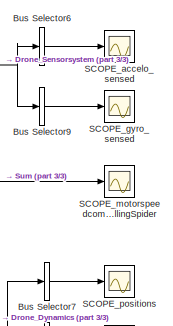
[diagram: root canvas - part 1/3, top right region]
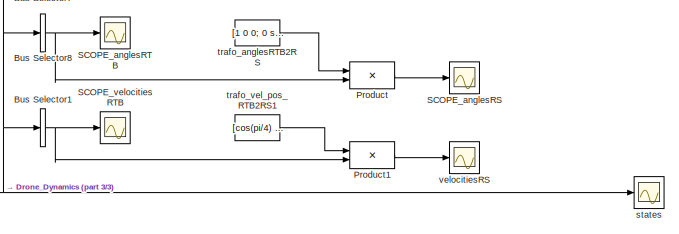
[diagram: root canvas - part 2/3, middle right region]
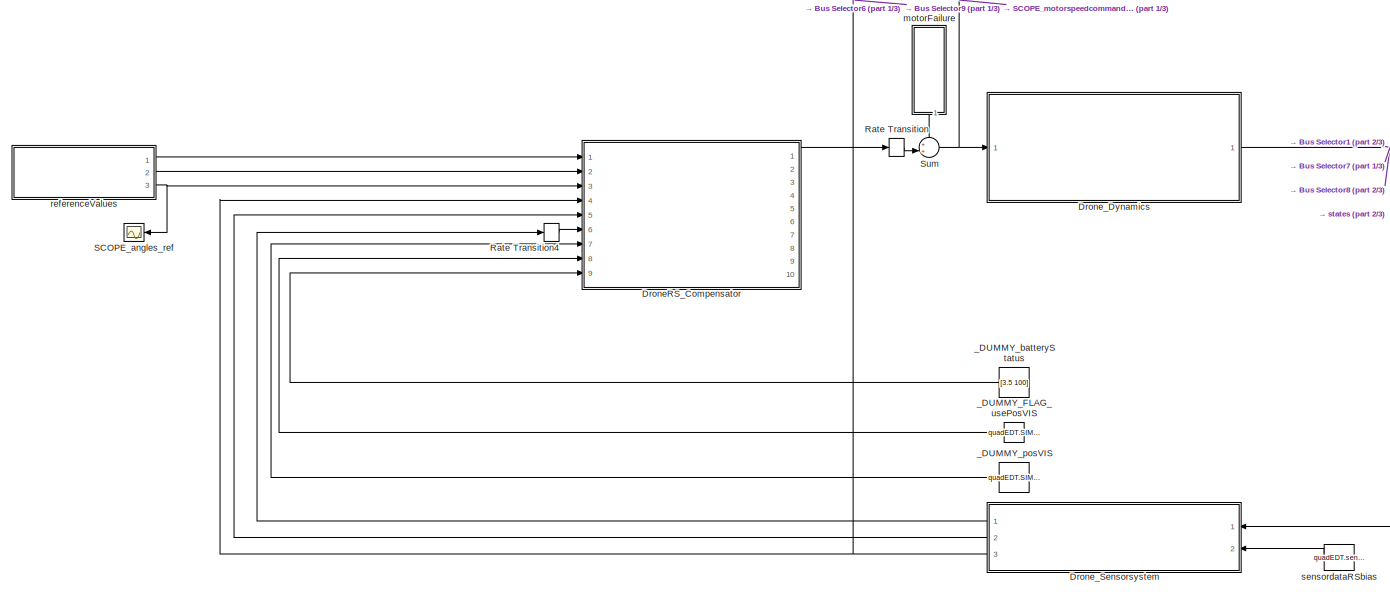
[diagram: root canvas - part 3/3, bottom left region]
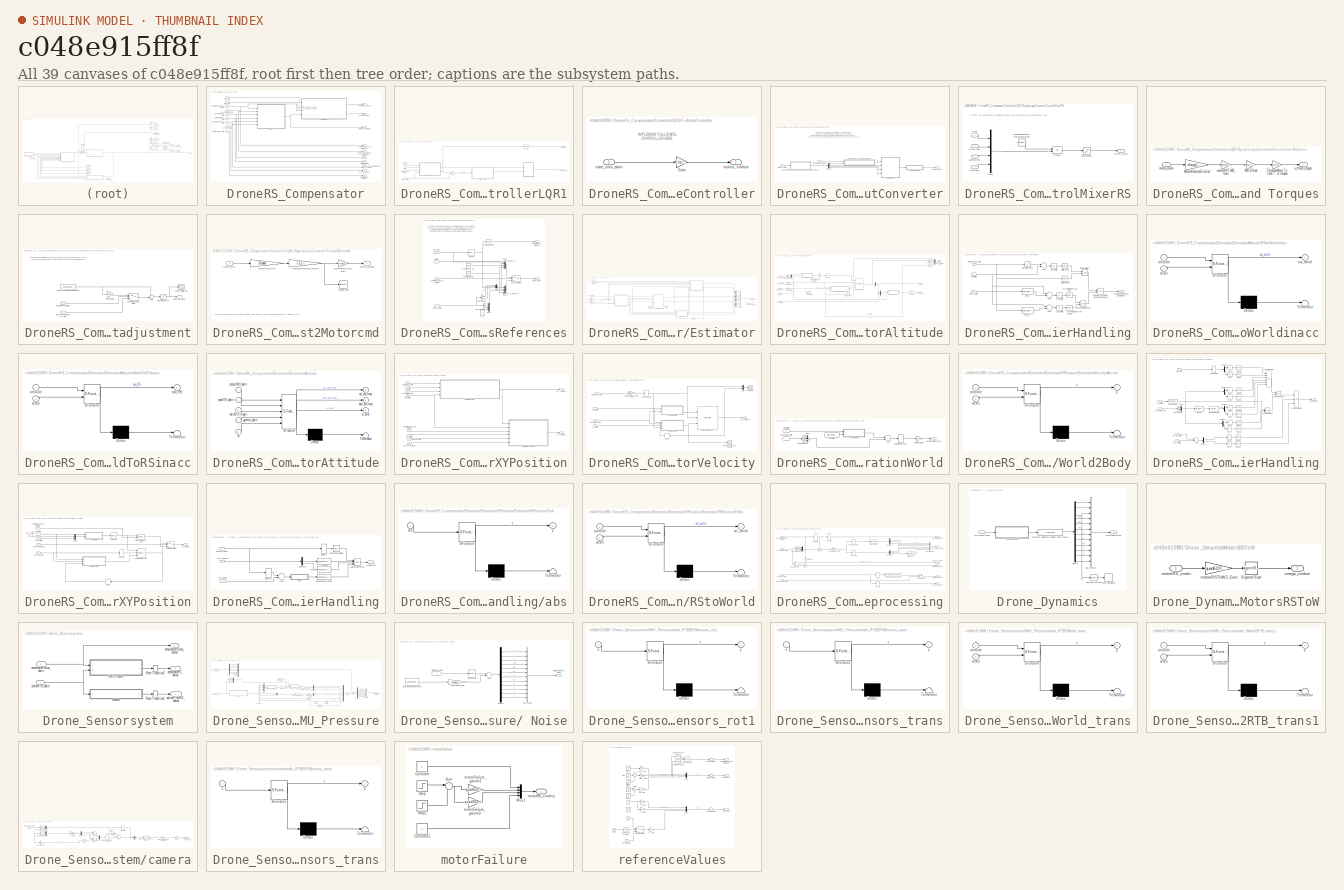
[diagram: thumbnail index - all 39 canvases of the model, root first then tree order]
MODEL slx_c048e915ff8f
KIND model
CONFIG AbsTol = auto
CONFIG FixedStep = sampleTime_qcsim
CONFIG InitFcn = % load parameters of the default quadrotor\ndisp('Quadrotor parameters loaded by InitFcn')\nparamsFilters %load mdl_quadcopter as well!\n\n% change to Simulation folder if in data folder\ncd([matlabpath '/Simulation']);
CONFIG MaxStep = 0.1
CONFIG MinStep = auto
CONFIG RelTol = 1e-3
CONFIG SampleTimeConstraint = Unconstrained
CONFIG Solver = ode3
CONFIG SolverMode = Auto
CONFIG SolverName = ode3
CONFIG StartTime = 0
CONFIG StopTime = inf
BLOCK [BusSelector] Bus Selector1
  OutputAsBus = on
  OutputSignals = dx,dy,dz
  Ports = [1, 1]
BLOCK [BusSelector] Bus Selector6
  OutputAsBus = on
  OutputSignals = ddx,ddy,ddz
  Ports = [1, 1]
BLOCK [BusSelector] Bus Selector7
  OutputAsBus = on
  OutputSignals = X,Y,Z
  Ports = [1, 1]
BLOCK [BusSelector] Bus Selector8
  OutputAsBus = on
  OutputSignals = yaw,pitch,roll
  Ports = [1, 1]
BLOCK [BusSelector] Bus Selector9
  OutputAsBus = on
  OutputSignals = p,q,r
  Ports = [1, 1]
BLOCK [SubSystem] DroneRS_Compensator
  Ports = [9, 10]
  RTWSystemCode = Reusable function
  RequestExecContextInheritance = off
  TreatAsAtomicUnit = on
BLOCK [SubSystem] DroneRS_Compensator/ControllerLQR1
  Ports = [4, 2]
  RTWSystemCode = Reusable function
  RequestExecContextInheritance = off
  TreatAsAtomicUnit = on
BLOCK [Sum] DroneRS_Compensator/ControllerLQR1/Add
  InputSameDT = off
  Inputs = +-
  OutDataTypeStr = Inherit: Inherit via internal rule
  Ports = [2, 1]
  SaturateOnIntegerOverflow = off
BLOCK [SubSystem] DroneRS_Compensator/ControllerLQR1/FullstateController
  Ports = [1, 1]
  RequestExecContextInheritance = off
BLOCK [Gain] DroneRS_Compensator/ControllerLQR1/FullstateController/Gain
  Gain = K_lqr_toMotorcmd
  Multiplication = Matrix(K*u)
  OutDataTypeStr = Inherit: Inherit via internal rule
  ParamDataTypeStr = Inherit: Inherit via internal rule
  SaturateOnIntegerOverflow = off
BLOCK [Outport] DroneRS_Compensator/ControllerLQR1/FullstateController/motors_cmdout
  IconDisplay = Port number
BLOCK [Inport] DroneRS_Compensator/ControllerLQR1/FullstateController/state_error_datin
  IconDisplay = Port number
BLOCK [Selector] DroneRS_Compensator/ControllerLQR1/Selector
  Indices = [1:6]
  InputPortWidth = 12
  Ports = [1, 1]
BLOCK [SubSystem] DroneRS_Compensator/ControllerLQR1/SysteminputConverter
  Ports = [2, 1]
  RequestExecContextInheritance = off
BLOCK [SubSystem] DroneRS_Compensator/ControllerLQR1/SysteminputConverter/ControlMixerRS
  Ports = [4, 1]
  RequestExecContextInheritance = off
BLOCK [Mux] DroneRS_Compensator/ControllerLQR1/SysteminputConverter/ControlMixerRS/Mux2
  DisplayOption = bar
  Ports = [4, 1]
BLOCK [Product] DroneRS_Compensator/ControllerLQR1/SysteminputConverter/ControlMixerRS/Product
  InputSameDT = off
  Multiplication = Matrix(*)
  OutDataTypeStr = Inherit: Inherit via internal rule
  Ports = [2, 1]
  SaturateOnIntegerOverflow = off
BLOCK [Inport] DroneRS_Compensator/ControllerLQR1/SysteminputConverter/ControlMixerRS/Qpitch_refin
  IconDisplay = Port number
  Port = 3
BLOCK [Inport] DroneRS_Compensator/ControllerLQR1/SysteminputConverter/ControlMixerRS/Qroll_refin
  IconDisplay = Port number
  Port = 4
BLOCK [Inport] DroneRS_Compensator/ControllerLQR1/SysteminputConverter/ControlMixerRS/Qyaw_refin
  IconDisplay = Port number
  Port = 2
BLOCK [Saturate] DroneRS_Compensator/ControllerLQR1/SysteminputConverter/ControlMixerRS/Saturation2
  InputPortMap = u0
  LowerLimit = -0.3235
  Ports = [1, 1]
  UpperLimit = -0.0118
BLOCK [Inport] DroneRS_Compensator/ControllerLQR1/SysteminputConverter/ControlMixerRS/T_refin
  IconDisplay = Port number
BLOCK [Constant] DroneRS_Compensator/ControllerLQR1/SysteminputConverter/ControlMixerRS/TorquetotalThrustToThrustperMotor
  Value = controlParams.Q2Ts
BLOCK [Outport] DroneRS_Compensator/ControllerLQR1/SysteminputConverter/ControlMixerRS/thrust_refout
  IconDisplay = Port number
BLOCK [SubSystem] DroneRS_Compensator/ControllerLQR1/SysteminputConverter/Conversion Motorcommands To TotalThrust and Torques
  Ports = [1, 1]
  RequestExecContextInheritance = off
BLOCK [Gain] DroneRS_Compensator/ControllerLQR1/SysteminputConverter/Conversion Motorcommands To TotalThrust and Torques/MotorsRotationDirection
  Gain = diag([-1,1,-1,1])
  Multiplication = Matrix(K*u)
  OutDataTypeStr = Inherit: Inherit via internal rule
  ParamDataTypeStr = Inherit: Inherit via internal rule
  SaturateOnIntegerOverflow = off
BLOCK [Gain] DroneRS_Compensator/ControllerLQR1/SysteminputConverter/Conversion Motorcommands To TotalThrust and Torques/ThrustperMotor To TotalThrust and Torques
  Gain = controlParams.Ts2Q
  Multiplication = Matrix(K*u)
  OutDataTypeStr = Inherit: Inherit via internal rule
  ParamDataTypeStr = Inherit: Inherit via internal rule
  SaturateOnIntegerOverflow = off
BLOCK [Gain] DroneRS_Compensator/ControllerLQR1/SysteminputConverter/Conversion Motorcommands To TotalThrust and Torques/W2ToThrust
  Gain = quad.Ct*quad.rho*quad.A*quad.r^2
  OutDataTypeStr = Inherit: Inherit via internal rule
  ParamDataTypeStr = Inherit: Inherit via internal rule
  SaturateOnIntegerOverflow = off
BLOCK [Gain] DroneRS_Compensator/ControllerLQR1/SysteminputConverter/Conversion Motorcommands To TotalThrust and Torques/motorsRSToW2_Gain
  Gain = quadEDT.motorsRSToW2_Gain
  OutDataTypeStr = Inherit: Inherit via internal rule
  ParamDataTypeStr = Inherit: Inherit via internal rule
  SaturateOnIntegerOverflow = off
BLOCK [Inport] DroneRS_Compensator/ControllerLQR1/SysteminputConverter/Conversion Motorcommands To TotalThrust and Torques/motors_cmdin
  IconDisplay = Port number
BLOCK [Outport] DroneRS_Compensator/ControllerLQR1/SysteminputConverter/Conversion Motorcommands To TotalThrust and Torques/u_tthrust_torques
  IconDisplay = Port number
BLOCK [Demux] DroneRS_Compensator/ControllerLQR1/SysteminputConverter/Demux3
  DisplayOption = bar
  Ports = [1, 4]
BLOCK [SubSystem] DroneRS_Compensator/ControllerLQR1/SysteminputConverter/Takeoffphase_Thrustadjustment
  Ports = [2, 1]
  RequestExecContextInheritance = off
BLOCK [Sum] DroneRS_Compensator/ControllerLQR1/SysteminputConverter/Takeoffphase_Thrustadjustment/Add1
  IconShape = round
  InputSameDT = off
  Inputs = ++|
  OutDataTypeStr = Inherit: Inherit via internal rule
  Ports = [2, 1]
  SaturateOnIntegerOverflow = off
BLOCK [Constant] DroneRS_Compensator/ControllerLQR1/SysteminputConverter/Takeoffphase_Thrustadjustment/HoverThrustLinearizationPoint
  Value = -quad.g*quad.M
BLOCK [Scope] DroneRS_Compensator/ControllerLQR1/SysteminputConverter/Takeoffphase_Thrustadjustment/SCOPE_totalthrust 
  Floating = off
  NumInputPorts = 1
  Ports = [1]
  ZoomMode = yonly
BLOCK [Saturate] DroneRS_Compensator/ControllerLQR1/SysteminputConverter/Takeoffphase_Thrustadjustment/SaturationThrust
  InputPortMap = u0
  LowerLimit = -(controlParams.totalThrust_maxRelative*controlParams.motorsThrust_i_UpperLimit*4)
  Ports = [1, 1]
  UpperLimit = controlParams.totalThrust_maxRelative*controlParams.motorsThrust_i_UpperLimit*4
BLOCK [Switch] DroneRS_Compensator/ControllerLQR1/SysteminputConverter/Takeoffphase_Thrustadjustment/TakeoffOrControl_Switch
  Criteria = u2 > Threshold
  InputSameDT = off
  SaturateOnIntegerOverflow = off
BLOCK [Gain] DroneRS_Compensator/ControllerLQR1/SysteminputConverter/Takeoffphase_Thrustadjustment/takeoff_Gain
  Gain = controlParams.takeoff_Gain
  OutDataTypeStr = Inherit: Inherit via internal rule
  ParamDataTypeStr = Inherit: Inherit via internal rule
  SaturateOnIntegerOverflow = off
BLOCK [Inport] DroneRS_Compensator/ControllerLQR1/SysteminputConverter/Takeoffphase_Thrustadjustment/takeoffphase_flagin
  IconDisplay = Port number
BLOCK [Outport] DroneRS_Compensator/ControllerLQR1/SysteminputConverter/Takeoffphase_Thrustadjustment/totThrust_refout
  IconDisplay = Port number
BLOCK [Inport] DroneRS_Compensator/ControllerLQR1/SysteminputConverter/Takeoffphase_Thrustadjustment/totThrustbyController_refin
  IconDisplay = Port number
  Port = 2
BLOCK [SubSystem] DroneRS_Compensator/ControllerLQR1/SysteminputConverter/Thrust2Motorcmd
  Ports = [1, 1]
  RequestExecContextInheritance = off
BLOCK [Gain] DroneRS_Compensator/ControllerLQR1/SysteminputConverter/Thrust2Motorcmd/MotorsRotationDirection
  Gain = [-1,1,-1,1]
  OutDataTypeStr = Inherit: Inherit via internal rule
  ParamDataTypeStr = Inherit: Inherit via internal rule
  SaturateOnIntegerOverflow = off
BLOCK [Sqrt] DroneRS_Compensator/ControllerLQR1/SysteminputConverter/Thrust2Motorcmd/Signed Sqrt
  Operator = signedSqrt
BLOCK [Gain] DroneRS_Compensator/ControllerLQR1/SysteminputConverter/Thrust2Motorcmd/ThrustToW2_Gain
  Gain = 1/(quad.Ct*quad.rho*quad.A*quad.r^2)
  OutDataTypeStr = Inherit: Inherit via internal rule
  ParamDataTypeStr = Inherit: Inherit via internal rule
  SaturateOnIntegerOverflow = off
BLOCK [Gain] DroneRS_Compensator/ControllerLQR1/SysteminputConverter/Thrust2Motorcmd/W2ToMotorsCmd_Gain
  Gain = 1/quadEDT.motorsRSToW2_Gain
  OutDataTypeStr = Inherit: Inherit via internal rule
  ParamDataTypeStr = Inherit: Inherit via internal rule
  SaturateOnIntegerOverflow = off
BLOCK [Outport] DroneRS_Compensator/ControllerLQR1/SysteminputConverter/Thrust2Motorcmd/motors_cmdout
  IconDisplay = Port number
BLOCK [Inport] DroneRS_Compensator/ControllerLQR1/SysteminputConverter/Thrust2Motorcmd/thrust_refin
  IconDisplay = Port number
BLOCK [Inport] DroneRS_Compensator/ControllerLQR1/SysteminputConverter/motors_cmdin
  IconDisplay = Port number
  Port = 2
BLOCK [Outport] DroneRS_Compensator/ControllerLQR1/SysteminputConverter/motors_cmdout
  IconDisplay = Port number
BLOCK [Inport] DroneRS_Compensator/ControllerLQR1/SysteminputConverter/takeoffphase_flagin
  IconDisplay = Port number
BLOCK [Inport] DroneRS_Compensator/ControllerLQR1/att_refin
  IconDisplay = Port number
  Port = 2
BLOCK [Inport] DroneRS_Compensator/ControllerLQR1/controlModePosVSAtt_flagin
  IconDisplay = Port number
  Port = 3
BLOCK [Outport] DroneRS_Compensator/ControllerLQR1/motors_cmdout
  IconDisplay = Port number
BLOCK [Inport] DroneRS_Compensator/ControllerLQR1/pos_refin
  IconDisplay = Port number
BLOCK [Outport] DroneRS_Compensator/ControllerLQR1/pose_refout
  IconDisplay = Port number
  Port = 2
BLOCK [SubSystem] DroneRS_Compensator/ControllerLQR1/statesReferences
  Ports = [4, 2]
  RequestExecContextInheritance = off
BLOCK [BusSelector] DroneRS_Compensator/ControllerLQR1/statesReferences/Bus Selector
  OutputSignals = X,Y
  Ports = [1, 2]
BLOCK [BusSelector] DroneRS_Compensator/ControllerLQR1/statesReferences/Bus Selector1
  OutputSignals = dx,dy
  Ports = [1, 2]
BLOCK [Reference] DroneRS_Compensator/ControllerLQR1/statesReferences/Compare To Zero  REF=simulink/Logic and Bit
Operations/Compare
To Zero
  OutDataTypeStr = boolean
  Ports = [1, 1]
  SourceBlock = simulink/Logic and Bit\nOperations/Compare\nTo Zero
  SourceType = Compare To Zero
  ZeroCross = on
  relop = >
BLOCK [Mux] DroneRS_Compensator/ControllerLQR1/statesReferences/Mux1
  DisplayOption = bar
  Inputs = 3
  Ports = [3, 1]
BLOCK [Mux] DroneRS_Compensator/ControllerLQR1/statesReferences/Mux3
  DisplayOption = bar
  Ports = [4, 1]
BLOCK [Mux] DroneRS_Compensator/ControllerLQR1/statesReferences/Mux4
  DisplayOption = bar
  Ports = [4, 1]
BLOCK [Mux] DroneRS_Compensator/ControllerLQR1/statesReferences/Mux5
  DisplayOption = bar
  Inputs = 3
  Ports = [3, 1]
BLOCK [Switch] DroneRS_Compensator/ControllerLQR1/statesReferences/PosVSAtt_Switch
  Criteria = u2 > Threshold
  InputSameDT = off
  SaturateOnIntegerOverflow = off
BLOCK [Selector] DroneRS_Compensator/ControllerLQR1/statesReferences/Selector
  Indices = [3]
  InputPortWidth = 3
  Ports = [1, 1]
BLOCK [Inport] DroneRS_Compensator/ControllerLQR1/statesReferences/att_refin
  IconDisplay = Port number
  Port = 2
BLOCK [Inport] DroneRS_Compensator/ControllerLQR1/statesReferences/controlModePosVSAtt_flagin
  IconDisplay = Port number
  Port = 3
BLOCK [Constant] DroneRS_Compensator/ControllerLQR1/statesReferences/dz_ref
  Value = 0
BLOCK [Inport] DroneRS_Compensator/ControllerLQR1/statesReferences/pos_refin
  IconDisplay = Port number
BLOCK [Inport] DroneRS_Compensator/ControllerLQR1/statesReferences/states_estimin
  IconDisplay = Port number
  Port = 4
BLOCK [Outport] DroneRS_Compensator/ControllerLQR1/statesReferences/states_refout
  IconDisplay = Port number
  Port = 2
BLOCK [Outport] DroneRS_Compensator/ControllerLQR1/statesReferences/takeoffphase_flagout
  IconDisplay = Port number
BLOCK [Constant] DroneRS_Compensator/ControllerLQR1/statesReferences/velocitiesPos_ref
  Value = [0;0;0]
BLOCK [Constant] DroneRS_Compensator/ControllerLQR1/statesReferences/velocitiesRot_ref
  Value = [0;0;0]
BLOCK [Inport] DroneRS_Compensator/ControllerLQR1/states_estimin
  IconDisplay = Port number
  Port = 4
BLOCK [SubSystem] DroneRS_Compensator/Estimator
  Ports = [6, 1]
  RequestExecContextInheritance = off
BLOCK [BusCreator] DroneRS_Compensator/Estimator/Bus Creator
  DisplayOption = bar
  Inputs = 'X','Y','Z','yaw','pitch','roll','dx','dy','dz','p','q','r'
  Ports = [12, 1]
BLOCK [BusSelector] DroneRS_Compensator/Estimator/Bus Selector6
  OutputAsBus = on
  OutputSignals = yaw,pitch,roll
  Ports = [1, 1]
BLOCK [Delay] DroneRS_Compensator/Estimator/Delay1
  DelayLength = 1
  InitialCondition = 0
  InputPortMap = u0
  Ports = [1, 1]
BLOCK [Demux] DroneRS_Compensator/Estimator/Demux
  DisplayOption = bar
  Outputs = 3
  Ports = [1, 3]
BLOCK [Demux] DroneRS_Compensator/Estimator/Demux1
  DisplayOption = bar
  Outputs = 3
  Ports = [1, 3]
BLOCK [Demux] DroneRS_Compensator/Estimator/Demux3
  DisplayOption = bar
  Outputs = 2
  Ports = [1, 2]
BLOCK [Demux] DroneRS_Compensator/Estimator/Demux4
  DisplayOption = bar
  Outputs = 2
  Ports = [1, 2]
BLOCK [SubSystem] DroneRS_Compensator/Estimator/EstimatorAltitude
  Ports = [5, 2]
  RequestExecContextInheritance = off
BLOCK [Bias] DroneRS_Compensator/Estimator/EstimatorAltitude/Bias
  Bias = altEstim.outlierJump_UpperLimit
  SaturateOnIntegerOverflow = off
BLOCK [Bias] DroneRS_Compensator/Estimator/EstimatorAltitude/Bias1
  Bias = -altEstim.outlierJump_UpperLimit
  SaturateOnIntegerOverflow = off
BLOCK [BusSelector] DroneRS_Compensator/Estimator/EstimatorAltitude/Bus Selector2
  OutputSignals = ddx,ddy,ddz
  Ports = [1, 3]
BLOCK [Delay] DroneRS_Compensator/Estimator/EstimatorAltitude/Delay2
  DelayLength = 1
  InitialCondition = 0
  InputPortMap = u0
  Ports = [1, 1]
BLOCK [Demux] DroneRS_Compensator/Estimator/EstimatorAltitude/Demux
  DisplayOption = bar
  Outputs = 2
  Ports = [1, 2]
BLOCK [Reference] DroneRS_Compensator/Estimator/EstimatorAltitude/KalmanFilter_altitude  REF=ctrlSharedLib/Kalman Filter
  A = [1 sampleTime_qcsim; 0 1]
  AddEnablePort = on
  AddInputPort = on
  B = [0;sampleTime_qcsim]
  C = [1 0]
  D = [0]
  ExternalReset = Level hold
  G = [0;1]
  H = 0
  InitialEstimateSource = Dialog
  ModelSource = Individual A, B, C, D matrices
  ModelSourceVariable = sys
  N = 0
  NumberOfInputs = 2
  NumberOfOutputs = 2
  NumberOfProcessNoiseInputs = 2
  NumberOfStates = 2
  OutputEstimatedY = off
  OutputP = off
  P0 = 10
  Ports = [4, 1]
  Q = 0.0005
  R = [0.1]
  SourceBlock = ctrlSharedLib/Kalman Filter
  SourceType = ctrlKalmanFilter
  TimeDomain = Discrete-Time
  TimeInvariantG = on
  TimeInvariantH = on
  TimeInvariantN = on
  TimeInvariantQ = on
  TimeInvariantR = on
  Ts = -1
  UseCurrentEstimator = on
  UseGH = on
  UseK = off
  X0 = [-0.046 0]
BLOCK [Mux] DroneRS_Compensator/Estimator/EstimatorAltitude/Mux
  DisplayOption = bar
  Inputs = 2
  Ports = [2, 1]
BLOCK [Mux] DroneRS_Compensator/Estimator/EstimatorAltitude/Mux1
  DisplayOption = bar
  Ports = [4, 1]
BLOCK [Mux] DroneRS_Compensator/Estimator/EstimatorAltitude/Mux2
  DisplayOption = bar
  Inputs = 3
  Ports = [3, 1]
BLOCK [SubSystem] DroneRS_Compensator/Estimator/EstimatorAltitude/OutlierHandling
  Ports = [3, 1]
  RequestExecContextInheritance = off
BLOCK [Abs] DroneRS_Compensator/Estimator/EstimatorAltitude/OutlierHandling/Absestdiff
  SaturateOnIntegerOverflow = off
BLOCK [Abs] DroneRS_Compensator/Estimator/EstimatorAltitude/OutlierHandling/Absestdiff1
  SaturateOnIntegerOverflow = off
BLOCK [Abs] DroneRS_Compensator/Estimator/EstimatorAltitude/OutlierHandling/Absestdiff2
  SaturateOnIntegerOverflow = off
BLOCK [Sum] DroneRS_Compensator/Estimator/EstimatorAltitude/OutlierHandling/Add
  InputSameDT = off
  Inputs = -+
  OutDataTypeStr = Inherit: Inherit via internal rule
  Ports = [2, 1]
  SaturateOnIntegerOverflow = off
BLOCK [Sum] DroneRS_Compensator/Estimator/EstimatorAltitude/OutlierHandling/Add1
  InputSameDT = off
  Inputs = -+
  OutDataTypeStr = Inherit: Inherit via internal rule
  Ports = [2, 1]
  SaturateOnIntegerOverflow = off
BLOCK [Sum] DroneRS_Compensator/Estimator/EstimatorAltitude/OutlierHandling/Add2
  InputSameDT = off
  Inputs = -+
  OutDataTypeStr = Inherit: Inherit via internal rule
  Ports = [2, 1]
  SaturateOnIntegerOverflow = off
BLOCK [DiscreteFilter] DroneRS_Compensator/Estimator/EstimatorAltitude/OutlierHandling/IIRprs
  Denominator = altEstim.filter_a_prs
  InputPortMap = u0
  Numerator = altEstim.filter_b_prs
  Ports = [1, 1]
BLOCK [DiscreteFilter] DroneRS_Compensator/Estimator/EstimatorAltitude/OutlierHandling/IIRsonar
  Denominator = altEstim.filter_a_prs
  InputPortMap = u0
  Numerator = altEstim.filter_b_prs
  Ports = [1, 1]
BLOCK [Saturate] DroneRS_Compensator/Estimator/EstimatorAltitude/OutlierHandling/SaturationSonar
  InputPortMap = u0
  LowerLimit = -inf
  Ports = [1, 1]
  UpperLimit = -quadEDT.altSenor_LowerLimit
BLOCK [Inport] DroneRS_Compensator/Estimator/EstimatorAltitude/OutlierHandling/Z_estimin
  IconDisplay = Port number
  Port = 3
BLOCK [Inport] DroneRS_Compensator/Estimator/EstimatorAltitude/OutlierHandling/altPrs_datin
  IconDisplay = Port number
  Port = 2
BLOCK [Inport] DroneRS_Compensator/Estimator/EstimatorAltitude/OutlierHandling/altSonarneg_datin
  IconDisplay = Port number
BLOCK [Reference] DroneRS_Compensator/Estimator/EstimatorAltitude/OutlierHandling/currentStateVeryOffprs  REF=simulink/Logic and Bit
Operations/Compare
To Constant
  OutDataTypeStr = boolean
  Ports = [1, 1]
  SourceBlock = simulink/Logic and Bit\nOperations/Compare\nTo Constant
  SourceType = Compare To Constant
  ZeroCross = on
  const = altEstim.stateDeviationPrs_Threshold
  relop = >=
BLOCK [Reference] DroneRS_Compensator/Estimator/EstimatorAltitude/OutlierHandling/currentStateVeryOffsonarflt  REF=simulink/Logic and Bit
Operations/Compare
To Constant
  OutDataTypeStr = boolean
  Ports = [1, 1]
  SourceBlock = simulink/Logic and Bit\nOperations/Compare\nTo Constant
  SourceType = Compare To Constant
  ZeroCross = on
  const = altEstim.stateDeviationSonflt_Threshold
  relop = >=
BLOCK [Outport] DroneRS_Compensator/Estimator/EstimatorAltitude/OutlierHandling/enableKFmeasupdate_flagout
  IconDisplay = Port number
BLOCK [Logic] DroneRS_Compensator/Estimator/EstimatorAltitude/OutlierHandling/findingoutliers
  AllPortsSameDT = off
  OutDataTypeStr = boolean
  Ports = [2, 1]
BLOCK [Logic] DroneRS_Compensator/Estimator/EstimatorAltitude/OutlierHandling/newupdateneeded
  AllPortsSameDT = off
  OutDataTypeStr = boolean
  Ports = [2, 1]
BLOCK [Logic] DroneRS_Compensator/Estimator/EstimatorAltitude/OutlierHandling/nicemeasurementor newupdateneeded
  AllPortsSameDT = off
  Operator = OR
  OutDataTypeStr = boolean
  Ports = [2, 1]
BLOCK [Reference] DroneRS_Compensator/Estimator/EstimatorAltitude/OutlierHandling/outlierDist_min  REF=simulink/Logic and Bit
Operations/Compare
To Constant
  OutDataTypeStr = boolean
  Ports = [1, 1]
  SourceBlock = simulink/Logic and Bit\nOperations/Compare\nTo Constant
  SourceType = Compare To Constant
  ZeroCross = on
  const = -quadEDT.altSenor_LowerLimit
  relop = <
BLOCK [Reference] DroneRS_Compensator/Estimator/EstimatorAltitude/OutlierHandling/outlierJump  REF=simulink/Logic and Bit
Operations/Compare
To Constant
  OutDataTypeStr = boolean
  Ports = [1, 1]
  SourceBlock = simulink/Logic and Bit\nOperations/Compare\nTo Constant
  SourceType = Compare To Constant
  ZeroCross = on
  const = altEstim.outlierJump_UpperLimit
  relop = <=
BLOCK [SubSystem] DroneRS_Compensator/Estimator/EstimatorAltitude/RStoWorldinacc
  ErrorFcn = Stateflow.Translate.translate
  PermitHierarchicalResolution = ExplicitOnly
  Ports = [2, 1]
  RequestExecContextInheritance = off
  SFBlockType = MATLAB Function
  TreatAsAtomicUnit = on
BLOCK [Demux] DroneRS_Compensator/Estimator/EstimatorAltitude/RStoWorldinacc/ Demux 
  Outputs = 1
  Ports = [1, 1]
BLOCK [S-Function] DroneRS_Compensator/Estimator/EstimatorAltitude/RStoWorldinacc/ SFunction 
  EnableBusSupport = on
  FunctionName = sf_sfun
  PortCounts = [2 2]
  Ports = [2, 2]
  Tag = Stateflow S-Function sim_quadrotor 16
BLOCK [Terminator] DroneRS_Compensator/Estimator/EstimatorAltitude/RStoWorldinacc/ Terminator 
BLOCK [Outport] DroneRS_Compensator/Estimator/EstimatorAltitude/RStoWorldinacc/acc_world
  IconDisplay = Port number
BLOCK [Inport] DroneRS_Compensator/Estimator/EstimatorAltitude/RStoWorldinacc/attitude
  IconDisplay = Port number
BLOCK [Inport] DroneRS_Compensator/Estimator/EstimatorAltitude/RStoWorldinacc/vector
  IconDisplay = Port number
  Port = 2
BLOCK [Scope] DroneRS_Compensator/Estimator/EstimatorAltitude/SCOPE_altPrs
  Floating = off
  NumInputPorts = 1
  Ports = [1]
  SaveName = ScopeData9
  TimeRange = 10
  YMax = 0.4000000000000001
  YMin = -1
  ZoomMode = yonly
BLOCK [Scope] DroneRS_Compensator/Estimator/EstimatorAltitude/SCOPE_kalmanaltestim
  Floating = off
  NumInputPorts = 1
  Ports = [1]
  SaveName = ScopeData25
  TimeRange = 13
  YMax = 1
  ZoomMode = yonly
BLOCK [Selector] DroneRS_Compensator/Estimator/EstimatorAltitude/Selector4
  Indices = [3]
  InputPortWidth = 3
  Ports = [1, 1]
BLOCK [Selector] DroneRS_Compensator/Estimator/EstimatorAltitude/Selector5
  Indices = [3]
  InputPortWidth = 3
  Ports = [1, 1]
BLOCK [Sum] DroneRS_Compensator/Estimator/EstimatorAltitude/Sum
  IconShape = round
  InputSameDT = off
  Inputs = |++
  OutDataTypeStr = Inherit: Inherit via internal rule
  Ports = [2, 1]
  SaturateOnIntegerOverflow = off
BLOCK [SubSystem] DroneRS_Compensator/Estimator/EstimatorAltitude/WorldToRSinacc
  ErrorFcn = Stateflow.Translate.translate
  PermitHierarchicalResolution = ExplicitOnly
  Ports = [2, 1]
  RequestExecContextInheritance = off
  SFBlockType = MATLAB Function
  TreatAsAtomicUnit = on
BLOCK [Demux] DroneRS_Compensator/Estimator/EstimatorAltitude/WorldToRSinacc/ Demux 
  Outputs = 1
  Ports = [1, 1]
BLOCK [S-Function] DroneRS_Compensator/Estimator/EstimatorAltitude/WorldToRSinacc/ SFunction 
  EnableBusSupport = on
  FunctionName = sf_sfun
  PortCounts = [2 2]
  Ports = [2, 2]
  Tag = Stateflow S-Function sim_quadrotor 17
BLOCK [Terminator] DroneRS_Compensator/Estimator/EstimatorAltitude/WorldToRSinacc/ Terminator 
BLOCK [Outport] DroneRS_Compensator/Estimator/EstimatorAltitude/WorldToRSinacc/acc_RS
  IconDisplay = Port number
BLOCK [Inport] DroneRS_Compensator/Estimator/EstimatorAltitude/WorldToRSinacc/attitude
  IconDisplay = Port number
BLOCK [Inport] DroneRS_Compensator/Estimator/EstimatorAltitude/WorldToRSinacc/vector
  IconDisplay = Port number
  Port = 2
BLOCK [Outport] DroneRS_Compensator/Estimator/EstimatorAltitude/Z_estimout
  IconDisplay = Port number
  Port = 2
BLOCK [Inport] DroneRS_Compensator/Estimator/EstimatorAltitude/altSonar_datin
  IconDisplay = Port number
  Port = 3
BLOCK [Inport] DroneRS_Compensator/Estimator/EstimatorAltitude/att_estimin
  IconDisplay = Port number
BLOCK [Inport] DroneRS_Compensator/Estimator/EstimatorAltitude/dxy_estimtin
  IconDisplay = Port number
  Port = 5
BLOCK [Outport] DroneRS_Compensator/Estimator/EstimatorAltitude/dz_estimout
  IconDisplay = Port number
BLOCK [Constant] DroneRS_Compensator/Estimator/EstimatorAltitude/gravity
  Value = [0 0 quad.g]
BLOCK [Gain] DroneRS_Compensator/Estimator/EstimatorAltitude/invertzaxisGain
  Gain = -1
  OutDataTypeStr = Inherit: Inherit via internal rule
  ParamDataTypeStr = Inherit: Inherit via internal rule
  SaturateOnIntegerOverflow = off
BLOCK [Reference] DroneRS_Compensator/Estimator/EstimatorAltitude/outlierBelowFloor  REF=simulink/Logic and Bit
Operations/Compare
To Constant
  OutDataTypeStr = boolean
  Ports = [1, 1]
  SourceBlock = simulink/Logic and Bit\nOperations/Compare\nTo Constant
  SourceType = Compare To Constant
  ZeroCross = on
  const = 0
  relop = >
BLOCK [Inport] DroneRS_Compensator/Estimator/EstimatorAltitude/prsDelta_datin
  IconDisplay = Port number
  Port = 4
BLOCK [Gain] DroneRS_Compensator/Estimator/EstimatorAltitude/prsToAlt_Gain
  Gain = 1/quadEDT.altToPrs_Gain
  OutDataTypeStr = Inherit: Inherit via internal rule
  ParamDataTypeStr = Inherit: Inherit via internal rule
  SaturateOnIntegerOverflow = off
BLOCK [Inport] DroneRS_Compensator/Estimator/EstimatorAltitude/sensorIMU_datin
  IconDisplay = Port number
  Port = 2
BLOCK [SubSystem] DroneRS_Compensator/Estimator/EstimatorAttitude
  ErrorFcn = Stateflow.Translate.translate
  PermitHierarchicalResolution = ExplicitOnly
  Ports = [5, 3]
  RequestExecContextInheritance = off
  SFBlockType = MATLAB Function
  TreatAsAtomicUnit = on
BLOCK [Demux] DroneRS_Compensator/Estimator/EstimatorAttitude/ Demux 
  Outputs = 1
  Ports = [1, 1]
BLOCK [S-Function] DroneRS_Compensator/Estimator/EstimatorAttitude/ SFunction 
  EnableBusSupport = on
  FunctionName = sf_sfun
  PortCounts = [5 4]
  Ports = [5, 4]
  Tag = Stateflow S-Function sim_quadrotor 19
BLOCK [Terminator] DroneRS_Compensator/Estimator/EstimatorAttitude/ Terminator 
BLOCK [Outport] DroneRS_Compensator/Estimator/EstimatorAttitude/att_estimout
  IconDisplay = Port number
BLOCK [Outport] DroneRS_Compensator/Estimator/EstimatorAttitude/datt_estimout
  IconDisplay = Port number
  Port = 2
BLOCK [Inport] DroneRS_Compensator/Estimator/EstimatorAttitude/dt
  IconDisplay = Port number
  Port = 5
BLOCK [Inport] DroneRS_Compensator/Estimator/EstimatorAttitude/gvecInit_datin
  IconDisplay = Port number
  Port = 4
BLOCK [Inport] DroneRS_Compensator/Estimator/EstimatorAttitude/sensorIMU_datin
  IconDisplay = Port number
BLOCK [Inport] DroneRS_Compensator/Estimator/EstimatorAttitude/validVIS_flagin
  IconDisplay = Port number
  Port = 3
BLOCK [Outport] DroneRS_Compensator/Estimator/EstimatorAttitude/w_euler
  IconDisplay = Port number
  Port = 3
BLOCK [Inport] DroneRS_Compensator/Estimator/EstimatorAttitude/yawVIS_datin
  IconDisplay = Port number
  Port = 2
BLOCK [SubSystem] DroneRS_Compensator/Estimator/EstimatorXYPosition
  Ports = [8, 2]
  RequestExecContextInheritance = off
BLOCK [SubSystem] DroneRS_Compensator/Estimator/EstimatorXYPosition/EstimatorVelocity
  Ports = [4, 1]
  RequestExecContextInheritance = off
BLOCK [SubSystem] DroneRS_Compensator/Estimator/EstimatorXYPosition/EstimatorVelocity/AccelerationWorld
  Ports = [2, 1]
  RequestExecContextInheritance = off
BLOCK [Sum] DroneRS_Compensator/Estimator/EstimatorXYPosition/EstimatorVelocity/AccelerationWorld/Add
  InputSameDT = off
  Inputs = -+
  OutDataTypeStr = Inherit: Inherit via internal rule
  Ports = [2, 1]
  SaturateOnIntegerOverflow = off
BLOCK [BusSelector] DroneRS_Compensator/Estimator/EstimatorXYPosition/EstimatorVelocity/AccelerationWorld/Bus Selector1
  OutputSignals = ddx,ddy,ddz
  Ports = [1, 3]
BLOCK [Mux] DroneRS_Compensator/Estimator/EstimatorXYPosition/EstimatorVelocity/AccelerationWorld/Mux6
  DisplayOption = bar
  Inputs = 3
  Ports = [3, 1]
BLOCK [Selector] DroneRS_Compensator/Estimator/EstimatorXYPosition/EstimatorVelocity/AccelerationWorld/SelectPlanarddxy
  Indices = [1 2]
  InputPortWidth = 3
  Ports = [1, 1]
BLOCK [SubSystem] DroneRS_Compensator/Estimator/EstimatorXYPosition/EstimatorVelocity/AccelerationWorld/World2Body
  ErrorFcn = Stateflow.Translate.translate
  PermitHierarchicalResolution = ExplicitOnly
  Ports = [2, 1]
  RequestExecContextInheritance = off
  SFBlockType = MATLAB Function
  TreatAsAtomicUnit = on
BLOCK [Demux] DroneRS_Compensator/Estimator/EstimatorXYPosition/EstimatorVelocity/AccelerationWorld/World2Body/ Demux 
  Outputs = 1
  Ports = [1, 1]
BLOCK [S-Function] DroneRS_Compensator/Estimator/EstimatorXYPosition/EstimatorVelocity/AccelerationWorld/World2Body/ SFunction 
  EnableBusSupport = on
  FunctionName = sf_sfun
  PortCounts = [2 2]
  Ports = [2, 2]
  Tag = Stateflow S-Function sim_quadrotor 8
BLOCK [Terminator] DroneRS_Compensator/Estimator/EstimatorXYPosition/EstimatorVelocity/AccelerationWorld/World2Body/ Terminator 
BLOCK [Inport] DroneRS_Compensator/Estimator/EstimatorXYPosition/EstimatorVelocity/AccelerationWorld/World2Body/attitude
  IconDisplay = Port number
BLOCK [Inport] DroneRS_Compensator/Estimator/EstimatorXYPosition/EstimatorVelocity/AccelerationWorld/World2Body/vector
  IconDisplay = Port number
  Port = 2
BLOCK [Outport] DroneRS_Compensator/Estimator/EstimatorXYPosition/EstimatorVelocity/AccelerationWorld/World2Body/y
  IconDisplay = Port number
BLOCK [Outport] DroneRS_Compensator/Estimator/EstimatorXYPosition/EstimatorVelocity/AccelerationWorld/accelerationWorld
  IconDisplay = Port number
BLOCK [Inport] DroneRS_Compensator/Estimator/EstimatorXYPosition/EstimatorVelocity/AccelerationWorld/att_estimin
  IconDisplay = Port number
BLOCK [Gain] DroneRS_Compensator/Estimator/EstimatorXYPosition/EstimatorVelocity/AccelerationWorld/gainaccinput
  Gain = 0.2
  OutDataTypeStr = Inherit: Inherit via internal rule
  ParamDataTypeStr = Inherit: Inherit via internal rule
  SaturateOnIntegerOverflow = off
BLOCK [Constant] DroneRS_Compensator/Estimator/EstimatorXYPosition/EstimatorVelocity/AccelerationWorld/gravity
  Value = [0 0 -quad.g]
BLOCK [Inport] DroneRS_Compensator/Estimator/EstimatorXYPosition/EstimatorVelocity/AccelerationWorld/sensorIMU_datin
  IconDisplay = Port number
  Port = 2
BLOCK [Delay] DroneRS_Compensator/Estimator/EstimatorXYPosition/EstimatorVelocity/Delay
  DelayLength = 1
  InitialCondition = 0
  InputPortMap = u0
  Ports = [1, 1]
BLOCK [Reference] DroneRS_Compensator/Estimator/EstimatorXYPosition/EstimatorVelocity/KalmanFilter_dxdy  REF=ctrlSharedLib/Kalman Filter
  A = eye(2)
  AddEnablePort = on
  AddInputPort = on
  B = sampleTime_qcsim*eye(2)
  C = eye(2)
  D = 0
  ExternalReset = None
  G = eye(2)
  H = 0
  InitialEstimateSource = Dialog
  ModelSource = Individual A, B, C, D matrices
  ModelSourceVariable = ss(0.95,1,1,0,1)
  N = 0
  NumberOfInputs = 1
  NumberOfOutputs = 1
  NumberOfProcessNoiseInputs = 1
  NumberOfStates = 1
  OutputEstimatedY = off
  OutputP = off
  P0 = 10
  Ports = [3, 1]
  Q = 0.09.*eye(2)
  R = 5*eye(2)
  SourceBlock = ctrlSharedLib/Kalman Filter
  SourceType = ctrlKalmanFilter
  TimeDomain = Discrete-Time
  TimeInvariantG = on
  TimeInvariantH = on
  TimeInvariantN = on
  TimeInvariantQ = on
  TimeInvariantR = on
  Ts = -1
  UseCurrentEstimator = on
  UseGH = on
  UseK = off
  X0 = 0
BLOCK [Mux] DroneRS_Compensator/Estimator/EstimatorXYPosition/EstimatorVelocity/Mux
  DisplayOption = bar
  Inputs = 2
  Ports = [2, 1]
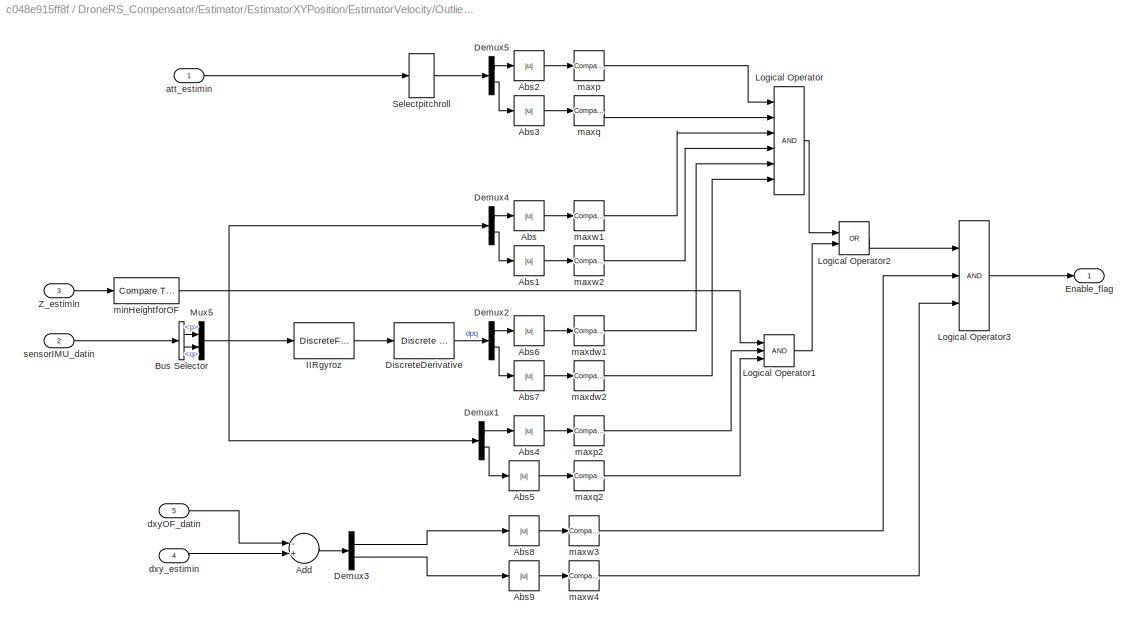
BLOCK [SubSystem] DroneRS_Compensator/Estimator/EstimatorXYPosition/EstimatorVelocity/OutlierHandling
  Ports = [5, 1]
  RequestExecContextInheritance = off
BLOCK [Abs] DroneRS_Compensator/Estimator/EstimatorXYPosition/EstimatorVelocity/OutlierHandling/Abs
  SaturateOnIntegerOverflow = off
BLOCK [Abs] DroneRS_Compensator/Estimator/EstimatorXYPosition/EstimatorVelocity/OutlierHandling/Abs1
  SaturateOnIntegerOverflow = off
BLOCK [Abs] DroneRS_Compensator/Estimator/EstimatorXYPosition/EstimatorVelocity/OutlierHandling/Abs2
  SaturateOnIntegerOverflow = off
BLOCK [Abs] DroneRS_Compensator/Estimator/EstimatorXYPosition/EstimatorVelocity/OutlierHandling/Abs3
  SaturateOnIntegerOverflow = off
BLOCK [Abs] DroneRS_Compensator/Estimator/EstimatorXYPosition/EstimatorVelocity/OutlierHandling/Abs4
  SaturateOnIntegerOverflow = off
BLOCK [Abs] DroneRS_Compensator/Estimator/EstimatorXYPosition/EstimatorVelocity/OutlierHandling/Abs5
  SaturateOnIntegerOverflow = off
BLOCK [Abs] DroneRS_Compensator/Estimator/EstimatorXYPosition/EstimatorVelocity/OutlierHandling/Abs6
  SaturateOnIntegerOverflow = off
BLOCK [Abs] DroneRS_Compensator/Estimator/EstimatorXYPosition/EstimatorVelocity/OutlierHandling/Abs7
  SaturateOnIntegerOverflow = off
BLOCK [Abs] DroneRS_Compensator/Estimator/EstimatorXYPosition/EstimatorVelocity/OutlierHandling/Abs8
  SaturateOnIntegerOverflow = off
BLOCK [Abs] DroneRS_Compensator/Estimator/EstimatorXYPosition/EstimatorVelocity/OutlierHandling/Abs9
  SaturateOnIntegerOverflow = off
BLOCK [Sum] DroneRS_Compensator/Estimator/EstimatorXYPosition/EstimatorVelocity/OutlierHandling/Add
  InputSameDT = off
  Inputs = -+
  OutDataTypeStr = Inherit: Inherit via internal rule
  Ports = [2, 1]
  SaturateOnIntegerOverflow = off
BLOCK [BusSelector] DroneRS_Compensator/Estimator/EstimatorXYPosition/EstimatorVelocity/OutlierHandling/Bus Selector
  OutputSignals = p,q
  Ports = [1, 2]
BLOCK [Demux] DroneRS_Compensator/Estimator/EstimatorXYPosition/EstimatorVelocity/OutlierHandling/Demux1
  DisplayOption = bar
  Outputs = 2
  Ports = [1, 2]
BLOCK [Demux] DroneRS_Compensator/Estimator/EstimatorXYPosition/EstimatorVelocity/OutlierHandling/Demux2
  DisplayOption = bar
  Outputs = 2
  Ports = [1, 2]
BLOCK [Demux] DroneRS_Compensator/Estimator/EstimatorXYPosition/EstimatorVelocity/OutlierHandling/Demux3
  DisplayOption = bar
  Outputs = 2
  Ports = [1, 2]
BLOCK [Demux] DroneRS_Compensator/Estimator/EstimatorXYPosition/EstimatorVelocity/OutlierHandling/Demux4
  DisplayOption = bar
  Outputs = 2
  Ports = [1, 2]
BLOCK [Demux] DroneRS_Compensator/Estimator/EstimatorXYPosition/EstimatorVelocity/OutlierHandling/Demux5
  DisplayOption = bar
  Outputs = 2
  Ports = [1, 2]
BLOCK [Reference] DroneRS_Compensator/Estimator/EstimatorXYPosition/EstimatorVelocity/OutlierHandling/DiscreteDerivative  REF=simulink/Discrete/Discrete Derivative
  DoSatur = off
  ICPrevScaledInput = 0.0
  InputProcessing = Inherited
  LockScale = off
  OutDataType = fixdt(1, 16)
  OutDataTypeStr = Inherit: Inherit via internal rule
  OutMax = []
  OutMin = []
  OutScaling = 2^-10
  OutputDataTypeScalingMode = Inherit via internal rule
  Ports = [1, 1]
  RndMeth = Floor
  SourceBlock = simulink/Discrete/Discrete Derivative
  SourceType = Discrete Derivative
  gainval = 1.0
BLOCK [Outport] DroneRS_Compensator/Estimator/EstimatorXYPosition/EstimatorVelocity/OutlierHandling/Enable_flag
  IconDisplay = Port number
BLOCK [DiscreteFilter] DroneRS_Compensator/Estimator/EstimatorXYPosition/EstimatorVelocity/OutlierHandling/IIRgyroz
  Denominator = altEstim.filter_a_gyroz
  InputPortMap = u0
  Numerator = altEstim.filter_b_gyroz
  Ports = [1, 1]
BLOCK [Logic] DroneRS_Compensator/Estimator/EstimatorXYPosition/EstimatorVelocity/OutlierHandling/Logical Operator
  AllPortsSameDT = off
  Inputs = 6
  OutDataTypeStr = boolean
  Ports = [6, 1]
BLOCK [Logic] DroneRS_Compensator/Estimator/EstimatorXYPosition/EstimatorVelocity/OutlierHandling/Logical Operator1
  AllPortsSameDT = off
  Inputs = 3
  OutDataTypeStr = boolean
  Ports = [3, 1]
BLOCK [Logic] DroneRS_Compensator/Estimator/EstimatorXYPosition/EstimatorVelocity/OutlierHandling/Logical Operator2
  AllPortsSameDT = off
  Operator = OR
  OutDataTypeStr = boolean
  Ports = [2, 1]
BLOCK [Logic] DroneRS_Compensator/Estimator/EstimatorXYPosition/EstimatorVelocity/OutlierHandling/Logical Operator3
  AllPortsSameDT = off
  Inputs = 3
  OutDataTypeStr = boolean
  Ports = [3, 1]
BLOCK [Mux] DroneRS_Compensator/Estimator/EstimatorXYPosition/EstimatorVelocity/OutlierHandling/Mux5
  DisplayOption = bar
  Inputs = 2
  Ports = [2, 1]
BLOCK [Selector] DroneRS_Compensator/Estimator/EstimatorXYPosition/EstimatorVelocity/OutlierHandling/Selectpitchroll
  Indices = [2 3]
  InputPortWidth = 3
  Ports = [1, 1]
BLOCK [Inport] DroneRS_Compensator/Estimator/EstimatorXYPosition/EstimatorVelocity/OutlierHandling/Z_estimin
  IconDisplay = Port number
  Port = 3
BLOCK [Inport] DroneRS_Compensator/Estimator/EstimatorXYPosition/EstimatorVelocity/OutlierHandling/att_estimin
  IconDisplay = Port number
BLOCK [Inport] DroneRS_Compensator/Estimator/EstimatorXYPosition/EstimatorVelocity/OutlierHandling/dxyOF_datin
  IconDisplay = Port number
  Port = 5
BLOCK [Inport] DroneRS_Compensator/Estimator/EstimatorXYPosition/EstimatorVelocity/OutlierHandling/dxy_estimin
  IconDisplay = Port number
  Port = 4
BLOCK [Reference] DroneRS_Compensator/Estimator/EstimatorXYPosition/EstimatorVelocity/OutlierHandling/maxdw1  REF=simulink/Logic and Bit
Operations/Compare
To Constant
  OutDataTypeStr = boolean
  Ports = [1, 1]
  SourceBlock = simulink/Logic and Bit\nOperations/Compare\nTo Constant
  SourceType = Compare To Constant
  ZeroCross = on
  const = ofhandle.dpq_UpperLimit
  relop = <=
BLOCK [Reference] DroneRS_Compensator/Estimator/EstimatorXYPosition/EstimatorVelocity/OutlierHandling/maxdw2  REF=simulink/Logic and Bit
Operations/Compare
To Constant
  OutDataTypeStr = boolean
  Ports = [1, 1]
  SourceBlock = simulink/Logic and Bit\nOperations/Compare\nTo Constant
  SourceType = Compare To Constant
  ZeroCross = on
  const = ofhandle.dpq_UpperLimit
  relop = <=
BLOCK [Reference] DroneRS_Compensator/Estimator/EstimatorXYPosition/EstimatorVelocity/OutlierHandling/maxp  REF=simulink/Logic and Bit
Operations/Compare
To Constant
  OutDataTypeStr = boolean
  Ports = [1, 1]
  SourceBlock = simulink/Logic and Bit\nOperations/Compare\nTo Constant
  SourceType = Compare To Constant
  ZeroCross = on
  const = ofhandle.pitchroll_UpperLimit
  relop = <=
BLOCK [Reference] DroneRS_Compensator/Estimator/EstimatorXYPosition/EstimatorVelocity/OutlierHandling/maxp2  REF=simulink/Logic and Bit
Operations/Compare
To Constant
  OutDataTypeStr = boolean
  Ports = [1, 1]
  SourceBlock = simulink/Logic and Bit\nOperations/Compare\nTo Constant
  SourceType = Compare To Constant
  ZeroCross = on
  const = ofhandle.pq_UpperLimit_hov
  relop = <=
BLOCK [Reference] DroneRS_Compensator/Estimator/EstimatorXYPosition/EstimatorVelocity/OutlierHandling/maxq  REF=simulink/Logic and Bit
Operations/Compare
To Constant
  OutDataTypeStr = boolean
  Ports = [1, 1]
  SourceBlock = simulink/Logic and Bit\nOperations/Compare\nTo Constant
  SourceType = Compare To Constant
  ZeroCross = on
  const = ofhandle.pitchroll_UpperLimit
  relop = <=
BLOCK [Reference] DroneRS_Compensator/Estimator/EstimatorXYPosition/EstimatorVelocity/OutlierHandling/maxq2  REF=simulink/Logic and Bit
Operations/Compare
To Constant
  OutDataTypeStr = boolean
  Ports = [1, 1]
  SourceBlock = simulink/Logic and Bit\nOperations/Compare\nTo Constant
  SourceType = Compare To Constant
  ZeroCross = on
  const = ofhandle.pq_UpperLimit_hov
  relop = <=
BLOCK [Reference] DroneRS_Compensator/Estimator/EstimatorXYPosition/EstimatorVelocity/OutlierHandling/maxw1  REF=simulink/Logic and Bit
Operations/Compare
To Constant
  OutDataTypeStr = boolean
  Ports = [1, 1]
  SourceBlock = simulink/Logic and Bit\nOperations/Compare\nTo Constant
  SourceType = Compare To Constant
  ZeroCross = on
  const = ofhandle.pq_UpperLimit
  relop = <=
BLOCK [Reference] DroneRS_Compensator/Estimator/EstimatorXYPosition/EstimatorVelocity/OutlierHandling/maxw2  REF=simulink/Logic and Bit
Operations/Compare
To Constant
  OutDataTypeStr = boolean
  Ports = [1, 1]
  SourceBlock = simulink/Logic and Bit\nOperations/Compare\nTo Constant
  SourceType = Compare To Constant
  ZeroCross = on
  const = ofhandle.pq_UpperLimit
  relop = <=
BLOCK [Reference] DroneRS_Compensator/Estimator/EstimatorXYPosition/EstimatorVelocity/OutlierHandling/maxw3  REF=simulink/Logic and Bit
Operations/Compare
To Constant
  OutDataTypeStr = boolean
  Ports = [1, 1]
  SourceBlock = simulink/Logic and Bit\nOperations/Compare\nTo Constant
  SourceType = Compare To Constant
  ZeroCross = on
  const = ofhandle.deltadxy_UpperLimit
  relop = <=
BLOCK [Reference] DroneRS_Compensator/Estimator/EstimatorXYPosition/EstimatorVelocity/OutlierHandling/maxw4  REF=simulink/Logic and Bit
Operations/Compare
To Constant
  OutDataTypeStr = boolean
  Ports = [1, 1]
  SourceBlock = simulink/Logic and Bit\nOperations/Compare\nTo Constant
  SourceType = Compare To Constant
  ZeroCross = on
  const = ofhandle.deltadxy_UpperLimit
  relop = <=
BLOCK [Reference] DroneRS_Compensator/Estimator/EstimatorXYPosition/EstimatorVelocity/OutlierHandling/minHeightforOF  REF=simulink/Logic and Bit
Operations/Compare
To Constant
  OutDataTypeStr = boolean
  Ports = [1, 1]
  SourceBlock = simulink/Logic and Bit\nOperations/Compare\nTo Constant
  SourceType = Compare To Constant
  ZeroCross = on
  const = ofhandle.Z_UpperLimit
  relop = <=
BLOCK [Inport] DroneRS_Compensator/Estimator/EstimatorXYPosition/EstimatorVelocity/OutlierHandling/sensorIMU_datin
  IconDisplay = Port number
  Port = 2
BLOCK [Scope] DroneRS_Compensator/Estimator/EstimatorXYPosition/EstimatorVelocity/SCOPEdxy
  Floating = off
  NumInputPorts = 1
  Ports = [1]
  TimeRange = 2.5
  YMax = 6
  YMin = -12
  ZoomMode = yonly
BLOCK [Scope] DroneRS_Compensator/Estimator/EstimatorXYPosition/EstimatorVelocity/SCOPEenableKFdxupdate
  Floating = off
  NumInputPorts = 1
  Ports = [1]
  SaveName = ScopeData1
  TimeRange = 2.2
  YMax = 1
  YMin = 0
  ZoomMode = xonly
BLOCK [Selector] DroneRS_Compensator/Estimator/EstimatorXYPosition/EstimatorVelocity/SelectplanarOF
  Indices = [1 2]
  InputPortWidth = 3
  Ports = [1, 1]
BLOCK [Inport] DroneRS_Compensator/Estimator/EstimatorXYPosition/EstimatorVelocity/Z_estimin
  IconDisplay = Port number
  Port = 2
BLOCK [Inport] DroneRS_Compensator/Estimator/EstimatorXYPosition/EstimatorVelocity/att_estimin
  IconDisplay = Port number
  Port = 4
BLOCK [Outport] DroneRS_Compensator/Estimator/EstimatorXYPosition/EstimatorVelocity/dxy_estimout
  IconDisplay = Port number
BLOCK [Gain] DroneRS_Compensator/Estimator/EstimatorXYPosition/EstimatorVelocity/opticalFlowToVelocity_Gain
  Gain = 1/quadEDT.VelocityToOpticalFlow_Gain
  OutDataTypeStr = Inherit: Inherit via internal rule
  ParamDataTypeStr = Inherit: Inherit via internal rule
  SaturateOnIntegerOverflow = off
BLOCK [Inport] DroneRS_Compensator/Estimator/EstimatorXYPosition/EstimatorVelocity/opticalFlow_datin
  IconDisplay = Port number
BLOCK [Inport] DroneRS_Compensator/Estimator/EstimatorXYPosition/EstimatorVelocity/sensorIMU_datin
  IconDisplay = Port number
  Port = 3
BLOCK [SubSystem] DroneRS_Compensator/Estimator/EstimatorXYPosition/EstimatorXYPosition
  Ports = [6, 1]
  RequestExecContextInheritance = off
BLOCK [Delay] DroneRS_Compensator/Estimator/EstimatorXYPosition/EstimatorXYPosition/Delay
  DelayLength = 1
  InitialCondition = 0
  InputPortMap = u0
  Ports = [1, 1]
BLOCK [Reference] DroneRS_Compensator/Estimator/EstimatorXYPosition/EstimatorXYPosition/KalmanFilter_posxy  REF=ctrlSharedLib/Kalman Filter
  A = eye(2)
  AddEnablePort = on
  AddInputPort = on
  B = sampleTime_qcsim*eye(2)
  C = eye(2)
  D = 0
  ExternalReset = None
  G = 0.1*eye(2)
  H = 0
  InitialEstimateSource = Dialog
  ModelSource = Individual A, B, C, D matrices
  ModelSourceVariable = ss(0.95,1,1,0,1)
  N = 0
  NumberOfInputs = 1
  NumberOfOutputs = 1
  NumberOfProcessNoiseInputs = 1
  NumberOfStates = 1
  OutputEstimatedY = off
  OutputP = off
  P0 = 10
  Ports = [3, 1]
  Q = 0.001*eye(2)
  R = 0.3*eye(2)
  SourceBlock = ctrlSharedLib/Kalman Filter
  SourceType = ctrlKalmanFilter
  TimeDomain = Discrete-Time
  TimeInvariantG = on
  TimeInvariantH = on
  TimeInvariantN = on
  TimeInvariantQ = on
  TimeInvariantR = on
  Ts = -1
  UseCurrentEstimator = on
  UseGH = on
  UseK = off
  X0 = [.1 0.0]
BLOCK [Mux] DroneRS_Compensator/Estimator/EstimatorXYPosition/EstimatorXYPosition/Mux2
  DisplayOption = bar
  Inputs = 2
  Ports = [2, 1]
BLOCK [SubSystem] DroneRS_Compensator/Estimator/EstimatorXYPosition/EstimatorXYPosition/OutlierHandling
  Ports = [3, 1]
  RequestExecContextInheritance = off
BLOCK [Sum] DroneRS_Compensator/Estimator/EstimatorXYPosition/EstimatorXYPosition/OutlierHandling/Add1
  InputSameDT = off
  Inputs = +-
  OutDataTypeStr = Inherit: Inherit via internal rule
  Ports = [2, 1]
  SaturateOnIntegerOverflow = off
BLOCK [Demux] DroneRS_Compensator/Estimator/EstimatorXYPosition/EstimatorXYPosition/OutlierHandling/Demux6
  DisplayOption = bar
  Outputs = 3
  Ports = [1, 3]
BLOCK [Logic] DroneRS_Compensator/Estimator/EstimatorXYPosition/EstimatorXYPosition/OutlierHandling/Logical Operator3
  AllPortsSameDT = off
  Inputs = 4
  OutDataTypeStr = boolean
  Ports = [4, 1]
BLOCK [Selector] DroneRS_Compensator/Estimator/EstimatorXYPosition/EstimatorXYPosition/OutlierHandling/SelectX
  Indices = [1]
  InputPortWidth = 4
  Ports = [1, 1]
BLOCK [Selector] DroneRS_Compensator/Estimator/EstimatorXYPosition/EstimatorXYPosition/OutlierHandling/SelectXY
  Indices = [1 2]
  InputPortWidth = 4
  Ports = [1, 1]
BLOCK [SubSystem] DroneRS_Compensator/Estimator/EstimatorXYPosition/EstimatorXYPosition/OutlierHandling/abs
  ErrorFcn = Stateflow.Translate.translate
  PermitHierarchicalResolution = ExplicitOnly
  Ports = [1, 1]
  RequestExecContextInheritance = off
  SFBlockType = MATLAB Function
  TreatAsAtomicUnit = on
BLOCK [Demux] DroneRS_Compensator/Estimator/EstimatorXYPosition/EstimatorXYPosition/OutlierHandling/abs/ Demux 
  Outputs = 1
  Ports = [1, 1]
BLOCK [S-Function] DroneRS_Compensator/Estimator/EstimatorXYPosition/EstimatorXYPosition/OutlierHandling/abs/ SFunction 
  EnableBusSupport = on
  FunctionName = sf_sfun
  PortCounts = [1 2]
  Ports = [1, 2]
  Tag = Stateflow S-Function sim_quadrotor 20
BLOCK [Terminator] DroneRS_Compensator/Estimator/EstimatorXYPosition/EstimatorXYPosition/OutlierHandling/abs/ Terminator 
BLOCK [Inport] DroneRS_Compensator/Estimator/EstimatorXYPosition/EstimatorXYPosition/OutlierHandling/abs/vec
  IconDisplay = Port number
BLOCK [Outport] DroneRS_Compensator/Estimator/EstimatorXYPosition/EstimatorXYPosition/OutlierHandling/abs/y
  IconDisplay = Port number
BLOCK [Inport] DroneRS_Compensator/Estimator/EstimatorXYPosition/EstimatorXYPosition/OutlierHandling/att_estimin
  IconDisplay = Port number
BLOCK [Reference] DroneRS_Compensator/Estimator/EstimatorXYPosition/EstimatorXYPosition/OutlierHandling/checkPosavailable  REF=simulink/Logic and Bit
Operations/Compare
To Constant
  OutDataTypeStr = boolean
  Ports = [1, 1]
  SourceBlock = simulink/Logic and Bit\nOperations/Compare\nTo Constant
  SourceType = Compare To Constant
  ZeroCross = on
  const = -99
  relop = ~=
BLOCK [Outport] DroneRS_Compensator/Estimator/EstimatorXYPosition/EstimatorXYPosition/OutlierHandling/enable_flag
  IconDisplay = Port number
BLOCK [Reference] DroneRS_Compensator/Estimator/EstimatorXYPosition/EstimatorXYPosition/OutlierHandling/maxp3  REF=simulink/Logic and Bit
Operations/Compare
To Constant
  OutDataTypeStr = boolean
  Ports = [1, 1]
  SourceBlock = simulink/Logic and Bit\nOperations/Compare\nTo Constant
  SourceType = Compare To Constant
  ZeroCross = on
  const = vishandle.att_UpperLimit
  relop = <=
BLOCK [Reference] DroneRS_Compensator/Estimator/EstimatorXYPosition/EstimatorXYPosition/OutlierHandling/maxq3  REF=simulink/Logic and Bit
Operations/Compare
To Constant
  OutDataTypeStr = boolean
  Ports = [1, 1]
  SourceBlock = simulink/Logic and Bit\nOperations/Compare\nTo Constant
  SourceType = Compare To Constant
  ZeroCross = on
  const = vishandle.att_UpperLimit
  relop = <=
BLOCK [Reference] DroneRS_Compensator/Estimator/EstimatorXYPosition/EstimatorXYPosition/OutlierHandling/planarjumpsVISPOS  REF=simulink/Logic and Bit
Operations/Compare
To Constant
  OutDataTypeStr = boolean
  Ports = [1, 1]
  SourceBlock = simulink/Logic and Bit\nOperations/Compare\nTo Constant
  SourceType = Compare To Constant
  ZeroCross = on
  const = vishandle.deltaXY
  relop = <
BLOCK [Inport] DroneRS_Compensator/Estimator/EstimatorXYPosition/EstimatorXYPosition/OutlierHandling/posVIS_datin
  IconDisplay = Port number
  Port = 2
BLOCK [Inport] DroneRS_Compensator/Estimator/EstimatorXYPosition/EstimatorXYPosition/OutlierHandling/pos_estim
  IconDisplay = Port number
  Port = 3
BLOCK [SubSystem] DroneRS_Compensator/Estimator/EstimatorXYPosition/EstimatorXYPosition/RStoWorld
  ErrorFcn = Stateflow.Translate.translate
  PermitHierarchicalResolution = ExplicitOnly
  Ports = [2, 1]
  RequestExecContextInheritance = off
  SFBlockType = MATLAB Function
  TreatAsAtomicUnit = on
BLOCK [Demux] DroneRS_Compensator/Estimator/EstimatorXYPosition/EstimatorXYPosition/RStoWorld/ Demux 
  Outputs = 1
  Ports = [1, 1]
BLOCK [S-Function] DroneRS_Compensator/Estimator/EstimatorXYPosition/EstimatorXYPosition/RStoWorld/ SFunction 
  EnableBusSupport = on
  FunctionName = sf_sfun
  PortCounts = [2 2]
  Ports = [2, 2]
  Tag = Stateflow S-Function sim_quadrotor 13
BLOCK [Terminator] DroneRS_Compensator/Estimator/EstimatorXYPosition/EstimatorXYPosition/RStoWorld/ Terminator 
BLOCK [Inport] DroneRS_Compensator/Estimator/EstimatorXYPosition/EstimatorXYPosition/RStoWorld/attitude
  IconDisplay = Port number
BLOCK [Inport] DroneRS_Compensator/Estimator/EstimatorXYPosition/EstimatorXYPosition/RStoWorld/vector
  IconDisplay = Port number
  Port = 2
BLOCK [Outport] DroneRS_Compensator/Estimator/EstimatorXYPosition/EstimatorXYPosition/RStoWorld/vel_world
  IconDisplay = Port number
BLOCK [Selector] DroneRS_Compensator/Estimator/EstimatorXYPosition/EstimatorXYPosition/SelectXY
  Indices = [1 2]
  InputPortWidth = 4
  Ports = [1, 1]
BLOCK [Selector] DroneRS_Compensator/Estimator/EstimatorXYPosition/EstimatorXYPosition/SelectdXY
  Indices = [1 2]
  InputPortWidth = 3
  Ports = [1, 1]
BLOCK [DiscreteIntegrator] DroneRS_Compensator/Estimator/EstimatorXYPosition/EstimatorXYPosition/SimplyIntegrateVelocity
  ExternalReset = rising
  InitialConditionSetting = State (most efficient)
  LimitOutput = on
  LowerSaturationLimit = -2
  Ports = [2, 1]
  SampleTime = sampleTime_qcsim
  UpperSaturationLimit = 2
BLOCK [Switch] DroneRS_Compensator/Estimator/EstimatorXYPosition/EstimatorXYPosition/UseIPPosSwitch
  Criteria = u2 > Threshold
  InputSameDT = off
  SaturateOnIntegerOverflow = off
BLOCK [Outport] DroneRS_Compensator/Estimator/EstimatorXYPosition/EstimatorXYPosition/XY_estimout
  IconDisplay = Port number
BLOCK [Inport] DroneRS_Compensator/Estimator/EstimatorXYPosition/EstimatorXYPosition/att_estimin
  IconDisplay = Port number
  Port = 2
BLOCK [Inport] DroneRS_Compensator/Estimator/EstimatorXYPosition/EstimatorXYPosition/controlModePosVSAtt_flagin
  IconDisplay = Port number
  Port = 3
BLOCK [Inport] DroneRS_Compensator/Estimator/EstimatorXYPosition/EstimatorXYPosition/dxy_estimin
  IconDisplay = Port number
BLOCK [Inport] DroneRS_Compensator/Estimator/EstimatorXYPosition/EstimatorXYPosition/dz_estimin
  IconDisplay = Port number
  Port = 4
BLOCK [Inport] DroneRS_Compensator/Estimator/EstimatorXYPosition/EstimatorXYPosition/posVIS_datin
  IconDisplay = Port number
  Port = 5
BLOCK [Inport] DroneRS_Compensator/Estimator/EstimatorXYPosition/EstimatorXYPosition/usePosVIS_flagin
  IconDisplay = Port number
  Port = 6
BLOCK [Outport] DroneRS_Compensator/Estimator/EstimatorXYPosition/XY_estimout
  IconDisplay = Port number
BLOCK [Inport] DroneRS_Compensator/Estimator/EstimatorXYPosition/Z_estimin
  IconDisplay = Port number
  Port = 7
BLOCK [Inport] DroneRS_Compensator/Estimator/EstimatorXYPosition/att_estimin
  IconDisplay = Port number
  Port = 6
BLOCK [Inport] DroneRS_Compensator/Estimator/EstimatorXYPosition/controlModePosVSAtt_flagin
  IconDisplay = Port number
  Port = 2
BLOCK [Outport] DroneRS_Compensator/Estimator/EstimatorXYPosition/dxy_estimout
  IconDisplay = Port number
  Port = 2
BLOCK [Inport] DroneRS_Compensator/Estimator/EstimatorXYPosition/dz_estimin
  IconDisplay = Port number
  Port = 8
BLOCK [Inport] DroneRS_Compensator/Estimator/EstimatorXYPosition/opticalFlow_datin
  IconDisplay = Port number
BLOCK [Inport] DroneRS_Compensator/Estimator/EstimatorXYPosition/posVIS_datin
  IconDisplay = Port number
  Port = 3
BLOCK [Inport] DroneRS_Compensator/Estimator/EstimatorXYPosition/sensorIMU_datin
  IconDisplay = Port number
  Port = 5
BLOCK [Inport] DroneRS_Compensator/Estimator/EstimatorXYPosition/usePosVIS_flagin
  IconDisplay = Port number
  Port = 4
BLOCK [Scope] DroneRS_Compensator/Estimator/SCOPE_anglesRSestim
  DataFormat = StructureWithTime
  Floating = off
  NumInputPorts = 1
  Ports = [1]
  SampleTime = 0
  SaveName = ScopeData4
  TimeRange = 3.57
  YMax = 0.06000000000000001
  YMin = -0.08
  ZoomMode = xonly
BLOCK [SubSystem] DroneRS_Compensator/Estimator/SensorPreprocessing
  Ports = [4, 6]
  RequestExecContextInheritance = off
BLOCK [BusCreator] DroneRS_Compensator/Estimator/SensorPreprocessing/Bus Creator3
  DisplayOption = bar
  Inputs = 6
  Ports = [6, 1]
BLOCK [BusSelector] DroneRS_Compensator/Estimator/SensorPreprocessing/Bus Selector
  OutputSignals = ddx,ddy,ddz,p,q,r
  Ports = [1, 6]
BLOCK [BusSelector] DroneRS_Compensator/Estimator/SensorPreprocessing/Bus Selector1
  OutputSignals = altitude_sonar,prs
  Ports = [1, 2]
BLOCK [Reference] DroneRS_Compensator/Estimator/SensorPreprocessing/Compare To Constant  REF=simulink/Logic and Bit
Operations/Compare
To Constant
  OutDataTypeStr = boolean
  Ports = [1, 1]
  SourceBlock = simulink/Logic and Bit\nOperations/Compare\nTo Constant
  SourceType = Compare To Constant
  ZeroCross = on
  const = controlParams.NO_VIS_X
  relop = ~=
BLOCK [Demux] DroneRS_Compensator/Estimator/SensorPreprocessing/Demux1
  DisplayOption = bar
  Outputs = 3
  Ports = [1, 3]
BLOCK [Demux] DroneRS_Compensator/Estimator/SensorPreprocessing/Demux2
  DisplayOption = bar
  Outputs = 3
  Ports = [1, 3]
BLOCK [DiscreteFir] DroneRS_Compensator/Estimator/SensorPreprocessing/FIRaccelero
  Coefficients = controlParams.filter_accelero.Coefficients
  Ports = [1, 1]
  SampleTime = sampleTime_qcsim
BLOCK [DiscreteFilter] DroneRS_Compensator/Estimator/SensorPreprocessing/IIRgyroz
  Denominator = altEstim.filter_a_gyroz
  InputPortMap = u0
  Numerator = altEstim.filter_b_gyroz
  Ports = [1, 1]
BLOCK [Logic] DroneRS_Compensator/Estimator/SensorPreprocessing/Logical Operator
  AllPortsSameDT = off
  OutDataTypeStr = boolean
  Ports = [2, 1]
BLOCK [Mux] DroneRS_Compensator/Estimator/SensorPreprocessing/Mux1
  DisplayOption = bar
  Inputs = 6
  Ports = [6, 1]
BLOCK [Selector] DroneRS_Compensator/Estimator/SensorPreprocessing/Select_pq
  Indices = [4 5 6]
  InputPortWidth = 6
  Ports = [1, 1]
BLOCK [Selector] DroneRS_Compensator/Estimator/SensorPreprocessing/Selectaccelero
  Indices = [1 2 3]
  InputPortWidth = 6
  Ports = [1, 1]
BLOCK [Selector] DroneRS_Compensator/Estimator/SensorPreprocessing/Selector1
  Indices = [1:3]
  InputPortWidth = 6
  Ports = [1, 1]
BLOCK [Selector] DroneRS_Compensator/Estimator/SensorPreprocessing/Selector2
  Indices = [1:6]
  InputPortWidth = 7
  Ports = [1, 1]
BLOCK [Selector] DroneRS_Compensator/Estimator/SensorPreprocessing/Selector4
  Indices = [7]
  InputPortWidth = 7
  Ports = [1, 1]
BLOCK [Sum] DroneRS_Compensator/Estimator/SensorPreprocessing/Sum1
  IconShape = round
  InputSameDT = off
  Inputs = -+|
  OutDataTypeStr = Inherit: Inherit via internal rule
  Ports = [2, 1]
  SaturateOnIntegerOverflow = off
BLOCK [Sum] DroneRS_Compensator/Estimator/SensorPreprocessing/Sum2
  IconShape = round
  InputSameDT = off
  Inputs = -+|
  OutDataTypeStr = Inherit: Inherit via internal rule
  Ports = [2, 1]
  SaturateOnIntegerOverflow = off
BLOCK [Selector] DroneRS_Compensator/Estimator/SensorPreprocessing/XVIS
  InputPortWidth = 4
  Ports = [1, 1]
BLOCK [Outport] DroneRS_Compensator/Estimator/SensorPreprocessing/altSonar_datout
  IconDisplay = Port number
  Port = 5
BLOCK [Outport] DroneRS_Compensator/Estimator/SensorPreprocessing/gvecInit_datout
  IconDisplay = Port number
  Port = 4
BLOCK [Gain] DroneRS_Compensator/Estimator/SensorPreprocessing/inversesIMU_Gain
  Gain = quadEDT.inversesIMU_Gain
  OutDataTypeStr = Inherit: Inherit via internal rule
  ParamDataTypeStr = Inherit: Inherit via internal rule
  SaturateOnIntegerOverflow = off
BLOCK [Inport] DroneRS_Compensator/Estimator/SensorPreprocessing/posVIS_datin
  IconDisplay = Port number
BLOCK [Outport] DroneRS_Compensator/Estimator/SensorPreprocessing/prsDelta_datout
  IconDisplay = Port number
  Port = 6
BLOCK [Outport] DroneRS_Compensator/Estimator/SensorPreprocessing/sensorIMU_datout
  IconDisplay = Port number
BLOCK [Inport] DroneRS_Compensator/Estimator/SensorPreprocessing/sensordata_datin
  IconDisplay = Port number
  Port = 3
BLOCK [Inport] DroneRS_Compensator/Estimator/SensorPreprocessing/sensordatabias_datin
  IconDisplay = Port number
  Port = 2
BLOCK [Inport] DroneRS_Compensator/Estimator/SensorPreprocessing/usePosVIS_flagin
  IconDisplay = Port number
  Port = 4
BLOCK [Outport] DroneRS_Compensator/Estimator/SensorPreprocessing/validVIS_flagout
  IconDisplay = Port number
  Port = 3
BLOCK [Selector] DroneRS_Compensator/Estimator/SensorPreprocessing/yawVIS
  Indices = 4
  InputPortWidth = 4
  Ports = [1, 1]
BLOCK [Outport] DroneRS_Compensator/Estimator/SensorPreprocessing/yawVis_datout
  IconDisplay = Port number
  Port = 2
BLOCK [Inport] DroneRS_Compensator/Estimator/controlModePosVSAtt_flagin
  IconDisplay = Port number
BLOCK [Scope] DroneRS_Compensator/Estimator/eulerrates
  Floating = off
  NumInputPorts = 1
  Ports = [1]
  SaveName = ScopeData18
BLOCK [Inport] DroneRS_Compensator/Estimator/opticalFlow_datin
  IconDisplay = Port number
  Port = 4
BLOCK [Inport] DroneRS_Compensator/Estimator/posVIS_datin
  IconDisplay = Port number
  Port = 6
BLOCK [Constant] DroneRS_Compensator/Estimator/sampleTime
  Value = sampleTime_qcsim
BLOCK [Inport] DroneRS_Compensator/Estimator/sensordata_datin
  IconDisplay = Port number
  Port = 3
BLOCK [Inport] DroneRS_Compensator/Estimator/sensordatabias_datin
  IconDisplay = Port number
  Port = 5
BLOCK [Outport] DroneRS_Compensator/Estimator/states_estimout
  IconDisplay = Port number
BLOCK [Inport] DroneRS_Compensator/Estimator/usePosVIS_flagin
  IconDisplay = Port number
  Port = 2
BLOCK [Inport] DroneRS_Compensator/attRS_refin
  IconDisplay = Port number
  Port = 3
BLOCK [Inport] DroneRS_Compensator/batteryStatus_datin
  IconDisplay = Port number
  Port = 9
BLOCK [Outport] DroneRS_Compensator/batteryStatus_datout
  IconDisplay = Port number
  Port = 10
BLOCK [Inport] DroneRS_Compensator/controlModePosVSAtt_flagin
  IconDisplay = Port number
BLOCK [Outport] DroneRS_Compensator/controlModePosVSAtt_flagout
  IconDisplay = Port number
  Port = 3
BLOCK [Outport] DroneRS_Compensator/motorsRS_cmdout
  IconDisplay = Port number
BLOCK [Inport] DroneRS_Compensator/opticalFlowRS_datin
  IconDisplay = Port number
  Port = 5
BLOCK [Outport] DroneRS_Compensator/opticalFlowRS_datout
  IconDisplay = Port number
  Port = 6
BLOCK [Inport] DroneRS_Compensator/posVIS_datin
  IconDisplay = Port number
  Port = 7
BLOCK [Outport] DroneRS_Compensator/posVIS_datout
  IconDisplay = Port number
  Port = 8
BLOCK [Inport] DroneRS_Compensator/pos_refin
  IconDisplay = Port number
  Port = 2
BLOCK [Outport] DroneRS_Compensator/poseRS_refout
  IconDisplay = Port number
  Port = 4
BLOCK [Inport] DroneRS_Compensator/sensordataRS_datin
  IconDisplay = Port number
  Port = 4
BLOCK [Outport] DroneRS_Compensator/sensordataRS_datout
  IconDisplay = Port number
  Port = 5
BLOCK [Inport] DroneRS_Compensator/sensordatabiasRS_datin
  IconDisplay = Port number
  Port = 6
BLOCK [Outport] DroneRS_Compensator/sensordatabiasRS_datout
  IconDisplay = Port number
  Port = 7
BLOCK [Outport] DroneRS_Compensator/statesRS_estimout
  IconDisplay = Port number
  Port = 2
BLOCK [Inport] DroneRS_Compensator/usePosVIS_flagin
  IconDisplay = Port number
  Port = 8
BLOCK [Outport] DroneRS_Compensator/usePosVIS_flagout
  IconDisplay = Port number
  Port = 9
BLOCK [SubSystem] Drone_Dynamics
  AncestorBlock = roblocks/Dynamics/Quadrotor
  Ports = [1, 1]
  RequestExecContextInheritance = off
BLOCK [BusCreator] Drone_Dynamics/Bus Creator
  DisplayOption = bar
  Inputs = 'X','Y','Z','yaw','pitch','roll','dx','dy','dz','p','q','r'
  Ports = [12, 1]
BLOCK [Reference] Drone_Dynamics/Compare To Zero  REF=simulink/Logic and Bit
Operations/Compare
To Zero
  OutDataTypeStr = boolean
  Ports = [1, 1]
  SourceBlock = simulink/Logic and Bit\nOperations/Compare\nTo Zero
  SourceType = Compare To Zero
  ZeroCross = on
  relop = >
BLOCK [Demux] Drone_Dynamics/Demux
  Outputs = 12
  Ports = [1, 12]
BLOCK [S-Function] Drone_Dynamics/Dynamics (Robotics Toolbox Peter Corke)
  FunctionName = quadrotor_dynamics
  Parameters = quad
  Ports = [1, 1]
BLOCK [SubSystem] Drone_Dynamics/MotorsRSToW
  Ports = [1, 1]
  RequestExecContextInheritance = off
BLOCK [Sqrt] Drone_Dynamics/MotorsRSToW/Signed Sqrt
  Operator = signedSqrt
BLOCK [Gain] Drone_Dynamics/MotorsRSToW/motorsRSToW2_Gain
  Gain = quadEDT.motorsRSToW2_Gain
  OutDataTypeStr = Inherit: Inherit via internal rule
  ParamDataTypeStr = Inherit: Inherit via internal rule
  SaturateOnIntegerOverflow = off
BLOCK [Inport] Drone_Dynamics/MotorsRSToW/motorsRS_cmdin
  IconDisplay = Port number
BLOCK [Outport] Drone_Dynamics/MotorsRSToW/omega_cmdout
  IconDisplay = Port number
BLOCK [Stop] Drone_Dynamics/Stop Simulation
BLOCK [Inport] Drone_Dynamics/motorsRS_cmdin
  IconDisplay = Port number
BLOCK [Outport] Drone_Dynamics/statesRTB_datout
  IconDisplay = Port number
BLOCK [SubSystem] Drone_Sensorsystem
  Ports = [2, 3]
  RequestExecContextInheritance = off
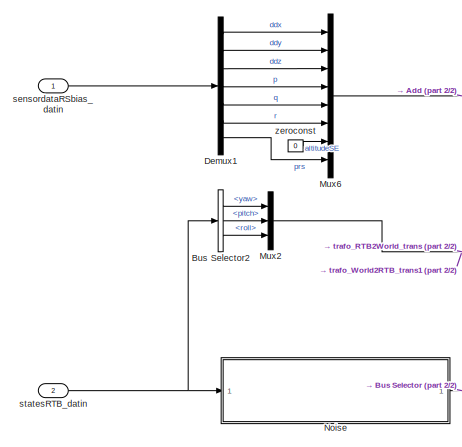
[diagram: Drone_Sensorsystem/IMU_Pressure - part 1/2, middle left region]
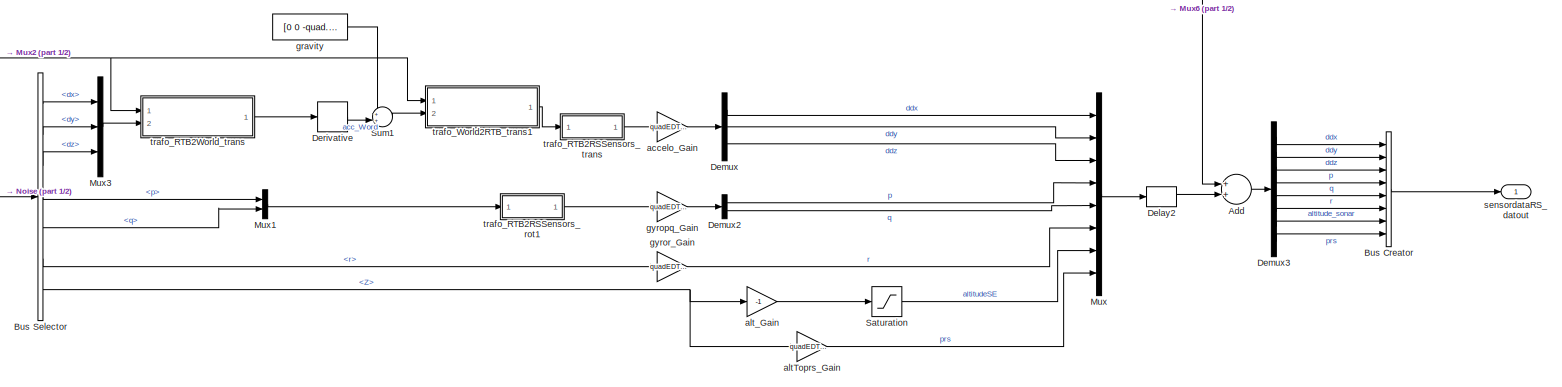
[diagram: Drone_Sensorsystem/IMU_Pressure - part 2/2, full width, bottom band]
BLOCK [SubSystem] Drone_Sensorsystem/IMU_Pressure
  Ports = [2, 1]
  RequestExecContextInheritance = off
BLOCK [SubSystem] Drone_Sensorsystem/IMU_Pressure/ Noise
  Ports = [1, 1]
  RequestExecContextInheritance = off
BLOCK [Sum] Drone_Sensorsystem/IMU_Pressure/ Noise/Add
  InputSameDT = off
  OutDataTypeStr = Inherit: Inherit via internal rule
  Ports = [2, 1]
  SaturateOnIntegerOverflow = off
BLOCK [BusCreator] Drone_Sensorsystem/IMU_Pressure/ Noise/Bus Creator
  DisplayOption = bar
  Inputs = 'X','Y','Z','yaw','pitch','roll','dx','dy','dz','p','q','r'
  Ports = [12, 1]
BLOCK [BusToVector] Drone_Sensorsystem/IMU_Pressure/ Noise/Bus to Vector
BLOCK [Demux] Drone_Sensorsystem/IMU_Pressure/ Noise/Demux1
  DisplayOption = bar
  Outputs = 12
  Ports = [1, 12]
BLOCK [Reference] Drone_Sensorsystem/IMU_Pressure/ Noise/Gaussian Noise Generator  REF=commnoisgen2/Gaussian Noise
Generator
  Ports = [0, 1]
  SourceBlock = commnoisgen2/Gaussian Noise\nGenerator
  SourceType = Gaussian Noise Generator
  Ts = sampleTime_qcsim
  d = quadEDT.noiseStatesSensed_std.^2
  frameBased = off
  m = 0
  orient = off
  outDataType = double
  s = 41
  sampPerFrame = 1
BLOCK [Gain] Drone_Sensorsystem/IMU_Pressure/ Noise/noiseWeights_Gain
  Gain = quadEDT.noiseStatesSensed_weights
  OutDataTypeStr = Inherit: Inherit via internal rule
  ParamDataTypeStr = Inherit: Inherit via internal rule
  SaturateOnIntegerOverflow = off
BLOCK [Inport] Drone_Sensorsystem/IMU_Pressure/ Noise/statesRTB_datin
  IconDisplay = Port number
BLOCK [Outport] Drone_Sensorsystem/IMU_Pressure/ Noise/statesRTBnoisy_datout
  IconDisplay = Port number
BLOCK [Sum] Drone_Sensorsystem/IMU_Pressure/Add
  InputSameDT = off
  OutDataTypeStr = Inherit: Inherit via internal rule
  Ports = [2, 1]
  SaturateOnIntegerOverflow = off
BLOCK [BusCreator] Drone_Sensorsystem/IMU_Pressure/Bus Creator
  DisplayOption = bar
  Inputs = 8
  Ports = [8, 1]
BLOCK [BusSelector] Drone_Sensorsystem/IMU_Pressure/Bus Selector
  OutputSignals = dx,dy,dz,p,q,r,Z
  Ports = [1, 7]
BLOCK [BusSelector] Drone_Sensorsystem/IMU_Pressure/Bus Selector2
  OutputSignals = yaw,pitch,roll
  Ports = [1, 3]
BLOCK [Delay] Drone_Sensorsystem/IMU_Pressure/Delay2
  DelayLength = 1
  InitialCondition = 0
  InputPortMap = u0
  Ports = [1, 1]
BLOCK [Demux] Drone_Sensorsystem/IMU_Pressure/Demux
  DisplayOption = bar
  Outputs = 3
  Ports = [1, 3]
BLOCK [Demux] Drone_Sensorsystem/IMU_Pressure/Demux1
  DisplayOption = bar
  Outputs = 7
  Ports = [1, 7]
BLOCK [Demux] Drone_Sensorsystem/IMU_Pressure/Demux2
  DisplayOption = bar
  Outputs = 2
  Ports = [1, 2]
BLOCK [Demux] Drone_Sensorsystem/IMU_Pressure/Demux3
  DisplayOption = bar
  Outputs = 8
  Ports = [1, 8]
BLOCK [Derivative] Drone_Sensorsystem/IMU_Pressure/Derivative
BLOCK [Mux] Drone_Sensorsystem/IMU_Pressure/Mux
  DisplayOption = bar
  Inputs = 8
  Ports = [8, 1]
BLOCK [Mux] Drone_Sensorsystem/IMU_Pressure/Mux1
  DisplayOption = bar
  Inputs = 2
  Ports = [2, 1]
BLOCK [Mux] Drone_Sensorsystem/IMU_Pressure/Mux2
  DisplayOption = bar
  Inputs = 3
  Ports = [3, 1]
BLOCK [Mux] Drone_Sensorsystem/IMU_Pressure/Mux3
  DisplayOption = bar
  Inputs = 3
  Ports = [3, 1]
BLOCK [Mux] Drone_Sensorsystem/IMU_Pressure/Mux6
  DisplayOption = bar
  Inputs = 8
  Ports = [8, 1]
BLOCK [Saturate] Drone_Sensorsystem/IMU_Pressure/Saturation
  InputPortMap = u0
  LowerLimit = quadEDT.altSenor_LowerLimit
  Ports = [1, 1]
  UpperLimit = inf
BLOCK [Sum] Drone_Sensorsystem/IMU_Pressure/Sum1
  IconShape = round
  InputSameDT = off
  Inputs = ++|
  OutDataTypeStr = Inherit: Inherit via internal rule
  Ports = [2, 1]
  SaturateOnIntegerOverflow = off
BLOCK [Gain] Drone_Sensorsystem/IMU_Pressure/accelo_Gain
  Gain = quadEDT.accelo_Gain
  OutDataTypeStr = Inherit: Inherit via internal rule
  ParamDataTypeStr = Inherit: Inherit via internal rule
  SaturateOnIntegerOverflow = off
BLOCK [Gain] Drone_Sensorsystem/IMU_Pressure/altToprs_Gain
  Gain = quadEDT.altToPrs_Gain
  OutDataTypeStr = Inherit: Inherit via internal rule
  ParamDataTypeStr = Inherit: Inherit via internal rule
  SaturateOnIntegerOverflow = off
BLOCK [Gain] Drone_Sensorsystem/IMU_Pressure/alt_Gain
  Gain = -1
  OutDataTypeStr = Inherit: Inherit via internal rule
  ParamDataTypeStr = Inherit: Inherit via internal rule
  SaturateOnIntegerOverflow = off
BLOCK [Constant] Drone_Sensorsystem/IMU_Pressure/gravity
  Value = [0 0 -quad.g]
BLOCK [Gain] Drone_Sensorsystem/IMU_Pressure/gyropq_Gain
  Gain = quadEDT.gyropq_Gain
  OutDataTypeStr = Inherit: Inherit via internal rule
  ParamDataTypeStr = Inherit: Inherit via internal rule
  SaturateOnIntegerOverflow = off
BLOCK [Gain] Drone_Sensorsystem/IMU_Pressure/gyror_Gain
  Gain = quadEDT.gyror_Gain
  OutDataTypeStr = Inherit: Inherit via internal rule
  ParamDataTypeStr = Inherit: Inherit via internal rule
  SaturateOnIntegerOverflow = off
BLOCK [Outport] Drone_Sensorsystem/IMU_Pressure/sensordataRS_datout
  IconDisplay = Port number
BLOCK [Inport] Drone_Sensorsystem/IMU_Pressure/sensordataRSbias_datin
  IconDisplay = Port number
BLOCK [Inport] Drone_Sensorsystem/IMU_Pressure/statesRTB_datin
  IconDisplay = Port number
  Port = 2
BLOCK [SubSystem] Drone_Sensorsystem/IMU_Pressure/trafo_RTB2RSSensors_rot1
  ErrorFcn = Stateflow.Translate.translate
  PermitHierarchicalResolution = ExplicitOnly
  Ports = [1, 1]
  RequestExecContextInheritance = off
  SFBlockType = MATLAB Function
  TreatAsAtomicUnit = on
BLOCK [Demux] Drone_Sensorsystem/IMU_Pressure/trafo_RTB2RSSensors_rot1/ Demux 
  Outputs = 1
  Ports = [1, 1]
BLOCK [S-Function] Drone_Sensorsystem/IMU_Pressure/trafo_RTB2RSSensors_rot1/ SFunction 
  EnableBusSupport = on
  FunctionName = sf_sfun
  PortCounts = [1 2]
  Ports = [1, 2]
  Tag = Stateflow S-Function sim_quadrotor 7
BLOCK [Terminator] Drone_Sensorsystem/IMU_Pressure/trafo_RTB2RSSensors_rot1/ Terminator 
BLOCK [Inport] Drone_Sensorsystem/IMU_Pressure/trafo_RTB2RSSensors_rot1/u
  IconDisplay = Port number
BLOCK [Outport] Drone_Sensorsystem/IMU_Pressure/trafo_RTB2RSSensors_rot1/y
  IconDisplay = Port number
BLOCK [SubSystem] Drone_Sensorsystem/IMU_Pressure/trafo_RTB2RSSensors_trans
  ErrorFcn = Stateflow.Translate.translate
  PermitHierarchicalResolution = ExplicitOnly
  Ports = [1, 1]
  RequestExecContextInheritance = off
  SFBlockType = MATLAB Function
  TreatAsAtomicUnit = on
BLOCK [Demux] Drone_Sensorsystem/IMU_Pressure/trafo_RTB2RSSensors_trans/ Demux 
  Outputs = 1
  Ports = [1, 1]
BLOCK [S-Function] Drone_Sensorsystem/IMU_Pressure/trafo_RTB2RSSensors_trans/ SFunction 
  EnableBusSupport = on
  FunctionName = sf_sfun
  PortCounts = [1 2]
  Ports = [1, 2]
  Tag = Stateflow S-Function sim_quadrotor 3
BLOCK [Terminator] Drone_Sensorsystem/IMU_Pressure/trafo_RTB2RSSensors_trans/ Terminator 
BLOCK [Inport] Drone_Sensorsystem/IMU_Pressure/trafo_RTB2RSSensors_trans/u
  IconDisplay = Port number
BLOCK [Outport] Drone_Sensorsystem/IMU_Pressure/trafo_RTB2RSSensors_trans/y
  IconDisplay = Port number
BLOCK [SubSystem] Drone_Sensorsystem/IMU_Pressure/trafo_RTB2World_trans
  ErrorFcn = Stateflow.Translate.translate
  PermitHierarchicalResolution = ExplicitOnly
  Ports = [2, 1]
  RequestExecContextInheritance = off
  SFBlockType = MATLAB Function
  TreatAsAtomicUnit = on
BLOCK [Demux] Drone_Sensorsystem/IMU_Pressure/trafo_RTB2World_trans/ Demux 
  Outputs = 1
  Ports = [1, 1]
BLOCK [S-Function] Drone_Sensorsystem/IMU_Pressure/trafo_RTB2World_trans/ SFunction 
  EnableBusSupport = on
  FunctionName = sf_sfun
  PortCounts = [2 2]
  Ports = [2, 2]
  Tag = Stateflow S-Function sim_quadrotor 4
BLOCK [Terminator] Drone_Sensorsystem/IMU_Pressure/trafo_RTB2World_trans/ Terminator 
BLOCK [Inport] Drone_Sensorsystem/IMU_Pressure/trafo_RTB2World_trans/attitude
  IconDisplay = Port number
BLOCK [Inport] Drone_Sensorsystem/IMU_Pressure/trafo_RTB2World_trans/vector
  IconDisplay = Port number
  Port = 2
BLOCK [Outport] Drone_Sensorsystem/IMU_Pressure/trafo_RTB2World_trans/y
  IconDisplay = Port number
BLOCK [SubSystem] Drone_Sensorsystem/IMU_Pressure/trafo_World2RTB_trans1
  ErrorFcn = Stateflow.Translate.translate
  PermitHierarchicalResolution = ExplicitOnly
  Ports = [2, 1]
  RequestExecContextInheritance = off
  SFBlockType = MATLAB Function
  TreatAsAtomicUnit = on
BLOCK [Demux] Drone_Sensorsystem/IMU_Pressure/trafo_World2RTB_trans1/ Demux 
  Outputs = 1
  Ports = [1, 1]
BLOCK [S-Function] Drone_Sensorsystem/IMU_Pressure/trafo_World2RTB_trans1/ SFunction 
  EnableBusSupport = on
  FunctionName = sf_sfun
  PortCounts = [2 2]
  Ports = [2, 2]
  Tag = Stateflow S-Function sim_quadrotor 5
BLOCK [Terminator] Drone_Sensorsystem/IMU_Pressure/trafo_World2RTB_trans1/ Terminator 
BLOCK [Inport] Drone_Sensorsystem/IMU_Pressure/trafo_World2RTB_trans1/attitude
  IconDisplay = Port number
BLOCK [Inport] Drone_Sensorsystem/IMU_Pressure/trafo_World2RTB_trans1/vector
  IconDisplay = Port number
  Port = 2
BLOCK [Outport] Drone_Sensorsystem/IMU_Pressure/trafo_World2RTB_trans1/y
  IconDisplay = Port number
BLOCK [Constant] Drone_Sensorsystem/IMU_Pressure/zeroconst
  Value = 0
BLOCK [RateTransition] Drone_Sensorsystem/Rate Transition1
  OutPortSampleTime = sampleTime_qcsim
BLOCK [RateTransition] Drone_Sensorsystem/Rate Transition2
  OutPortSampleTime = sampleTime_qcsim
BLOCK [SubSystem] Drone_Sensorsystem/camera
  Ports = [1, 1]
  RequestExecContextInheritance = off
BLOCK [Sum] Drone_Sensorsystem/camera/Add1
  InputSameDT = off
  OutDataTypeStr = Inherit: Inherit via internal rule
  Ports = [2, 1]
  SaturateOnIntegerOverflow = off
BLOCK [BusSelector] Drone_Sensorsystem/camera/Bus Selector1
  OutputSignals = dx,dy,dz
  Ports = [1, 3]
BLOCK [BusSelector] Drone_Sensorsystem/camera/Bus Selector3
  OutputSignals = Z
  Ports = [1, 1]
BLOCK [BusSelector] Drone_Sensorsystem/camera/Bus Selector4
  OutputSignals = p,q
  Ports = [1, 2]
BLOCK [Delay] Drone_Sensorsystem/camera/Delay3
  DelayLength = 1
  InitialCondition = 0
  InputPortMap = u0
  Ports = [1, 1]
BLOCK [Demux] Drone_Sensorsystem/camera/Demux4
  DisplayOption = bar
  Outputs = 2
  Ports = [1, 2]
BLOCK [Gain] Drone_Sensorsystem/camera/Gain1
  Gain = 0.8*[-1,1]
  OutDataTypeStr = Inherit: Inherit via internal rule
  ParamDataTypeStr = Inherit: Inherit via internal rule
  SaturateOnIntegerOverflow = off
BLOCK [Gain] Drone_Sensorsystem/camera/Gain2
  Gain = -1
  OutDataTypeStr = Inherit: Inherit via internal rule
  ParamDataTypeStr = Inherit: Inherit via internal rule
  SaturateOnIntegerOverflow = off
BLOCK [Mux] Drone_Sensorsystem/camera/Mux5
  DisplayOption = bar
  Inputs = 3
  Ports = [3, 1]
BLOCK [Mux] Drone_Sensorsystem/camera/Mux7
  DisplayOption = bar
  Inputs = 2
  Ports = [2, 1]
BLOCK [Mux] Drone_Sensorsystem/camera/Mux8
  DisplayOption = bar
  Inputs = 2
  Ports = [2, 1]
BLOCK [Mux] Drone_Sensorsystem/camera/Mux9
  DisplayOption = bar
  Inputs = 2
  Ports = [2, 1]
BLOCK [Product] Drone_Sensorsystem/camera/Product
  InputSameDT = off
  OutDataTypeStr = Inherit: Inherit via internal rule
  Ports = [2, 1]
  RndMeth = Floor
  SaturateOnIntegerOverflow = off
BLOCK [Product] Drone_Sensorsystem/camera/Product1
  InputSameDT = off
  OutDataTypeStr = Inherit: Inherit via internal rule
  Ports = [2, 1]
  RndMeth = Floor
  SaturateOnIntegerOverflow = off
BLOCK [Selector] Drone_Sensorsystem/camera/SelectOFz
  Indices = 3
  InputPortWidth = 3
  Ports = [1, 1]
BLOCK [Selector] Drone_Sensorsystem/camera/SelectPlanarOpticalFlow
  Indices = [1 2]
  InputPortWidth = 3
  Ports = [1, 1]
BLOCK [Selector] Drone_Sensorsystem/camera/SwitchPlanarOpticalFlow
  Indices = [2 1]
  InputPortWidth = 2
  Ports = [1, 1]
BLOCK [Gain] Drone_Sensorsystem/camera/VelocityToOpticalFlow_Gain
  Gain = quadEDT.VelocityToOpticalFlow_Gain
  OutDataTypeStr = Inherit: Inherit via internal rule
  ParamDataTypeStr = Inherit: Inherit via internal rule
  SaturateOnIntegerOverflow = off
BLOCK [Outport] Drone_Sensorsystem/camera/opticalFlowRS_datout
  IconDisplay = Port number
BLOCK [Inport] Drone_Sensorsystem/camera/statesRTB_datin
  IconDisplay = Port number
BLOCK [SubSystem] Drone_Sensorsystem/camera/trafo_RTB2RSSensors_trans
  ErrorFcn = Stateflow.Translate.translate
  PermitHierarchicalResolution = ExplicitOnly
  Ports = [1, 1]
  RequestExecContextInheritance = off
  SFBlockType = MATLAB Function
  TreatAsAtomicUnit = on
BLOCK [Demux] Drone_Sensorsystem/camera/trafo_RTB2RSSensors_trans/ Demux 
  Outputs = 1
  Ports = [1, 1]
BLOCK [S-Function] Drone_Sensorsystem/camera/trafo_RTB2RSSensors_trans/ SFunction 
  EnableBusSupport = on
  FunctionName = sf_sfun
  PortCounts = [1 2]
  Ports = [1, 2]
  Tag = Stateflow S-Function sim_quadrotor 1
BLOCK [Terminator] Drone_Sensorsystem/camera/trafo_RTB2RSSensors_trans/ Terminator 
BLOCK [Inport] Drone_Sensorsystem/camera/trafo_RTB2RSSensors_trans/u
  IconDisplay = Port number
BLOCK [Outport] Drone_Sensorsystem/camera/trafo_RTB2RSSensors_trans/y
  IconDisplay = Port number
BLOCK [Outport] Drone_Sensorsystem/opticalFlowRS_datout
  IconDisplay = Port number
  Port = 2
BLOCK [Outport] Drone_Sensorsystem/sensordataRS_datout
  IconDisplay = Port number
  Port = 3
BLOCK [Inport] Drone_Sensorsystem/sensordataRSbias_datin
  IconDisplay = Port number
  Port = 2
BLOCK [Outport] Drone_Sensorsystem/sensordataRSbias_datout
  IconDisplay = Port number
BLOCK [Inport] Drone_Sensorsystem/statesRTB_datin
  IconDisplay = Port number
BLOCK [Product] Product
  InputSameDT = off
  Multiplication = Matrix(*)
  OutDataTypeStr = Inherit: Inherit via internal rule
  Ports = [2, 1]
  RndMeth = Floor
  SaturateOnIntegerOverflow = off
BLOCK [Product] Product1
  InputSameDT = off
  Multiplication = Matrix(*)
  OutDataTypeStr = Inherit: Inherit via internal rule
  Ports = [2, 1]
  RndMeth = Floor
  SaturateOnIntegerOverflow = off
BLOCK [RateTransition] Rate Transition
BLOCK [RateTransition] Rate Transition4
  OutPortSampleTime = sampleTime_qcsim
BLOCK [Scope] SCOPE_accelo_sensed
  DataFormat = StructureWithTime
  Floating = off
  NumInputPorts = 1
  Ports = [1]
  SampleTime = 0
  SaveName = ScopeData11
  TimeRange = 14.995
  YMax = 2
  YMin = -13
  ZoomMode = yonly
BLOCK [Scope] SCOPE_anglesRS
  DataFormat = StructureWithTime
  Floating = off
  LegendLocations = 0.81876     0.60132     0.11662      0.1138
  LimitDataPoints = off
  NumInputPorts = 1
  Ports = [1]
  SampleTime = 0
  SaveName = ScopeData8
  ShowLegends = on
  TimeRange = 9.635
  YMax = 0.12
  YMin = -0.02
  ZoomMode = yonly
BLOCK [Scope] SCOPE_anglesRTB
  DataFormat = StructureWithTime
  Floating = off
  NumInputPorts = 1
  Ports = [1]
  SampleTime = 0
  SaveName = ScopeData5
  TimeRange = 10.425
  YMax = 0.11
  YMin = -0.04
BLOCK [Scope] SCOPE_angles_ref
  DataFormat = StructureWithTime
  Floating = off
  NumInputPorts = 1
  Ports = [1]
  SampleTime = 0
  SaveName = ScopeData28
  TimeRange = 15
  YMax = 0.2
  YMin = -0.15
  ZoomMode = xonly
BLOCK [Scope] SCOPE_gyro_sensed
  DataFormat = StructureWithTime
  Floating = off
  NumInputPorts = 1
  Ports = [1]
  SampleTime = 0
  SaveName = ScopeData10
  TimeRange = 14.995
  YMax = 0.00175
  YMin = -0.002
  ZoomMode = yonly
BLOCK [Scope] SCOPE_motorspeedcommand_alsogoestoRollingSpider
  DataFormat = StructureWithTime
  Floating = off
  LegendLocations = 0.74852     0.48301     0.20035     0.18549
  NumInputPorts = 1
  Ports = [1]
  SampleTime = 0
  SaveName = ScopeData2
  ShowLegends = on
  TimeRange = 7.925
  YMax = 300
  YMin = -300
  ZoomMode = yonly
BLOCK [Scope] SCOPE_positions
  DataFormat = StructureWithTime
  Floating = off
  LegendLocations = 0.68212     0.46667     0.23886     0.12302
  NumInputPorts = 1
  Ports = [1]
  SampleTime = 0
  SaveName = ScopeData3
  ShowLegends = on
  TimeRange = 13.52
  YMax = 0.2
  YMin = -1.2
  ZoomMode = yonly
BLOCK [Scope] SCOPE_velocitiesRTB
  DataFormat = StructureWithTime
  Floating = off
  NumInputPorts = 1
  Ports = [1]
  SampleTime = 0
  SaveName = ScopeData22
  TimeRange = 13.045
  YMax = 0.5
  YMin = -1.5
  ZoomMode = yonly
BLOCK [Sum] Sum
  IconShape = round
  InputSameDT = off
  Inputs = ++|
  OutDataTypeStr = Inherit: Inherit via internal rule
  Ports = [2, 1]
  SaturateOnIntegerOverflow = off
BLOCK [Constant] _DUMMY_FLAG_usePosVIS
  Value = quadEDT.SIMDUMMYusePosVIS_flag
BLOCK [Constant] _DUMMY_batteryStatus
  Value = [3.5 100]
BLOCK [Constant] _DUMMY_posVIS
  Value = quadEDT.SIMDUMMYposVIS_noVisionFlag
BLOCK [SubSystem] motorFailure
  Ports = [0, 1]
  RequestExecContextInheritance = off
BLOCK [Constant] motorFailure/Constant
  Value = 0
BLOCK [Constant] motorFailure/Constant1
  Value = 0
BLOCK [Mux] motorFailure/Mux1
  DisplayOption = bar
  Ports = [4, 1]
BLOCK [Step] motorFailure/Step
  SampleTime = 0
  Time = quadEDT.motorFailure_time
BLOCK [Step] motorFailure/Step1
  SampleTime = 0
  Time = quadEDT.motorFailure_time + quadEDT.motorFailure_duration
BLOCK [Sum] motorFailure/Sum
  IconShape = round
  InputSameDT = off
  Inputs = |+-
  OutDataTypeStr = Inherit: Inherit via internal rule
  Ports = [2, 1]
  SaturateOnIntegerOverflow = off
BLOCK [Gain] motorFailure/motorFailure_gainm2
  Gain = quadEDT.motorFailure_gainm2
  OutDataTypeStr = Inherit: Inherit via internal rule
  ParamDataTypeStr = Inherit: Inherit via internal rule
  SaturateOnIntegerOverflow = off
BLOCK [Gain] motorFailure/motorFailure_gainm3
  Gain = quadEDT.motorFailure_gainm3
  OutDataTypeStr = Inherit: Inherit via internal rule
  ParamDataTypeStr = Inherit: Inherit via internal rule
  SaturateOnIntegerOverflow = off
BLOCK [Outport] motorFailure/motorRS_cmdout
  IconDisplay = Port number
BLOCK [SubSystem] referenceValues
  Ports = [0, 3]
  RequestExecContextInheritance = off
BLOCK [Clock] referenceValues/Clock
BLOCK [Reference] referenceValues/Compare To Constant  REF=simulink/Logic and Bit
Operations/Compare
To Constant
  OutDataTypeStr = boolean
  Ports = [1, 1]
  SourceBlock = simulink/Logic and Bit\nOperations/Compare\nTo Constant
  SourceType = Compare To Constant
  ZeroCross = on
  const = 1
  relop = >=
BLOCK [Reference] referenceValues/Compare To Zero  REF=simulink/Logic and Bit
Operations/Compare
To Zero
  OutDataTypeStr = boolean
  Ports = [1, 1]
  SourceBlock = simulink/Logic and Bit\nOperations/Compare\nTo Zero
  SourceType = Compare To Zero
  ZeroCross = on
  relop = ==
BLOCK [Reference] referenceValues/Compare To Zero1  REF=simulink/Logic and Bit
Operations/Compare
To Zero
  OutDataTypeStr = boolean
  Ports = [1, 1]
  SourceBlock = simulink/Logic and Bit\nOperations/Compare\nTo Zero
  SourceType = Compare To Zero
  ZeroCross = on
  relop = ==
BLOCK [Logic] referenceValues/Logical Operator
  AllPortsSameDT = off
  OutDataTypeStr = boolean
  Ports = [2, 1]
BLOCK [Mux] referenceValues/Mux1
  DisplayOption = bar
  Inputs = 3
  Ports = [3, 1]
BLOCK [Mux] referenceValues/Mux2
  DisplayOption = bar
  Inputs = 3
  Ports = [3, 1]
BLOCK [RateTransition] referenceValues/Rate Transition
  OutPortSampleTime = sampleTime_qcsim
BLOCK [RateTransition] referenceValues/Rate Transition4
  OutPortSampleTime = sampleTime_qcsim
BLOCK [RateTransition] referenceValues/Rate Transition5
  OutPortSampleTime = sampleTime_qcsim
BLOCK [Step] referenceValues/Step
  SampleTime = 0
BLOCK [Step] referenceValues/Step2
  SampleTime = 0
  Time = 2
BLOCK [Step] referenceValues/Step3
  After = 0.1
  SampleTime = 0
  Time = 4.5
BLOCK [Step] referenceValues/Step4
  SampleTime = 0
BLOCK [Step] referenceValues/Step5
  SampleTime = 0
  Time = 2
BLOCK [Sum] referenceValues/Sum
  IconShape = round
  InputSameDT = off
  Inputs = |+-
  OutDataTypeStr = Inherit: Inherit via internal rule
  Ports = [2, 1]
  SaturateOnIntegerOverflow = off
BLOCK [Sum] referenceValues/Sum1
  IconShape = round
  InputSameDT = off
  Inputs = |+-
  OutDataTypeStr = Inherit: Inherit via internal rule
  Ports = [2, 1]
  SaturateOnIntegerOverflow = off
BLOCK [Outport] referenceValues/attRS_refout
  IconDisplay = Port number
  Port = 3
BLOCK [Outport] referenceValues/controlModePosVSAtt_flagout
  IconDisplay = Port number
BLOCK [Gain] referenceValues/pitch*_Gain
  Gain = 0.05
  OutDataTypeStr = Inherit: Inherit via internal rule
  ParamDataTypeStr = Inherit: Inherit via internal rule
  SaturateOnIntegerOverflow = off
BLOCK [Outport] referenceValues/pos_refout 
  IconDisplay = Port number
  Port = 2
BLOCK [Gain] referenceValues/roll*_Gain
  Gain = 0
  OutDataTypeStr = Inherit: Inherit via internal rule
  ParamDataTypeStr = Inherit: Inherit via internal rule
  SaturateOnIntegerOverflow = off
BLOCK [Constant] referenceValues/takeoff_Flag
  SampleTime = 0
BLOCK [Switch] referenceValues/takeoff_Switch
  Criteria = u2 > Threshold
  InputSameDT = off
  SaturateOnIntegerOverflow = off
BLOCK [Constant] referenceValues/x*
  SampleTime = 0
BLOCK [Gain] referenceValues/x*_Gain
  Gain = 0
  OutDataTypeStr = Inherit: Inherit via internal rule
  ParamDataTypeStr = Inherit: Inherit via internal rule
  SaturateOnIntegerOverflow = off
BLOCK [Sin] referenceValues/y*
  Frequency = 2*pi*.125
  Ports = [0, 1]
  SampleTime = 0
BLOCK [Gain] referenceValues/y*_Gain
  Gain = 0
  OutDataTypeStr = Inherit: Inherit via internal rule
  ParamDataTypeStr = Inherit: Inherit via internal rule
  SaturateOnIntegerOverflow = off
BLOCK [Gain] referenceValues/yaw*_Gain
  OutDataTypeStr = Inherit: Inherit via internal rule
  ParamDataTypeStr = Inherit: Inherit via internal rule
  SaturateOnIntegerOverflow = off
BLOCK [Constant] referenceValues/z*
  SampleTime = 0
  Value = -1.1
BLOCK [Gain] referenceValues/z*_Gain
  OutDataTypeStr = Inherit: Inherit via internal rule
  ParamDataTypeStr = Inherit: Inherit via internal rule
  SaturateOnIntegerOverflow = off
BLOCK [Constant] sensordataRSbias
  Value = quadEDT.sensordataRSbias
BLOCK [Scope] states
  DataFormat = StructureWithTime
  Floating = off
  NumInputPorts = 1
  Ports = [1]
  SampleTime = 0
  SaveName = ScopeData7
  TimeRange = 20
  YMax = 0.055
  YMin = -0.005
  ZoomMode = yonly
BLOCK [Constant] trafo_anglesRTB2RS
  Value = [1 0 0; 0 sqrt(2)/2 -sqrt(2)/2;0 sqrt(2)/2 sqrt(2)/2 ]
BLOCK [Constant] trafo_vel_pos_RTB2RS1
  Value = [cos(pi/4) sin(pi/4) 0 ; -sin(pi/4) cos(pi/4) 0; 0 0 1]
BLOCK [Scope] velocitiesRS
  DataFormat = StructureWithTime
  Floating = off
  NumInputPorts = 1
  Ports = [1]
  SampleTime = 0
  SaveName = ScopeData39
  TimeRange = 8.18
  YMax = 1.573556915322435
  YMin = -4.991831340204151
  ZoomMode = yonly
ANNOTATION DroneRS_Compensator: PUT CONTROLLER BLOCK HERE, e.g. controllers/controller_PID2W/*.slx
ANNOTATION DroneRS_Compensator/ControllerLQR1/FullstateController: IMPLEMENT FULLSTATE- CONTROLLER HERE
ANNOTATION DroneRS_Compensator/ControllerLQR1/SysteminputConverter: NOTE: The Systeminputconverter takes care of two things: 1) During take off, adjust the total thrust proposed by the controller 2) Translate the "mechanical" system inputs (total thrust, torques around body-frame x-y-z-axes) to actual motor commands. This R4->R4 mapping is a simple bijective function and does not have any dynamics. This allows us to design the controller with more intuitive "mecha...<+90ch>
ANNOTATION DroneRS_Compensator/ControllerLQR1/SysteminputConverter/ControlMixerRS: NOTE: The controlmixer translates total thrust and the three torque inputs that the controller came up with into 'thrust per motor'.
ANNOTATION DroneRS_Compensator/ControllerLQR1/SysteminputConverter/Takeoffphase_Thrustadjustment: NOTE: Below 40cm in altitude, sonar measurements and camera data are very unreliable. We therefore introduce a take-off phase where the drone controls attitude only and runs an uncontrolled total thrust of takeofff_Gain/100 % above equilibrium thrust.
ANNOTATION DroneRS_Compensator/ControllerLQR1/SysteminputConverter/Thrust2Motorcmd: NOTE: This block translates thrust per motor into a command that is acutally send to the motors.
ANNOTATION DroneRS_Compensator/ControllerLQR1/statesReferences: NOTE: When we want the drone to reach and maintain a given non-zero attitude, we obviously do not care about errors in x-y-position . A fullstate-feedback controller, however, acts on the full state-error. To avoid influences of a x-y-position error (because in attitude-only-control we don't care about it), we set the x-y-reference-position to the current postition estimate (so we get a zero "x-y-...<+17ch>
ANNOTATION DroneRS_Compensator/ControllerLQR1/statesReferences: Full-pose-reference
ANNOTATION DroneRS_Compensator/ControllerLQR1/statesReferences: attitude-only control reference
ANNOTATION DroneRS_Compensator/Estimator/EstimatorXYPosition/EstimatorVelocity/AccelerationWorld: selectaccelero
NET Bus Selector1:1 -> Product1:2, SCOPE_velocitiesRTB:1
LINE Bus Selector6:1 -> SCOPE_accelo_sensed:1
LINE Bus Selector7:1 -> SCOPE_positions:1
NET Bus Selector8:1 -> Product:2, SCOPE_anglesRTB:1
LINE Bus Selector9:1 -> SCOPE_gyro_sensed:1
LINE DroneRS_Compensator/ControllerLQR1/Add:1 -> DroneRS_Compensator/ControllerLQR1/FullstateController:1
LINE DroneRS_Compensator/ControllerLQR1/FullstateController/Gain:1 -> DroneRS_Compensator/ControllerLQR1/FullstateController/motors_cmdout:1
LINE DroneRS_Compensator/ControllerLQR1/FullstateController/state_error_datin:1 -> DroneRS_Compensator/ControllerLQR1/FullstateController/Gain:1
LINE DroneRS_Compensator/ControllerLQR1/FullstateController:1 -> DroneRS_Compensator/ControllerLQR1/SysteminputConverter:2
LINE DroneRS_Compensator/ControllerLQR1/Selector:1 -> DroneRS_Compensator/ControllerLQR1/pose_refout:1
LINE DroneRS_Compensator/ControllerLQR1/SysteminputConverter/ControlMixerRS/Mux2:1 -> DroneRS_Compensator/ControllerLQR1/SysteminputConverter/ControlMixerRS/Product:2
LINE DroneRS_Compensator/ControllerLQR1/SysteminputConverter/ControlMixerRS/Product:1 -> DroneRS_Compensator/ControllerLQR1/SysteminputConverter/ControlMixerRS/Saturation2:1
LINE DroneRS_Compensator/ControllerLQR1/SysteminputConverter/ControlMixerRS/Qpitch_refin:1 -> DroneRS_Compensator/ControllerLQR1/SysteminputConverter/ControlMixerRS/Mux2:3
LINE DroneRS_Compensator/ControllerLQR1/SysteminputConverter/ControlMixerRS/Qroll_refin:1 -> DroneRS_Compensator/ControllerLQR1/SysteminputConverter/ControlMixerRS/Mux2:4
LINE DroneRS_Compensator/ControllerLQR1/SysteminputConverter/ControlMixerRS/Qyaw_refin:1 -> DroneRS_Compensator/ControllerLQR1/SysteminputConverter/ControlMixerRS/Mux2:2
LINE DroneRS_Compensator/ControllerLQR1/SysteminputConverter/ControlMixerRS/Saturation2:1 -> DroneRS_Compensator/ControllerLQR1/SysteminputConverter/ControlMixerRS/thrust_refout:1
LINE DroneRS_Compensator/ControllerLQR1/SysteminputConverter/ControlMixerRS/T_refin:1 -> DroneRS_Compensator/ControllerLQR1/SysteminputConverter/ControlMixerRS/Mux2:1
LINE DroneRS_Compensator/ControllerLQR1/SysteminputConverter/ControlMixerRS/TorquetotalThrustToThrustperMotor:1 -> DroneRS_Compensator/ControllerLQR1/SysteminputConverter/ControlMixerRS/Product:1
LINE DroneRS_Compensator/ControllerLQR1/SysteminputConverter/ControlMixerRS:1 -> DroneRS_Compensator/ControllerLQR1/SysteminputConverter/Thrust2Motorcmd:1
LINE DroneRS_Compensator/ControllerLQR1/SysteminputConverter/Conversion Motorcommands To TotalThrust and Torques/MotorsRotationDirection:1 -> DroneRS_Compensator/ControllerLQR1/SysteminputConverter/Conversion Motorcommands To TotalThrust and Torques/motorsRSToW2_Gain:1
LINE DroneRS_Compensator/ControllerLQR1/SysteminputConverter/Conversion Motorcommands To TotalThrust and Torques/ThrustperMotor To TotalThrust and Torques:1 -> DroneRS_Compensator/ControllerLQR1/SysteminputConverter/Conversion Motorcommands To TotalThrust and Torques/u_tthrust_torques:1
LINE DroneRS_Compensator/ControllerLQR1/SysteminputConverter/Conversion Motorcommands To TotalThrust and Torques/W2ToThrust:1 -> DroneRS_Compensator/ControllerLQR1/SysteminputConverter/Conversion Motorcommands To TotalThrust and Torques/ThrustperMotor To TotalThrust and Torques:1
LINE DroneRS_Compensator/ControllerLQR1/SysteminputConverter/Conversion Motorcommands To TotalThrust and Torques/motorsRSToW2_Gain:1 -> DroneRS_Compensator/ControllerLQR1/SysteminputConverter/Conversion Motorcommands To TotalThrust and Torques/W2ToThrust:1
LINE DroneRS_Compensator/ControllerLQR1/SysteminputConverter/Conversion Motorcommands To TotalThrust and Torques/motors_cmdin:1 -> DroneRS_Compensator/ControllerLQR1/SysteminputConverter/Conversion Motorcommands To TotalThrust and Torques/MotorsRotationDirection:1
LINE DroneRS_Compensator/ControllerLQR1/SysteminputConverter/Conversion Motorcommands To TotalThrust and Torques:1 -> DroneRS_Compensator/ControllerLQR1/SysteminputConverter/Demux3:1
LINE DroneRS_Compensator/ControllerLQR1/SysteminputConverter/Demux3:1 -> DroneRS_Compensator/ControllerLQR1/SysteminputConverter/Takeoffphase_Thrustadjustment:2
LINE DroneRS_Compensator/ControllerLQR1/SysteminputConverter/Demux3:2 -> DroneRS_Compensator/ControllerLQR1/SysteminputConverter/ControlMixerRS:2
LINE DroneRS_Compensator/ControllerLQR1/SysteminputConverter/Demux3:3 -> DroneRS_Compensator/ControllerLQR1/SysteminputConverter/ControlMixerRS:3
LINE DroneRS_Compensator/ControllerLQR1/SysteminputConverter/Demux3:4 -> DroneRS_Compensator/ControllerLQR1/SysteminputConverter/ControlMixerRS:4
LINE DroneRS_Compensator/ControllerLQR1/SysteminputConverter/Takeoffphase_Thrustadjustment/Add1:1 -> DroneRS_Compensator/ControllerLQR1/SysteminputConverter/Takeoffphase_Thrustadjustment/SaturationThrust:1
NET DroneRS_Compensator/ControllerLQR1/SysteminputConverter/Takeoffphase_Thrustadjustment/HoverThrustLinearizationPoint:1 -> DroneRS_Compensator/ControllerLQR1/SysteminputConverter/Takeoffphase_Thrustadjustment/Add1:1, DroneRS_Compensator/ControllerLQR1/SysteminputConverter/Takeoffphase_Thrustadjustment/takeoff_Gain:1
NET DroneRS_Compensator/ControllerLQR1/SysteminputConverter/Takeoffphase_Thrustadjustment/SaturationThrust:1 -> DroneRS_Compensator/ControllerLQR1/SysteminputConverter/Takeoffphase_Thrustadjustment/SCOPE_totalthrust :1, DroneRS_Compensator/ControllerLQR1/SysteminputConverter/Takeoffphase_Thrustadjustment/totThrust_refout:1
LINE DroneRS_Compensator/ControllerLQR1/SysteminputConverter/Takeoffphase_Thrustadjustment/TakeoffOrControl_Switch:1 -> DroneRS_Compensator/ControllerLQR1/SysteminputConverter/Takeoffphase_Thrustadjustment/Add1:2
LINE DroneRS_Compensator/ControllerLQR1/SysteminputConverter/Takeoffphase_Thrustadjustment/takeoff_Gain:1 -> DroneRS_Compensator/ControllerLQR1/SysteminputConverter/Takeoffphase_Thrustadjustment/TakeoffOrControl_Switch:1
LINE DroneRS_Compensator/ControllerLQR1/SysteminputConverter/Takeoffphase_Thrustadjustment/takeoffphase_flagin:1 -> DroneRS_Compensator/ControllerLQR1/SysteminputConverter/Takeoffphase_Thrustadjustment/TakeoffOrControl_Switch:2
LINE DroneRS_Compensator/ControllerLQR1/SysteminputConverter/Takeoffphase_Thrustadjustment/totThrustbyController_refin:1 -> DroneRS_Compensator/ControllerLQR1/SysteminputConverter/Takeoffphase_Thrustadjustment/TakeoffOrControl_Switch:3
LINE DroneRS_Compensator/ControllerLQR1/SysteminputConverter/Takeoffphase_Thrustadjustment:1 -> DroneRS_Compensator/ControllerLQR1/SysteminputConverter/ControlMixerRS:1
NET DroneRS_Compensator/ControllerLQR1/SysteminputConverter/Thrust2Motorcmd/MotorsRotationDirection:1 -> DroneRS_Compensator/ControllerLQR1/SysteminputConverter/Thrust2Motorcmd/Signed Sqrt:1, DroneRS_Compensator/ControllerLQR1/SysteminputConverter/Thrust2Motorcmd/W2ToMotorsCmd_Gain:1
LINE DroneRS_Compensator/ControllerLQR1/SysteminputConverter/Thrust2Motorcmd/ThrustToW2_Gain:1 -> DroneRS_Compensator/ControllerLQR1/SysteminputConverter/Thrust2Motorcmd/MotorsRotationDirection:1
LINE DroneRS_Compensator/ControllerLQR1/SysteminputConverter/Thrust2Motorcmd/W2ToMotorsCmd_Gain:1 -> DroneRS_Compensator/ControllerLQR1/SysteminputConverter/Thrust2Motorcmd/motors_cmdout:1
LINE DroneRS_Compensator/ControllerLQR1/SysteminputConverter/Thrust2Motorcmd/thrust_refin:1 -> DroneRS_Compensator/ControllerLQR1/SysteminputConverter/Thrust2Motorcmd/ThrustToW2_Gain:1
LINE DroneRS_Compensator/ControllerLQR1/SysteminputConverter/Thrust2Motorcmd:1 -> DroneRS_Compensator/ControllerLQR1/SysteminputConverter/motors_cmdout:1
LINE DroneRS_Compensator/ControllerLQR1/SysteminputConverter/motors_cmdin:1 -> DroneRS_Compensator/ControllerLQR1/SysteminputConverter/Conversion Motorcommands To TotalThrust and Torques:1
LINE DroneRS_Compensator/ControllerLQR1/SysteminputConverter/takeoffphase_flagin:1 -> DroneRS_Compensator/ControllerLQR1/SysteminputConverter/Takeoffphase_Thrustadjustment:1
LINE DroneRS_Compensator/ControllerLQR1/SysteminputConverter:1 -> DroneRS_Compensator/ControllerLQR1/motors_cmdout:1
LINE DroneRS_Compensator/ControllerLQR1/att_refin:1 -> DroneRS_Compensator/ControllerLQR1/statesReferences:2
LINE DroneRS_Compensator/ControllerLQR1/controlModePosVSAtt_flagin:1 -> DroneRS_Compensator/ControllerLQR1/statesReferences:3
LINE DroneRS_Compensator/ControllerLQR1/pos_refin:1 -> DroneRS_Compensator/ControllerLQR1/statesReferences:1
LINE DroneRS_Compensator/ControllerLQR1/statesReferences/Bus Selector1:1 -> DroneRS_Compensator/ControllerLQR1/statesReferences/Mux1:1
LINE DroneRS_Compensator/ControllerLQR1/statesReferences/Bus Selector1:2 -> DroneRS_Compensator/ControllerLQR1/statesReferences/Mux1:2
LINE DroneRS_Compensator/ControllerLQR1/statesReferences/Bus Selector:1 -> DroneRS_Compensator/ControllerLQR1/statesReferences/Mux5:1
LINE DroneRS_Compensator/ControllerLQR1/statesReferences/Bus Selector:2 -> DroneRS_Compensator/ControllerLQR1/statesReferences/Mux5:2
LINE DroneRS_Compensator/ControllerLQR1/statesReferences/Compare To Zero:1 -> DroneRS_Compensator/ControllerLQR1/statesReferences/takeoffphase_flagout:1
LINE DroneRS_Compensator/ControllerLQR1/statesReferences/Mux1:1 -> DroneRS_Compensator/ControllerLQR1/statesReferences/Mux4:3
LINE DroneRS_Compensator/ControllerLQR1/statesReferences/Mux3:1 -> DroneRS_Compensator/ControllerLQR1/statesReferences/PosVSAtt_Switch:1
LINE DroneRS_Compensator/ControllerLQR1/statesReferences/Mux4:1 -> DroneRS_Compensator/ControllerLQR1/statesReferences/PosVSAtt_Switch:3
LINE DroneRS_Compensator/ControllerLQR1/statesReferences/Mux5:1 -> DroneRS_Compensator/ControllerLQR1/statesReferences/Mux4:1
LINE DroneRS_Compensator/ControllerLQR1/statesReferences/PosVSAtt_Switch:1 -> DroneRS_Compensator/ControllerLQR1/statesReferences/states_refout:1
NET DroneRS_Compensator/ControllerLQR1/statesReferences/Selector:1 -> DroneRS_Compensator/ControllerLQR1/statesReferences/Compare To Zero:1, DroneRS_Compensator/ControllerLQR1/statesReferences/Mux5:3
NET DroneRS_Compensator/ControllerLQR1/statesReferences/att_refin:1 -> DroneRS_Compensator/ControllerLQR1/statesReferences/Mux3:2, DroneRS_Compensator/ControllerLQR1/statesReferences/Mux4:2
LINE DroneRS_Compensator/ControllerLQR1/statesReferences/controlModePosVSAtt_flagin:1 -> DroneRS_Compensator/ControllerLQR1/statesReferences/PosVSAtt_Switch:2
LINE DroneRS_Compensator/ControllerLQR1/statesReferences/dz_ref:1 -> DroneRS_Compensator/ControllerLQR1/statesReferences/Mux1:3
NET DroneRS_Compensator/ControllerLQR1/statesReferences/pos_refin:1 -> DroneRS_Compensator/ControllerLQR1/statesReferences/Mux3:1, DroneRS_Compensator/ControllerLQR1/statesReferences/Selector:1
NET DroneRS_Compensator/ControllerLQR1/statesReferences/states_estimin:1 -> DroneRS_Compensator/ControllerLQR1/statesReferences/Bus Selector1:1, DroneRS_Compensator/ControllerLQR1/statesReferences/Bus Selector:1
LINE DroneRS_Compensator/ControllerLQR1/statesReferences/velocitiesPos_ref:1 -> DroneRS_Compensator/ControllerLQR1/statesReferences/Mux3:3
NET DroneRS_Compensator/ControllerLQR1/statesReferences/velocitiesRot_ref:1 -> DroneRS_Compensator/ControllerLQR1/statesReferences/Mux3:4, DroneRS_Compensator/ControllerLQR1/statesReferences/Mux4:4
LINE DroneRS_Compensator/ControllerLQR1/statesReferences:1 -> DroneRS_Compensator/ControllerLQR1/SysteminputConverter:1
NET DroneRS_Compensator/ControllerLQR1/statesReferences:2 -> DroneRS_Compensator/ControllerLQR1/Add:1, DroneRS_Compensator/ControllerLQR1/Selector:1
NET DroneRS_Compensator/ControllerLQR1/states_estimin:1 -> DroneRS_Compensator/ControllerLQR1/Add:2, DroneRS_Compensator/ControllerLQR1/statesReferences:4
LINE DroneRS_Compensator/ControllerLQR1:1 -> DroneRS_Compensator/motorsRS_cmdout:1
LINE DroneRS_Compensator/ControllerLQR1:2 -> DroneRS_Compensator/poseRS_refout:1
NET DroneRS_Compensator/Estimator/Bus Creator:1 -> DroneRS_Compensator/Estimator/Bus Selector6:1, DroneRS_Compensator/Estimator/states_estimout:1
LINE DroneRS_Compensator/Estimator/Bus Selector6:1 -> DroneRS_Compensator/Estimator/SCOPE_anglesRSestim:1
LINE DroneRS_Compensator/Estimator/Delay1:1 -> DroneRS_Compensator/Estimator/EstimatorAltitude:5
LINE DroneRS_Compensator/Estimator/Demux1:1 -> DroneRS_Compensator/Estimator/Bus Creator:10
LINE DroneRS_Compensator/Estimator/Demux1:2 -> DroneRS_Compensator/Estimator/Bus Creator:11
LINE DroneRS_Compensator/Estimator/Demux1:3 -> DroneRS_Compensator/Estimator/Bus Creator:12
LINE DroneRS_Compensator/Estimator/Demux3:1 -> DroneRS_Compensator/Estimator/Bus Creator:7
LINE DroneRS_Compensator/Estimator/Demux3:2 -> DroneRS_Compensator/Estimator/Bus Creator:8
LINE DroneRS_Compensator/Estimator/Demux4:1 -> DroneRS_Compensator/Estimator/Bus Creator:1
LINE DroneRS_Compensator/Estimator/Demux4:2 -> DroneRS_Compensator/Estimator/Bus Creator:2
LINE DroneRS_Compensator/Estimator/Demux:1 -> DroneRS_Compensator/Estimator/Bus Creator:4
LINE DroneRS_Compensator/Estimator/Demux:2 -> DroneRS_Compensator/Estimator/Bus Creator:5
LINE DroneRS_Compensator/Estimator/Demux:3 -> DroneRS_Compensator/Estimator/Bus Creator:6
LINE DroneRS_Compensator/Estimator/EstimatorAltitude/Bias1:1 -> DroneRS_Compensator/Estimator/EstimatorAltitude/Mux1:4
LINE DroneRS_Compensator/Estimator/EstimatorAltitude/Bias:1 -> DroneRS_Compensator/Estimator/EstimatorAltitude/Mux1:3
LINE DroneRS_Compensator/Estimator/EstimatorAltitude/Bus Selector2:1 -> DroneRS_Compensator/Estimator/EstimatorAltitude/Mux2:1
LINE DroneRS_Compensator/Estimator/EstimatorAltitude/Bus Selector2:2 -> DroneRS_Compensator/Estimator/EstimatorAltitude/Mux2:2
LINE DroneRS_Compensator/Estimator/EstimatorAltitude/Bus Selector2:3 -> DroneRS_Compensator/Estimator/EstimatorAltitude/Mux2:3
NET DroneRS_Compensator/Estimator/EstimatorAltitude/Delay2:1 -> DroneRS_Compensator/Estimator/EstimatorAltitude/OutlierHandling:3, DroneRS_Compensator/Estimator/EstimatorAltitude/outlierBelowFloor:1
NET DroneRS_Compensator/Estimator/EstimatorAltitude/Demux:1 -> DroneRS_Compensator/Estimator/EstimatorAltitude/Bias1:1, DroneRS_Compensator/Estimator/EstimatorAltitude/Bias:1, DroneRS_Compensator/Estimator/EstimatorAltitude/Delay2:1, DroneRS_Compensator/Estimator/EstimatorAltitude/Z_estimout:1
LINE DroneRS_Compensator/Estimator/EstimatorAltitude/Demux:2 -> DroneRS_Compensator/Estimator/EstimatorAltitude/Mux:2
NET DroneRS_Compensator/Estimator/EstimatorAltitude/KalmanFilter_altitude:1 -> DroneRS_Compensator/Estimator/EstimatorAltitude/Demux:1, DroneRS_Compensator/Estimator/EstimatorAltitude/Mux1:1
LINE DroneRS_Compensator/Estimator/EstimatorAltitude/Mux1:1 -> DroneRS_Compensator/Estimator/EstimatorAltitude/SCOPE_kalmanaltestim:1
LINE DroneRS_Compensator/Estimator/EstimatorAltitude/Mux2:1 -> DroneRS_Compensator/Estimator/EstimatorAltitude/RStoWorldinacc:2
LINE DroneRS_Compensator/Estimator/EstimatorAltitude/Mux:1 -> DroneRS_Compensator/Estimator/EstimatorAltitude/WorldToRSinacc:2
LINE DroneRS_Compensator/Estimator/EstimatorAltitude/OutlierHandling/Absestdiff1:1 -> DroneRS_Compensator/Estimator/EstimatorAltitude/OutlierHandling/currentStateVeryOffprs:1
LINE DroneRS_Compensator/Estimator/EstimatorAltitude/OutlierHandling/Absestdiff2:1 -> DroneRS_Compensator/Estimator/EstimatorAltitude/OutlierHandling/currentStateVeryOffsonarflt:1
LINE DroneRS_Compensator/Estimator/EstimatorAltitude/OutlierHandling/Absestdiff:1 -> DroneRS_Compensator/Estimator/EstimatorAltitude/OutlierHandling/outlierJump:1
LINE DroneRS_Compensator/Estimator/EstimatorAltitude/OutlierHandling/Add1:1 -> DroneRS_Compensator/Estimator/EstimatorAltitude/OutlierHandling/Absestdiff1:1
LINE DroneRS_Compensator/Estimator/EstimatorAltitude/OutlierHandling/Add2:1 -> DroneRS_Compensator/Estimator/EstimatorAltitude/OutlierHandling/Absestdiff2:1
LINE DroneRS_Compensator/Estimator/EstimatorAltitude/OutlierHandling/Add:1 -> DroneRS_Compensator/Estimator/EstimatorAltitude/OutlierHandling/Absestdiff:1
LINE DroneRS_Compensator/Estimator/EstimatorAltitude/OutlierHandling/IIRprs:1 -> DroneRS_Compensator/Estimator/EstimatorAltitude/OutlierHandling/Add1:2
LINE DroneRS_Compensator/Estimator/EstimatorAltitude/OutlierHandling/IIRsonar:1 -> DroneRS_Compensator/Estimator/EstimatorAltitude/OutlierHandling/Add2:2
LINE DroneRS_Compensator/Estimator/EstimatorAltitude/OutlierHandling/SaturationSonar:1 -> DroneRS_Compensator/Estimator/EstimatorAltitude/OutlierHandling/Add:1
NET DroneRS_Compensator/Estimator/EstimatorAltitude/OutlierHandling/Z_estimin:1 -> DroneRS_Compensator/Estimator/EstimatorAltitude/OutlierHandling/Add1:1, DroneRS_Compensator/Estimator/EstimatorAltitude/OutlierHandling/Add2:1, DroneRS_Compensator/Estimator/EstimatorAltitude/OutlierHandling/Add:2
LINE DroneRS_Compensator/Estimator/EstimatorAltitude/OutlierHandling/altPrs_datin:1 -> DroneRS_Compensator/Estimator/EstimatorAltitude/OutlierHandling/IIRprs:1
NET DroneRS_Compensator/Estimator/EstimatorAltitude/OutlierHandling/altSonarneg_datin:1 -> DroneRS_Compensator/Estimator/EstimatorAltitude/OutlierHandling/IIRsonar:1, DroneRS_Compensator/Estimator/EstimatorAltitude/OutlierHandling/SaturationSonar:1, DroneRS_Compensator/Estimator/EstimatorAltitude/OutlierHandling/outlierDist_min:1
LINE DroneRS_Compensator/Estimator/EstimatorAltitude/OutlierHandling/currentStateVeryOffprs:1 -> DroneRS_Compensator/Estimator/EstimatorAltitude/OutlierHandling/newupdateneeded:1
LINE DroneRS_Compensator/Estimator/EstimatorAltitude/OutlierHandling/currentStateVeryOffsonarflt:1 -> DroneRS_Compensator/Estimator/EstimatorAltitude/OutlierHandling/newupdateneeded:2
LINE DroneRS_Compensator/Estimator/EstimatorAltitude/OutlierHandling/findingoutliers:1 -> DroneRS_Compensator/Estimator/EstimatorAltitude/OutlierHandling/nicemeasurementor newupdateneeded:1
LINE DroneRS_Compensator/Estimator/EstimatorAltitude/OutlierHandling/newupdateneeded:1 -> DroneRS_Compensator/Estimator/EstimatorAltitude/OutlierHandling/nicemeasurementor newupdateneeded:2
LINE DroneRS_Compensator/Estimator/EstimatorAltitude/OutlierHandling/nicemeasurementor newupdateneeded:1 -> DroneRS_Compensator/Estimator/EstimatorAltitude/OutlierHandling/enableKFmeasupdate_flagout:1
LINE DroneRS_Compensator/Estimator/EstimatorAltitude/OutlierHandling/outlierDist_min:1 -> DroneRS_Compensator/Estimator/EstimatorAltitude/OutlierHandling/findingoutliers:2
LINE DroneRS_Compensator/Estimator/EstimatorAltitude/OutlierHandling/outlierJump:1 -> DroneRS_Compensator/Estimator/EstimatorAltitude/OutlierHandling/findingoutliers:1
LINE DroneRS_Compensator/Estimator/EstimatorAltitude/OutlierHandling:1 -> DroneRS_Compensator/Estimator/EstimatorAltitude/KalmanFilter_altitude:3
LINE DroneRS_Compensator/Estimator/EstimatorAltitude/RStoWorldinacc:1 -> DroneRS_Compensator/Estimator/EstimatorAltitude/Sum:1
LINE DroneRS_Compensator/Estimator/EstimatorAltitude/Selector4:1 -> DroneRS_Compensator/Estimator/EstimatorAltitude/dz_estimout:1
LINE DroneRS_Compensator/Estimator/EstimatorAltitude/Selector5:1 -> DroneRS_Compensator/Estimator/EstimatorAltitude/KalmanFilter_altitude:1
LINE DroneRS_Compensator/Estimator/EstimatorAltitude/Sum:1 -> DroneRS_Compensator/Estimator/EstimatorAltitude/Selector5:1
LINE DroneRS_Compensator/Estimator/EstimatorAltitude/WorldToRSinacc:1 -> DroneRS_Compensator/Estimator/EstimatorAltitude/Selector4:1
LINE DroneRS_Compensator/Estimator/EstimatorAltitude/altSonar_datin:1 -> DroneRS_Compensator/Estimator/EstimatorAltitude/invertzaxisGain:1
NET DroneRS_Compensator/Estimator/EstimatorAltitude/att_estimin:1 -> DroneRS_Compensator/Estimator/EstimatorAltitude/RStoWorldinacc:1, DroneRS_Compensator/Estimator/EstimatorAltitude/WorldToRSinacc:1
LINE DroneRS_Compensator/Estimator/EstimatorAltitude/dxy_estimtin:1 -> DroneRS_Compensator/Estimator/EstimatorAltitude/Mux:1
LINE DroneRS_Compensator/Estimator/EstimatorAltitude/gravity:1 -> DroneRS_Compensator/Estimator/EstimatorAltitude/Sum:2
NET DroneRS_Compensator/Estimator/EstimatorAltitude/invertzaxisGain:1 -> DroneRS_Compensator/Estimator/EstimatorAltitude/KalmanFilter_altitude:2, DroneRS_Compensator/Estimator/EstimatorAltitude/Mux1:2, DroneRS_Compensator/Estimator/EstimatorAltitude/OutlierHandling:1
LINE DroneRS_Compensator/Estimator/EstimatorAltitude/outlierBelowFloor:1 -> DroneRS_Compensator/Estimator/EstimatorAltitude/KalmanFilter_altitude:4
LINE DroneRS_Compensator/Estimator/EstimatorAltitude/prsDelta_datin:1 -> DroneRS_Compensator/Estimator/EstimatorAltitude/prsToAlt_Gain:1
NET DroneRS_Compensator/Estimator/EstimatorAltitude/prsToAlt_Gain:1 -> DroneRS_Compensator/Estimator/EstimatorAltitude/OutlierHandling:2, DroneRS_Compensator/Estimator/EstimatorAltitude/SCOPE_altPrs:1
LINE DroneRS_Compensator/Estimator/EstimatorAltitude/sensorIMU_datin:1 -> DroneRS_Compensator/Estimator/EstimatorAltitude/Bus Selector2:1
NET DroneRS_Compensator/Estimator/EstimatorAltitude:1 -> DroneRS_Compensator/Estimator/Bus Creator:9, DroneRS_Compensator/Estimator/EstimatorXYPosition:8
NET DroneRS_Compensator/Estimator/EstimatorAltitude:2 -> DroneRS_Compensator/Estimator/Bus Creator:3, DroneRS_Compensator/Estimator/EstimatorXYPosition:7
NET DroneRS_Compensator/Estimator/EstimatorAttitude:1 -> DroneRS_Compensator/Estimator/Demux:1, DroneRS_Compensator/Estimator/EstimatorAltitude:1, DroneRS_Compensator/Estimator/EstimatorXYPosition:6
LINE DroneRS_Compensator/Estimator/EstimatorAttitude:2 -> DroneRS_Compensator/Estimator/Demux1:1
LINE DroneRS_Compensator/Estimator/EstimatorAttitude:3 -> DroneRS_Compensator/Estimator/eulerrates:1
LINE DroneRS_Compensator/Estimator/EstimatorXYPosition/EstimatorVelocity/AccelerationWorld/Add:1 -> DroneRS_Compensator/Estimator/EstimatorXYPosition/EstimatorVelocity/AccelerationWorld/SelectPlanarddxy:1
LINE DroneRS_Compensator/Estimator/EstimatorXYPosition/EstimatorVelocity/AccelerationWorld/Bus Selector1:1 -> DroneRS_Compensator/Estimator/EstimatorXYPosition/EstimatorVelocity/AccelerationWorld/Mux6:1
LINE DroneRS_Compensator/Estimator/EstimatorXYPosition/EstimatorVelocity/AccelerationWorld/Bus Selector1:2 -> DroneRS_Compensator/Estimator/EstimatorXYPosition/EstimatorVelocity/AccelerationWorld/Mux6:2
LINE DroneRS_Compensator/Estimator/EstimatorXYPosition/EstimatorVelocity/AccelerationWorld/Bus Selector1:3 -> DroneRS_Compensator/Estimator/EstimatorXYPosition/EstimatorVelocity/AccelerationWorld/Mux6:3
LINE DroneRS_Compensator/Estimator/EstimatorXYPosition/EstimatorVelocity/AccelerationWorld/Mux6:1 -> DroneRS_Compensator/Estimator/EstimatorXYPosition/EstimatorVelocity/AccelerationWorld/Add:2
LINE DroneRS_Compensator/Estimator/EstimatorXYPosition/EstimatorVelocity/AccelerationWorld/SelectPlanarddxy:1 -> DroneRS_Compensator/Estimator/EstimatorXYPosition/EstimatorVelocity/AccelerationWorld/gainaccinput:1
LINE DroneRS_Compensator/Estimator/EstimatorXYPosition/EstimatorVelocity/AccelerationWorld/World2Body:1 -> DroneRS_Compensator/Estimator/EstimatorXYPosition/EstimatorVelocity/AccelerationWorld/Add:1
LINE DroneRS_Compensator/Estimator/EstimatorXYPosition/EstimatorVelocity/AccelerationWorld/att_estimin:1 -> DroneRS_Compensator/Estimator/EstimatorXYPosition/EstimatorVelocity/AccelerationWorld/World2Body:1
LINE DroneRS_Compensator/Estimator/EstimatorXYPosition/EstimatorVelocity/AccelerationWorld/gainaccinput:1 -> DroneRS_Compensator/Estimator/EstimatorXYPosition/EstimatorVelocity/AccelerationWorld/accelerationWorld:1
LINE DroneRS_Compensator/Estimator/EstimatorXYPosition/EstimatorVelocity/AccelerationWorld/gravity:1 -> DroneRS_Compensator/Estimator/EstimatorXYPosition/EstimatorVelocity/AccelerationWorld/World2Body:2
LINE DroneRS_Compensator/Estimator/EstimatorXYPosition/EstimatorVelocity/AccelerationWorld/sensorIMU_datin:1 -> DroneRS_Compensator/Estimator/EstimatorXYPosition/EstimatorVelocity/AccelerationWorld/Bus Selector1:1
LINE DroneRS_Compensator/Estimator/EstimatorXYPosition/EstimatorVelocity/AccelerationWorld:1 -> DroneRS_Compensator/Estimator/EstimatorXYPosition/EstimatorVelocity/KalmanFilter_dxdy:1
LINE DroneRS_Compensator/Estimator/EstimatorXYPosition/EstimatorVelocity/Delay:1 -> DroneRS_Compensator/Estimator/EstimatorXYPosition/EstimatorVelocity/OutlierHandling:5
NET DroneRS_Compensator/Estimator/EstimatorXYPosition/EstimatorVelocity/KalmanFilter_dxdy:1 -> DroneRS_Compensator/Estimator/EstimatorXYPosition/EstimatorVelocity/Delay:1, DroneRS_Compensator/Estimator/EstimatorXYPosition/EstimatorVelocity/Mux:2, DroneRS_Compensator/Estimator/EstimatorXYPosition/EstimatorVelocity/dxy_estimout:1
LINE DroneRS_Compensator/Estimator/EstimatorXYPosition/EstimatorVelocity/Mux:1 -> DroneRS_Compensator/Estimator/EstimatorXYPosition/EstimatorVelocity/SCOPEdxy:1
LINE DroneRS_Compensator/Estimator/EstimatorXYPosition/EstimatorVelocity/OutlierHandling/Abs1:1 -> DroneRS_Compensator/Estimator/EstimatorXYPosition/EstimatorVelocity/OutlierHandling/maxw2:1
LINE DroneRS_Compensator/Estimator/EstimatorXYPosition/EstimatorVelocity/OutlierHandling/Abs2:1 -> DroneRS_Compensator/Estimator/EstimatorXYPosition/EstimatorVelocity/OutlierHandling/maxp:1
LINE DroneRS_Compensator/Estimator/EstimatorXYPosition/EstimatorVelocity/OutlierHandling/Abs3:1 -> DroneRS_Compensator/Estimator/EstimatorXYPosition/EstimatorVelocity/OutlierHandling/maxq:1
LINE DroneRS_Compensator/Estimator/EstimatorXYPosition/EstimatorVelocity/OutlierHandling/Abs4:1 -> DroneRS_Compensator/Estimator/EstimatorXYPosition/EstimatorVelocity/OutlierHandling/maxp2:1
LINE DroneRS_Compensator/Estimator/EstimatorXYPosition/EstimatorVelocity/OutlierHandling/Abs5:1 -> DroneRS_Compensator/Estimator/EstimatorXYPosition/EstimatorVelocity/OutlierHandling/maxq2:1
LINE DroneRS_Compensator/Estimator/EstimatorXYPosition/EstimatorVelocity/OutlierHandling/Abs6:1 -> DroneRS_Compensator/Estimator/EstimatorXYPosition/EstimatorVelocity/OutlierHandling/maxdw1:1
LINE DroneRS_Compensator/Estimator/EstimatorXYPosition/EstimatorVelocity/OutlierHandling/Abs7:1 -> DroneRS_Compensator/Estimator/EstimatorXYPosition/EstimatorVelocity/OutlierHandling/maxdw2:1
LINE DroneRS_Compensator/Estimator/EstimatorXYPosition/EstimatorVelocity/OutlierHandling/Abs8:1 -> DroneRS_Compensator/Estimator/EstimatorXYPosition/EstimatorVelocity/OutlierHandling/maxw3:1
LINE DroneRS_Compensator/Estimator/EstimatorXYPosition/EstimatorVelocity/OutlierHandling/Abs9:1 -> DroneRS_Compensator/Estimator/EstimatorXYPosition/EstimatorVelocity/OutlierHandling/maxw4:1
LINE DroneRS_Compensator/Estimator/EstimatorXYPosition/EstimatorVelocity/OutlierHandling/Abs:1 -> DroneRS_Compensator/Estimator/EstimatorXYPosition/EstimatorVelocity/OutlierHandling/maxw1:1
LINE DroneRS_Compensator/Estimator/EstimatorXYPosition/EstimatorVelocity/OutlierHandling/Add:1 -> DroneRS_Compensator/Estimator/EstimatorXYPosition/EstimatorVelocity/OutlierHandling/Demux3:1
LINE DroneRS_Compensator/Estimator/EstimatorXYPosition/EstimatorVelocity/OutlierHandling/Bus Selector:1 -> DroneRS_Compensator/Estimator/EstimatorXYPosition/EstimatorVelocity/OutlierHandling/Mux5:1
LINE DroneRS_Compensator/Estimator/EstimatorXYPosition/EstimatorVelocity/OutlierHandling/Bus Selector:2 -> DroneRS_Compensator/Estimator/EstimatorXYPosition/EstimatorVelocity/OutlierHandling/Mux5:2
LINE DroneRS_Compensator/Estimator/EstimatorXYPosition/EstimatorVelocity/OutlierHandling/Demux1:1 -> DroneRS_Compensator/Estimator/EstimatorXYPosition/EstimatorVelocity/OutlierHandling/Abs4:1
LINE DroneRS_Compensator/Estimator/EstimatorXYPosition/EstimatorVelocity/OutlierHandling/Demux1:2 -> DroneRS_Compensator/Estimator/EstimatorXYPosition/EstimatorVelocity/OutlierHandling/Abs5:1
LINE DroneRS_Compensator/Estimator/EstimatorXYPosition/EstimatorVelocity/OutlierHandling/Demux2:1 -> DroneRS_Compensator/Estimator/EstimatorXYPosition/EstimatorVelocity/OutlierHandling/Abs6:1
LINE DroneRS_Compensator/Estimator/EstimatorXYPosition/EstimatorVelocity/OutlierHandling/Demux2:2 -> DroneRS_Compensator/Estimator/EstimatorXYPosition/EstimatorVelocity/OutlierHandling/Abs7:1
LINE DroneRS_Compensator/Estimator/EstimatorXYPosition/EstimatorVelocity/OutlierHandling/Demux3:1 -> DroneRS_Compensator/Estimator/EstimatorXYPosition/EstimatorVelocity/OutlierHandling/Abs8:1
LINE DroneRS_Compensator/Estimator/EstimatorXYPosition/EstimatorVelocity/OutlierHandling/Demux3:2 -> DroneRS_Compensator/Estimator/EstimatorXYPosition/EstimatorVelocity/OutlierHandling/Abs9:1
LINE DroneRS_Compensator/Estimator/EstimatorXYPosition/EstimatorVelocity/OutlierHandling/Demux4:1 -> DroneRS_Compensator/Estimator/EstimatorXYPosition/EstimatorVelocity/OutlierHandling/Abs:1
LINE DroneRS_Compensator/Estimator/EstimatorXYPosition/EstimatorVelocity/OutlierHandling/Demux4:2 -> DroneRS_Compensator/Estimator/EstimatorXYPosition/EstimatorVelocity/OutlierHandling/Abs1:1
LINE DroneRS_Compensator/Estimator/EstimatorXYPosition/EstimatorVelocity/OutlierHandling/Demux5:1 -> DroneRS_Compensator/Estimator/EstimatorXYPosition/EstimatorVelocity/OutlierHandling/Abs2:1
LINE DroneRS_Compensator/Estimator/EstimatorXYPosition/EstimatorVelocity/OutlierHandling/Demux5:2 -> DroneRS_Compensator/Estimator/EstimatorXYPosition/EstimatorVelocity/OutlierHandling/Abs3:1
LINE DroneRS_Compensator/Estimator/EstimatorXYPosition/EstimatorVelocity/OutlierHandling/DiscreteDerivative:1 -> DroneRS_Compensator/Estimator/EstimatorXYPosition/EstimatorVelocity/OutlierHandling/Demux2:1
LINE DroneRS_Compensator/Estimator/EstimatorXYPosition/EstimatorVelocity/OutlierHandling/IIRgyroz:1 -> DroneRS_Compensator/Estimator/EstimatorXYPosition/EstimatorVelocity/OutlierHandling/DiscreteDerivative:1
LINE DroneRS_Compensator/Estimator/EstimatorXYPosition/EstimatorVelocity/OutlierHandling/Logical Operator1:1 -> DroneRS_Compensator/Estimator/EstimatorXYPosition/EstimatorVelocity/OutlierHandling/Logical Operator2:2
LINE DroneRS_Compensator/Estimator/EstimatorXYPosition/EstimatorVelocity/OutlierHandling/Logical Operator2:1 -> DroneRS_Compensator/Estimator/EstimatorXYPosition/EstimatorVelocity/OutlierHandling/Logical Operator3:1
LINE DroneRS_Compensator/Estimator/EstimatorXYPosition/EstimatorVelocity/OutlierHandling/Logical Operator3:1 -> DroneRS_Compensator/Estimator/EstimatorXYPosition/EstimatorVelocity/OutlierHandling/Enable_flag:1
LINE DroneRS_Compensator/Estimator/EstimatorXYPosition/EstimatorVelocity/OutlierHandling/Logical Operator:1 -> DroneRS_Compensator/Estimator/EstimatorXYPosition/EstimatorVelocity/OutlierHandling/Logical Operator2:1
NET DroneRS_Compensator/Estimator/EstimatorXYPosition/EstimatorVelocity/OutlierHandling/Mux5:1 -> DroneRS_Compensator/Estimator/EstimatorXYPosition/EstimatorVelocity/OutlierHandling/Demux1:1, DroneRS_Compensator/Estimator/EstimatorXYPosition/EstimatorVelocity/OutlierHandling/Demux4:1, DroneRS_Compensator/Estimator/EstimatorXYPosition/EstimatorVelocity/OutlierHandling/IIRgyroz:1
LINE DroneRS_Compensator/Estimator/EstimatorXYPosition/EstimatorVelocity/OutlierHandling/Selectpitchroll:1 -> DroneRS_Compensator/Estimator/EstimatorXYPosition/EstimatorVelocity/OutlierHandling/Demux5:1
LINE DroneRS_Compensator/Estimator/EstimatorXYPosition/EstimatorVelocity/OutlierHandling/Z_estimin:1 -> DroneRS_Compensator/Estimator/EstimatorXYPosition/EstimatorVelocity/OutlierHandling/minHeightforOF:1
LINE DroneRS_Compensator/Estimator/EstimatorXYPosition/EstimatorVelocity/OutlierHandling/att_estimin:1 -> DroneRS_Compensator/Estimator/EstimatorXYPosition/EstimatorVelocity/OutlierHandling/Selectpitchroll:1
LINE DroneRS_Compensator/Estimator/EstimatorXYPosition/EstimatorVelocity/OutlierHandling/dxyOF_datin:1 -> DroneRS_Compensator/Estimator/EstimatorXYPosition/EstimatorVelocity/OutlierHandling/Add:1
LINE DroneRS_Compensator/Estimator/EstimatorXYPosition/EstimatorVelocity/OutlierHandling/dxy_estimin:1 -> DroneRS_Compensator/Estimator/EstimatorXYPosition/EstimatorVelocity/OutlierHandling/Add:2
LINE DroneRS_Compensator/Estimator/EstimatorXYPosition/EstimatorVelocity/OutlierHandling/maxdw1:1 -> DroneRS_Compensator/Estimator/EstimatorXYPosition/EstimatorVelocity/OutlierHandling/Logical Operator:5
LINE DroneRS_Compensator/Estimator/EstimatorXYPosition/EstimatorVelocity/OutlierHandling/maxdw2:1 -> DroneRS_Compensator/Estimator/EstimatorXYPosition/EstimatorVelocity/OutlierHandling/Logical Operator:6
LINE DroneRS_Compensator/Estimator/EstimatorXYPosition/EstimatorVelocity/OutlierHandling/maxp2:1 -> DroneRS_Compensator/Estimator/EstimatorXYPosition/EstimatorVelocity/OutlierHandling/Logical Operator1:2
LINE DroneRS_Compensator/Estimator/EstimatorXYPosition/EstimatorVelocity/OutlierHandling/maxp:1 -> DroneRS_Compensator/Estimator/EstimatorXYPosition/EstimatorVelocity/OutlierHandling/Logical Operator:1
LINE DroneRS_Compensator/Estimator/EstimatorXYPosition/EstimatorVelocity/OutlierHandling/maxq2:1 -> DroneRS_Compensator/Estimator/EstimatorXYPosition/EstimatorVelocity/OutlierHandling/Logical Operator1:3
LINE DroneRS_Compensator/Estimator/EstimatorXYPosition/EstimatorVelocity/OutlierHandling/maxq:1 -> DroneRS_Compensator/Estimator/EstimatorXYPosition/EstimatorVelocity/OutlierHandling/Logical Operator:2
LINE DroneRS_Compensator/Estimator/EstimatorXYPosition/EstimatorVelocity/OutlierHandling/maxw1:1 -> DroneRS_Compensator/Estimator/EstimatorXYPosition/EstimatorVelocity/OutlierHandling/Logical Operator:3
LINE DroneRS_Compensator/Estimator/EstimatorXYPosition/EstimatorVelocity/OutlierHandling/maxw2:1 -> DroneRS_Compensator/Estimator/EstimatorXYPosition/EstimatorVelocity/OutlierHandling/Logical Operator:4
LINE DroneRS_Compensator/Estimator/EstimatorXYPosition/EstimatorVelocity/OutlierHandling/maxw3:1 -> DroneRS_Compensator/Estimator/EstimatorXYPosition/EstimatorVelocity/OutlierHandling/Logical Operator3:2
LINE DroneRS_Compensator/Estimator/EstimatorXYPosition/EstimatorVelocity/OutlierHandling/maxw4:1 -> DroneRS_Compensator/Estimator/EstimatorXYPosition/EstimatorVelocity/OutlierHandling/Logical Operator3:3
LINE DroneRS_Compensator/Estimator/EstimatorXYPosition/EstimatorVelocity/OutlierHandling/minHeightforOF:1 -> DroneRS_Compensator/Estimator/EstimatorXYPosition/EstimatorVelocity/OutlierHandling/Logical Operator1:1
LINE DroneRS_Compensator/Estimator/EstimatorXYPosition/EstimatorVelocity/OutlierHandling/sensorIMU_datin:1 -> DroneRS_Compensator/Estimator/EstimatorXYPosition/EstimatorVelocity/OutlierHandling/Bus Selector:1
NET DroneRS_Compensator/Estimator/EstimatorXYPosition/EstimatorVelocity/OutlierHandling:1 -> DroneRS_Compensator/Estimator/EstimatorXYPosition/EstimatorVelocity/KalmanFilter_dxdy:3, DroneRS_Compensator/Estimator/EstimatorXYPosition/EstimatorVelocity/SCOPEenableKFdxupdate:1
NET DroneRS_Compensator/Estimator/EstimatorXYPosition/EstimatorVelocity/SelectplanarOF:1 -> DroneRS_Compensator/Estimator/EstimatorXYPosition/EstimatorVelocity/KalmanFilter_dxdy:2, DroneRS_Compensator/Estimator/EstimatorXYPosition/EstimatorVelocity/Mux:1, DroneRS_Compensator/Estimator/EstimatorXYPosition/EstimatorVelocity/OutlierHandling:4
LINE DroneRS_Compensator/Estimator/EstimatorXYPosition/EstimatorVelocity/Z_estimin:1 -> DroneRS_Compensator/Estimator/EstimatorXYPosition/EstimatorVelocity/OutlierHandling:3
NET DroneRS_Compensator/Estimator/EstimatorXYPosition/EstimatorVelocity/att_estimin:1 -> DroneRS_Compensator/Estimator/EstimatorXYPosition/EstimatorVelocity/AccelerationWorld:1, DroneRS_Compensator/Estimator/EstimatorXYPosition/EstimatorVelocity/OutlierHandling:1
LINE DroneRS_Compensator/Estimator/EstimatorXYPosition/EstimatorVelocity/opticalFlowToVelocity_Gain:1 -> DroneRS_Compensator/Estimator/EstimatorXYPosition/EstimatorVelocity/SelectplanarOF:1
LINE DroneRS_Compensator/Estimator/EstimatorXYPosition/EstimatorVelocity/opticalFlow_datin:1 -> DroneRS_Compensator/Estimator/EstimatorXYPosition/EstimatorVelocity/opticalFlowToVelocity_Gain:1
NET DroneRS_Compensator/Estimator/EstimatorXYPosition/EstimatorVelocity/sensorIMU_datin:1 -> DroneRS_Compensator/Estimator/EstimatorXYPosition/EstimatorVelocity/AccelerationWorld:2, DroneRS_Compensator/Estimator/EstimatorXYPosition/EstimatorVelocity/OutlierHandling:2
NET DroneRS_Compensator/Estimator/EstimatorXYPosition/EstimatorVelocity:1 -> DroneRS_Compensator/Estimator/EstimatorXYPosition/EstimatorXYPosition:1, DroneRS_Compensator/Estimator/EstimatorXYPosition/dxy_estimout:1
LINE DroneRS_Compensator/Estimator/EstimatorXYPosition/EstimatorXYPosition/Delay:1 -> DroneRS_Compensator/Estimator/EstimatorXYPosition/EstimatorXYPosition/OutlierHandling:3
NET DroneRS_Compensator/Estimator/EstimatorXYPosition/EstimatorXYPosition/KalmanFilter_posxy:1 -> DroneRS_Compensator/Estimator/EstimatorXYPosition/EstimatorXYPosition/Delay:1, DroneRS_Compensator/Estimator/EstimatorXYPosition/EstimatorXYPosition/UseIPPosSwitch:1
LINE DroneRS_Compensator/Estimator/EstimatorXYPosition/EstimatorXYPosition/Mux2:1 -> DroneRS_Compensator/Estimator/EstimatorXYPosition/EstimatorXYPosition/RStoWorld:2
LINE DroneRS_Compensator/Estimator/EstimatorXYPosition/EstimatorXYPosition/OutlierHandling/Add1:1 -> DroneRS_Compensator/Estimator/EstimatorXYPosition/EstimatorXYPosition/OutlierHandling/abs:1
LINE DroneRS_Compensator/Estimator/EstimatorXYPosition/EstimatorXYPosition/OutlierHandling/Demux6:2 -> DroneRS_Compensator/Estimator/EstimatorXYPosition/EstimatorXYPosition/OutlierHandling/maxp3:1
LINE DroneRS_Compensator/Estimator/EstimatorXYPosition/EstimatorXYPosition/OutlierHandling/Demux6:3 -> DroneRS_Compensator/Estimator/EstimatorXYPosition/EstimatorXYPosition/OutlierHandling/maxq3:1
LINE DroneRS_Compensator/Estimator/EstimatorXYPosition/EstimatorXYPosition/OutlierHandling/Logical Operator3:1 -> DroneRS_Compensator/Estimator/EstimatorXYPosition/EstimatorXYPosition/OutlierHandling/enable_flag:1
LINE DroneRS_Compensator/Estimator/EstimatorXYPosition/EstimatorXYPosition/OutlierHandling/SelectX:1 -> DroneRS_Compensator/Estimator/EstimatorXYPosition/EstimatorXYPosition/OutlierHandling/checkPosavailable:1
LINE DroneRS_Compensator/Estimator/EstimatorXYPosition/EstimatorXYPosition/OutlierHandling/SelectXY:1 -> DroneRS_Compensator/Estimator/EstimatorXYPosition/EstimatorXYPosition/OutlierHandling/Add1:1
LINE DroneRS_Compensator/Estimator/EstimatorXYPosition/EstimatorXYPosition/OutlierHandling/abs:1 -> DroneRS_Compensator/Estimator/EstimatorXYPosition/EstimatorXYPosition/OutlierHandling/planarjumpsVISPOS:1
LINE DroneRS_Compensator/Estimator/EstimatorXYPosition/EstimatorXYPosition/OutlierHandling/att_estimin:1 -> DroneRS_Compensator/Estimator/EstimatorXYPosition/EstimatorXYPosition/OutlierHandling/Demux6:1
LINE DroneRS_Compensator/Estimator/EstimatorXYPosition/EstimatorXYPosition/OutlierHandling/checkPosavailable:1 -> DroneRS_Compensator/Estimator/EstimatorXYPosition/EstimatorXYPosition/OutlierHandling/Logical Operator3:1
LINE DroneRS_Compensator/Estimator/EstimatorXYPosition/EstimatorXYPosition/OutlierHandling/maxp3:1 -> DroneRS_Compensator/Estimator/EstimatorXYPosition/EstimatorXYPosition/OutlierHandling/Logical Operator3:2
LINE DroneRS_Compensator/Estimator/EstimatorXYPosition/EstimatorXYPosition/OutlierHandling/maxq3:1 -> DroneRS_Compensator/Estimator/EstimatorXYPosition/EstimatorXYPosition/OutlierHandling/Logical Operator3:3
LINE DroneRS_Compensator/Estimator/EstimatorXYPosition/EstimatorXYPosition/OutlierHandling/planarjumpsVISPOS:1 -> DroneRS_Compensator/Estimator/EstimatorXYPosition/EstimatorXYPosition/OutlierHandling/Logical Operator3:4
NET DroneRS_Compensator/Estimator/EstimatorXYPosition/EstimatorXYPosition/OutlierHandling/posVIS_datin:1 -> DroneRS_Compensator/Estimator/EstimatorXYPosition/EstimatorXYPosition/OutlierHandling/SelectX:1, DroneRS_Compensator/Estimator/EstimatorXYPosition/EstimatorXYPosition/OutlierHandling/SelectXY:1
LINE DroneRS_Compensator/Estimator/EstimatorXYPosition/EstimatorXYPosition/OutlierHandling/pos_estim:1 -> DroneRS_Compensator/Estimator/EstimatorXYPosition/EstimatorXYPosition/OutlierHandling/Add1:2
LINE DroneRS_Compensator/Estimator/EstimatorXYPosition/EstimatorXYPosition/OutlierHandling:1 -> DroneRS_Compensator/Estimator/EstimatorXYPosition/EstimatorXYPosition/KalmanFilter_posxy:3
LINE DroneRS_Compensator/Estimator/EstimatorXYPosition/EstimatorXYPosition/RStoWorld:1 -> DroneRS_Compensator/Estimator/EstimatorXYPosition/EstimatorXYPosition/SelectdXY:1
LINE DroneRS_Compensator/Estimator/EstimatorXYPosition/EstimatorXYPosition/SelectXY:1 -> DroneRS_Compensator/Estimator/EstimatorXYPosition/EstimatorXYPosition/KalmanFilter_posxy:2
NET DroneRS_Compensator/Estimator/EstimatorXYPosition/EstimatorXYPosition/SelectdXY:1 -> DroneRS_Compensator/Estimator/EstimatorXYPosition/EstimatorXYPosition/KalmanFilter_posxy:1, DroneRS_Compensator/Estimator/EstimatorXYPosition/EstimatorXYPosition/SimplyIntegrateVelocity:1
LINE DroneRS_Compensator/Estimator/EstimatorXYPosition/EstimatorXYPosition/SimplyIntegrateVelocity:1 -> DroneRS_Compensator/Estimator/EstimatorXYPosition/EstimatorXYPosition/UseIPPosSwitch:3
LINE DroneRS_Compensator/Estimator/EstimatorXYPosition/EstimatorXYPosition/UseIPPosSwitch:1 -> DroneRS_Compensator/Estimator/EstimatorXYPosition/EstimatorXYPosition/XY_estimout:1
NET DroneRS_Compensator/Estimator/EstimatorXYPosition/EstimatorXYPosition/att_estimin:1 -> DroneRS_Compensator/Estimator/EstimatorXYPosition/EstimatorXYPosition/OutlierHandling:1, DroneRS_Compensator/Estimator/EstimatorXYPosition/EstimatorXYPosition/RStoWorld:1
LINE DroneRS_Compensator/Estimator/EstimatorXYPosition/EstimatorXYPosition/controlModePosVSAtt_flagin:1 -> DroneRS_Compensator/Estimator/EstimatorXYPosition/EstimatorXYPosition/SimplyIntegrateVelocity:2
LINE DroneRS_Compensator/Estimator/EstimatorXYPosition/EstimatorXYPosition/dxy_estimin:1 -> DroneRS_Compensator/Estimator/EstimatorXYPosition/EstimatorXYPosition/Mux2:1
LINE DroneRS_Compensator/Estimator/EstimatorXYPosition/EstimatorXYPosition/dz_estimin:1 -> DroneRS_Compensator/Estimator/EstimatorXYPosition/EstimatorXYPosition/Mux2:2
NET DroneRS_Compensator/Estimator/EstimatorXYPosition/EstimatorXYPosition/posVIS_datin:1 -> DroneRS_Compensator/Estimator/EstimatorXYPosition/EstimatorXYPosition/OutlierHandling:2, DroneRS_Compensator/Estimator/EstimatorXYPosition/EstimatorXYPosition/SelectXY:1
LINE DroneRS_Compensator/Estimator/EstimatorXYPosition/EstimatorXYPosition/usePosVIS_flagin:1 -> DroneRS_Compensator/Estimator/EstimatorXYPosition/EstimatorXYPosition/UseIPPosSwitch:2
LINE DroneRS_Compensator/Estimator/EstimatorXYPosition/EstimatorXYPosition:1 -> DroneRS_Compensator/Estimator/EstimatorXYPosition/XY_estimout:1
LINE DroneRS_Compensator/Estimator/EstimatorXYPosition/Z_estimin:1 -> DroneRS_Compensator/Estimator/EstimatorXYPosition/EstimatorVelocity:2
NET DroneRS_Compensator/Estimator/EstimatorXYPosition/att_estimin:1 -> DroneRS_Compensator/Estimator/EstimatorXYPosition/EstimatorVelocity:4, DroneRS_Compensator/Estimator/EstimatorXYPosition/EstimatorXYPosition:2
LINE DroneRS_Compensator/Estimator/EstimatorXYPosition/controlModePosVSAtt_flagin:1 -> DroneRS_Compensator/Estimator/EstimatorXYPosition/EstimatorXYPosition:3
LINE DroneRS_Compensator/Estimator/EstimatorXYPosition/dz_estimin:1 -> DroneRS_Compensator/Estimator/EstimatorXYPosition/EstimatorXYPosition:4
LINE DroneRS_Compensator/Estimator/EstimatorXYPosition/opticalFlow_datin:1 -> DroneRS_Compensator/Estimator/EstimatorXYPosition/EstimatorVelocity:1
LINE DroneRS_Compensator/Estimator/EstimatorXYPosition/posVIS_datin:1 -> DroneRS_Compensator/Estimator/EstimatorXYPosition/EstimatorXYPosition:5
LINE DroneRS_Compensator/Estimator/EstimatorXYPosition/sensorIMU_datin:1 -> DroneRS_Compensator/Estimator/EstimatorXYPosition/EstimatorVelocity:3
LINE DroneRS_Compensator/Estimator/EstimatorXYPosition/usePosVIS_flagin:1 -> DroneRS_Compensator/Estimator/EstimatorXYPosition/EstimatorXYPosition:6
LINE DroneRS_Compensator/Estimator/EstimatorXYPosition:1 -> DroneRS_Compensator/Estimator/Demux4:1
NET DroneRS_Compensator/Estimator/EstimatorXYPosition:2 -> DroneRS_Compensator/Estimator/Delay1:1, DroneRS_Compensator/Estimator/Demux3:1
LINE DroneRS_Compensator/Estimator/SensorPreprocessing/Bus Creator3:1 -> DroneRS_Compensator/Estimator/SensorPreprocessing/sensorIMU_datout:1
LINE DroneRS_Compensator/Estimator/SensorPreprocessing/Bus Selector1:1 -> DroneRS_Compensator/Estimator/SensorPreprocessing/altSonar_datout:1
LINE DroneRS_Compensator/Estimator/SensorPreprocessing/Bus Selector1:2 -> DroneRS_Compensator/Estimator/SensorPreprocessing/Sum2:2
LINE DroneRS_Compensator/Estimator/SensorPreprocessing/Bus Selector:1 -> DroneRS_Compensator/Estimator/SensorPreprocessing/Mux1:1
LINE DroneRS_Compensator/Estimator/SensorPreprocessing/Bus Selector:2 -> DroneRS_Compensator/Estimator/SensorPreprocessing/Mux1:2
LINE DroneRS_Compensator/Estimator/SensorPreprocessing/Bus Selector:3 -> DroneRS_Compensator/Estimator/SensorPreprocessing/Mux1:3
LINE DroneRS_Compensator/Estimator/SensorPreprocessing/Bus Selector:4 -> DroneRS_Compensator/Estimator/SensorPreprocessing/Mux1:4
LINE DroneRS_Compensator/Estimator/SensorPreprocessing/Bus Selector:5 -> DroneRS_Compensator/Estimator/SensorPreprocessing/Mux1:5
LINE DroneRS_Compensator/Estimator/SensorPreprocessing/Bus Selector:6 -> DroneRS_Compensator/Estimator/SensorPreprocessing/Mux1:6
LINE DroneRS_Compensator/Estimator/SensorPreprocessing/Compare To Constant:1 -> DroneRS_Compensator/Estimator/SensorPreprocessing/Logical Operator:1
LINE DroneRS_Compensator/Estimator/SensorPreprocessing/Demux1:1 -> DroneRS_Compensator/Estimator/SensorPreprocessing/Bus Creator3:1
LINE DroneRS_Compensator/Estimator/SensorPreprocessing/Demux1:2 -> DroneRS_Compensator/Estimator/SensorPreprocessing/Bus Creator3:2
LINE DroneRS_Compensator/Estimator/SensorPreprocessing/Demux1:3 -> DroneRS_Compensator/Estimator/SensorPreprocessing/Bus Creator3:3
LINE DroneRS_Compensator/Estimator/SensorPreprocessing/Demux2:1 -> DroneRS_Compensator/Estimator/SensorPreprocessing/Bus Creator3:4
LINE DroneRS_Compensator/Estimator/SensorPreprocessing/Demux2:2 -> DroneRS_Compensator/Estimator/SensorPreprocessing/Bus Creator3:5
LINE DroneRS_Compensator/Estimator/SensorPreprocessing/Demux2:3 -> DroneRS_Compensator/Estimator/SensorPreprocessing/IIRgyroz:1
LINE DroneRS_Compensator/Estimator/SensorPreprocessing/FIRaccelero:1 -> DroneRS_Compensator/Estimator/SensorPreprocessing/Demux1:1
LINE DroneRS_Compensator/Estimator/SensorPreprocessing/IIRgyroz:1 -> DroneRS_Compensator/Estimator/SensorPreprocessing/Bus Creator3:6
LINE DroneRS_Compensator/Estimator/SensorPreprocessing/Logical Operator:1 -> DroneRS_Compensator/Estimator/SensorPreprocessing/validVIS_flagout:1
LINE DroneRS_Compensator/Estimator/SensorPreprocessing/Mux1:1 -> DroneRS_Compensator/Estimator/SensorPreprocessing/Sum1:2
LINE DroneRS_Compensator/Estimator/SensorPreprocessing/Select_pq:1 -> DroneRS_Compensator/Estimator/SensorPreprocessing/Demux2:1
LINE DroneRS_Compensator/Estimator/SensorPreprocessing/Selectaccelero:1 -> DroneRS_Compensator/Estimator/SensorPreprocessing/FIRaccelero:1
LINE DroneRS_Compensator/Estimator/SensorPreprocessing/Selector1:1 -> DroneRS_Compensator/Estimator/SensorPreprocessing/gvecInit_datout:1
NET DroneRS_Compensator/Estimator/SensorPreprocessing/Selector2:1 -> DroneRS_Compensator/Estimator/SensorPreprocessing/Selector1:1, DroneRS_Compensator/Estimator/SensorPreprocessing/Sum1:1
LINE DroneRS_Compensator/Estimator/SensorPreprocessing/Selector4:1 -> DroneRS_Compensator/Estimator/SensorPreprocessing/Sum2:1
LINE DroneRS_Compensator/Estimator/SensorPreprocessing/Sum1:1 -> DroneRS_Compensator/Estimator/SensorPreprocessing/inversesIMU_Gain:1
LINE DroneRS_Compensator/Estimator/SensorPreprocessing/Sum2:1 -> DroneRS_Compensator/Estimator/SensorPreprocessing/prsDelta_datout:1
LINE DroneRS_Compensator/Estimator/SensorPreprocessing/XVIS:1 -> DroneRS_Compensator/Estimator/SensorPreprocessing/Compare To Constant:1
NET DroneRS_Compensator/Estimator/SensorPreprocessing/inversesIMU_Gain:1 -> DroneRS_Compensator/Estimator/SensorPreprocessing/Select_pq:1, DroneRS_Compensator/Estimator/SensorPreprocessing/Selectaccelero:1
NET DroneRS_Compensator/Estimator/SensorPreprocessing/posVIS_datin:1 -> DroneRS_Compensator/Estimator/SensorPreprocessing/XVIS:1, DroneRS_Compensator/Estimator/SensorPreprocessing/yawVIS:1
NET DroneRS_Compensator/Estimator/SensorPreprocessing/sensordata_datin:1 -> DroneRS_Compensator/Estimator/SensorPreprocessing/Bus Selector1:1, DroneRS_Compensator/Estimator/SensorPreprocessing/Bus Selector:1
NET DroneRS_Compensator/Estimator/SensorPreprocessing/sensordatabias_datin:1 -> DroneRS_Compensator/Estimator/SensorPreprocessing/Selector2:1, DroneRS_Compensator/Estimator/SensorPreprocessing/Selector4:1
LINE DroneRS_Compensator/Estimator/SensorPreprocessing/usePosVIS_flagin:1 -> DroneRS_Compensator/Estimator/SensorPreprocessing/Logical Operator:2
LINE DroneRS_Compensator/Estimator/SensorPreprocessing/yawVIS:1 -> DroneRS_Compensator/Estimator/SensorPreprocessing/yawVis_datout:1
NET DroneRS_Compensator/Estimator/SensorPreprocessing:1 -> DroneRS_Compensator/Estimator/EstimatorAltitude:2, DroneRS_Compensator/Estimator/EstimatorAttitude:1, DroneRS_Compensator/Estimator/EstimatorXYPosition:5
LINE DroneRS_Compensator/Estimator/SensorPreprocessing:2 -> DroneRS_Compensator/Estimator/EstimatorAttitude:2
LINE DroneRS_Compensator/Estimator/SensorPreprocessing:3 -> DroneRS_Compensator/Estimator/EstimatorAttitude:3
LINE DroneRS_Compensator/Estimator/SensorPreprocessing:4 -> DroneRS_Compensator/Estimator/EstimatorAttitude:4
LINE DroneRS_Compensator/Estimator/SensorPreprocessing:5 -> DroneRS_Compensator/Estimator/EstimatorAltitude:3
LINE DroneRS_Compensator/Estimator/SensorPreprocessing:6 -> DroneRS_Compensator/Estimator/EstimatorAltitude:4
LINE DroneRS_Compensator/Estimator/controlModePosVSAtt_flagin:1 -> DroneRS_Compensator/Estimator/EstimatorXYPosition:2
LINE DroneRS_Compensator/Estimator/opticalFlow_datin:1 -> DroneRS_Compensator/Estimator/EstimatorXYPosition:1
NET DroneRS_Compensator/Estimator/posVIS_datin:1 -> DroneRS_Compensator/Estimator/EstimatorXYPosition:3, DroneRS_Compensator/Estimator/SensorPreprocessing:1
LINE DroneRS_Compensator/Estimator/sampleTime:1 -> DroneRS_Compensator/Estimator/EstimatorAttitude:5
LINE DroneRS_Compensator/Estimator/sensordata_datin:1 -> DroneRS_Compensator/Estimator/SensorPreprocessing:3
LINE DroneRS_Compensator/Estimator/sensordatabias_datin:1 -> DroneRS_Compensator/Estimator/SensorPreprocessing:2
NET DroneRS_Compensator/Estimator/usePosVIS_flagin:1 -> DroneRS_Compensator/Estimator/EstimatorXYPosition:4, DroneRS_Compensator/Estimator/SensorPreprocessing:4
NET DroneRS_Compensator/Estimator:1 -> DroneRS_Compensator/ControllerLQR1:4, DroneRS_Compensator/statesRS_estimout:1
LINE DroneRS_Compensator/attRS_refin:1 -> DroneRS_Compensator/ControllerLQR1:2
LINE DroneRS_Compensator/batteryStatus_datin:1 -> DroneRS_Compensator/batteryStatus_datout:1
NET DroneRS_Compensator/controlModePosVSAtt_flagin:1 -> DroneRS_Compensator/ControllerLQR1:3, DroneRS_Compensator/Estimator:1, DroneRS_Compensator/controlModePosVSAtt_flagout:1
NET DroneRS_Compensator/opticalFlowRS_datin:1 -> DroneRS_Compensator/Estimator:4, DroneRS_Compensator/opticalFlowRS_datout:1
NET DroneRS_Compensator/posVIS_datin:1 -> DroneRS_Compensator/Estimator:6, DroneRS_Compensator/posVIS_datout:1
LINE DroneRS_Compensator/pos_refin:1 -> DroneRS_Compensator/ControllerLQR1:1
NET DroneRS_Compensator/sensordataRS_datin:1 -> DroneRS_Compensator/Estimator:3, DroneRS_Compensator/sensordataRS_datout:1
NET DroneRS_Compensator/sensordatabiasRS_datin:1 -> DroneRS_Compensator/Estimator:5, DroneRS_Compensator/sensordatabiasRS_datout:1
NET DroneRS_Compensator/usePosVIS_flagin:1 -> DroneRS_Compensator/Estimator:2, DroneRS_Compensator/usePosVIS_flagout:1
LINE DroneRS_Compensator:1 -> Rate Transition:1
NET Drone_Dynamics:1 -> Bus Selector1:1, Bus Selector7:1, Bus Selector8:1, Drone_Sensorsystem:1, states:1
LINE Drone_Sensorsystem/IMU_Pressure/ Noise/Add:1 -> Drone_Sensorsystem/IMU_Pressure/ Noise/Demux1:1
LINE Drone_Sensorsystem/IMU_Pressure/ Noise/Bus Creator:1 -> Drone_Sensorsystem/IMU_Pressure/ Noise/statesRTBnoisy_datout:1
LINE Drone_Sensorsystem/IMU_Pressure/ Noise/Bus to Vector:1 -> Drone_Sensorsystem/IMU_Pressure/ Noise/Add:1
LINE Drone_Sensorsystem/IMU_Pressure/ Noise/Demux1:1 -> Drone_Sensorsystem/IMU_Pressure/ Noise/Bus Creator:1
LINE Drone_Sensorsystem/IMU_Pressure/ Noise/Demux1:10 -> Drone_Sensorsystem/IMU_Pressure/ Noise/Bus Creator:10
LINE Drone_Sensorsystem/IMU_Pressure/ Noise/Demux1:11 -> Drone_Sensorsystem/IMU_Pressure/ Noise/Bus Creator:11
LINE Drone_Sensorsystem/IMU_Pressure/ Noise/Demux1:12 -> Drone_Sensorsystem/IMU_Pressure/ Noise/Bus Creator:12
LINE Drone_Sensorsystem/IMU_Pressure/ Noise/Demux1:2 -> Drone_Sensorsystem/IMU_Pressure/ Noise/Bus Creator:2
LINE Drone_Sensorsystem/IMU_Pressure/ Noise/Demux1:3 -> Drone_Sensorsystem/IMU_Pressure/ Noise/Bus Creator:3
LINE Drone_Sensorsystem/IMU_Pressure/ Noise/Demux1:4 -> Drone_Sensorsystem/IMU_Pressure/ Noise/Bus Creator:4
LINE Drone_Sensorsystem/IMU_Pressure/ Noise/Demux1:5 -> Drone_Sensorsystem/IMU_Pressure/ Noise/Bus Creator:5
LINE Drone_Sensorsystem/IMU_Pressure/ Noise/Demux1:6 -> Drone_Sensorsystem/IMU_Pressure/ Noise/Bus Creator:6
LINE Drone_Sensorsystem/IMU_Pressure/ Noise/Demux1:7 -> Drone_Sensorsystem/IMU_Pressure/ Noise/Bus Creator:7
LINE Drone_Sensorsystem/IMU_Pressure/ Noise/Demux1:8 -> Drone_Sensorsystem/IMU_Pressure/ Noise/Bus Creator:8
LINE Drone_Sensorsystem/IMU_Pressure/ Noise/Demux1:9 -> Drone_Sensorsystem/IMU_Pressure/ Noise/Bus Creator:9
LINE Drone_Sensorsystem/IMU_Pressure/ Noise/Gaussian Noise Generator:1 -> Drone_Sensorsystem/IMU_Pressure/ Noise/noiseWeights_Gain:1
LINE Drone_Sensorsystem/IMU_Pressure/ Noise/noiseWeights_Gain:1 -> Drone_Sensorsystem/IMU_Pressure/ Noise/Add:2
LINE Drone_Sensorsystem/IMU_Pressure/ Noise/statesRTB_datin:1 -> Drone_Sensorsystem/IMU_Pressure/ Noise/Bus to Vector:1
LINE Drone_Sensorsystem/IMU_Pressure/ Noise:1 -> Drone_Sensorsystem/IMU_Pressure/Bus Selector:1
LINE Drone_Sensorsystem/IMU_Pressure/Add:1 -> Drone_Sensorsystem/IMU_Pressure/Demux3:1
LINE Drone_Sensorsystem/IMU_Pressure/Bus Creator:1 -> Drone_Sensorsystem/IMU_Pressure/sensordataRS_datout:1
LINE Drone_Sensorsystem/IMU_Pressure/Bus Selector2:1 -> Drone_Sensorsystem/IMU_Pressure/Mux2:1
LINE Drone_Sensorsystem/IMU_Pressure/Bus Selector2:2 -> Drone_Sensorsystem/IMU_Pressure/Mux2:2
LINE Drone_Sensorsystem/IMU_Pressure/Bus Selector2:3 -> Drone_Sensorsystem/IMU_Pressure/Mux2:3
LINE Drone_Sensorsystem/IMU_Pressure/Bus Selector:1 -> Drone_Sensorsystem/IMU_Pressure/Mux3:1
LINE Drone_Sensorsystem/IMU_Pressure/Bus Selector:2 -> Drone_Sensorsystem/IMU_Pressure/Mux3:2
LINE Drone_Sensorsystem/IMU_Pressure/Bus Selector:3 -> Drone_Sensorsystem/IMU_Pressure/Mux3:3
LINE Drone_Sensorsystem/IMU_Pressure/Bus Selector:4 -> Drone_Sensorsystem/IMU_Pressure/Mux1:1
LINE Drone_Sensorsystem/IMU_Pressure/Bus Selector:5 -> Drone_Sensorsystem/IMU_Pressure/Mux1:2
LINE Drone_Sensorsystem/IMU_Pressure/Bus Selector:6 -> Drone_Sensorsystem/IMU_Pressure/gyror_Gain:1
NET Drone_Sensorsystem/IMU_Pressure/Bus Selector:7 -> Drone_Sensorsystem/IMU_Pressure/altToprs_Gain:1, Drone_Sensorsystem/IMU_Pressure/alt_Gain:1
LINE Drone_Sensorsystem/IMU_Pressure/Delay2:1 -> Drone_Sensorsystem/IMU_Pressure/Add:2
LINE Drone_Sensorsystem/IMU_Pressure/Demux1:1 -> Drone_Sensorsystem/IMU_Pressure/Mux6:1
LINE Drone_Sensorsystem/IMU_Pressure/Demux1:2 -> Drone_Sensorsystem/IMU_Pressure/Mux6:2
LINE Drone_Sensorsystem/IMU_Pressure/Demux1:3 -> Drone_Sensorsystem/IMU_Pressure/Mux6:3
LINE Drone_Sensorsystem/IMU_Pressure/Demux1:4 -> Drone_Sensorsystem/IMU_Pressure/Mux6:4
LINE Drone_Sensorsystem/IMU_Pressure/Demux1:5 -> Drone_Sensorsystem/IMU_Pressure/Mux6:5
LINE Drone_Sensorsystem/IMU_Pressure/Demux1:6 -> Drone_Sensorsystem/IMU_Pressure/Mux6:6
LINE Drone_Sensorsystem/IMU_Pressure/Demux1:7 -> Drone_Sensorsystem/IMU_Pressure/Mux6:8
LINE Drone_Sensorsystem/IMU_Pressure/Demux2:1 -> Drone_Sensorsystem/IMU_Pressure/Mux:4
LINE Drone_Sensorsystem/IMU_Pressure/Demux2:2 -> Drone_Sensorsystem/IMU_Pressure/Mux:5
LINE Drone_Sensorsystem/IMU_Pressure/Demux3:1 -> Drone_Sensorsystem/IMU_Pressure/Bus Creator:1
LINE Drone_Sensorsystem/IMU_Pressure/Demux3:2 -> Drone_Sensorsystem/IMU_Pressure/Bus Creator:2
LINE Drone_Sensorsystem/IMU_Pressure/Demux3:3 -> Drone_Sensorsystem/IMU_Pressure/Bus Creator:3
LINE Drone_Sensorsystem/IMU_Pressure/Demux3:4 -> Drone_Sensorsystem/IMU_Pressure/Bus Creator:4
LINE Drone_Sensorsystem/IMU_Pressure/Demux3:5 -> Drone_Sensorsystem/IMU_Pressure/Bus Creator:5
LINE Drone_Sensorsystem/IMU_Pressure/Demux3:6 -> Drone_Sensorsystem/IMU_Pressure/Bus Creator:6
LINE Drone_Sensorsystem/IMU_Pressure/Demux3:7 -> Drone_Sensorsystem/IMU_Pressure/Bus Creator:7
LINE Drone_Sensorsystem/IMU_Pressure/Demux3:8 -> Drone_Sensorsystem/IMU_Pressure/Bus Creator:8
LINE Drone_Sensorsystem/IMU_Pressure/Demux:1 -> Drone_Sensorsystem/IMU_Pressure/Mux:1
LINE Drone_Sensorsystem/IMU_Pressure/Demux:2 -> Drone_Sensorsystem/IMU_Pressure/Mux:2
LINE Drone_Sensorsystem/IMU_Pressure/Demux:3 -> Drone_Sensorsystem/IMU_Pressure/Mux:3
LINE Drone_Sensorsystem/IMU_Pressure/Derivative:1 -> Drone_Sensorsystem/IMU_Pressure/Sum1:2
LINE Drone_Sensorsystem/IMU_Pressure/Mux1:1 -> Drone_Sensorsystem/IMU_Pressure/trafo_RTB2RSSensors_rot1:1
NET Drone_Sensorsystem/IMU_Pressure/Mux2:1 -> Drone_Sensorsystem/IMU_Pressure/trafo_RTB2World_trans:1, Drone_Sensorsystem/IMU_Pressure/trafo_World2RTB_trans1:1
LINE Drone_Sensorsystem/IMU_Pressure/Mux3:1 -> Drone_Sensorsystem/IMU_Pressure/trafo_RTB2World_trans:2
LINE Drone_Sensorsystem/IMU_Pressure/Mux6:1 -> Drone_Sensorsystem/IMU_Pressure/Add:1
LINE Drone_Sensorsystem/IMU_Pressure/Mux:1 -> Drone_Sensorsystem/IMU_Pressure/Delay2:1
LINE Drone_Sensorsystem/IMU_Pressure/Saturation:1 -> Drone_Sensorsystem/IMU_Pressure/Mux:7
LINE Drone_Sensorsystem/IMU_Pressure/Sum1:1 -> Drone_Sensorsystem/IMU_Pressure/trafo_World2RTB_trans1:2
LINE Drone_Sensorsystem/IMU_Pressure/accelo_Gain:1 -> Drone_Sensorsystem/IMU_Pressure/Demux:1
LINE Drone_Sensorsystem/IMU_Pressure/altToprs_Gain:1 -> Drone_Sensorsystem/IMU_Pressure/Mux:8
LINE Drone_Sensorsystem/IMU_Pressure/alt_Gain:1 -> Drone_Sensorsystem/IMU_Pressure/Saturation:1
LINE Drone_Sensorsystem/IMU_Pressure/gravity:1 -> Drone_Sensorsystem/IMU_Pressure/Sum1:1
LINE Drone_Sensorsystem/IMU_Pressure/gyropq_Gain:1 -> Drone_Sensorsystem/IMU_Pressure/Demux2:1
LINE Drone_Sensorsystem/IMU_Pressure/gyror_Gain:1 -> Drone_Sensorsystem/IMU_Pressure/Mux:6
LINE Drone_Sensorsystem/IMU_Pressure/sensordataRSbias_datin:1 -> Drone_Sensorsystem/IMU_Pressure/Demux1:1
NET Drone_Sensorsystem/IMU_Pressure/statesRTB_datin:1 -> Drone_Sensorsystem/IMU_Pressure/ Noise:1, Drone_Sensorsystem/IMU_Pressure/Bus Selector2:1
LINE Drone_Sensorsystem/IMU_Pressure/trafo_RTB2RSSensors_rot1:1 -> Drone_Sensorsystem/IMU_Pressure/gyropq_Gain:1
LINE Drone_Sensorsystem/IMU_Pressure/trafo_RTB2RSSensors_trans:1 -> Drone_Sensorsystem/IMU_Pressure/accelo_Gain:1
LINE Drone_Sensorsystem/IMU_Pressure/trafo_RTB2World_trans:1 -> Drone_Sensorsystem/IMU_Pressure/Derivative:1
LINE Drone_Sensorsystem/IMU_Pressure/trafo_World2RTB_trans1:1 -> Drone_Sensorsystem/IMU_Pressure/trafo_RTB2RSSensors_trans:1
LINE Drone_Sensorsystem/IMU_Pressure/zeroconst:1 -> Drone_Sensorsystem/IMU_Pressure/Mux6:7
LINE Drone_Sensorsystem/IMU_Pressure:1 -> Drone_Sensorsystem/Rate Transition2:1
LINE Drone_Sensorsystem/Rate Transition1:1 -> Drone_Sensorsystem/opticalFlowRS_datout:1
LINE Drone_Sensorsystem/Rate Transition2:1 -> Drone_Sensorsystem/sensordataRS_datout:1
LINE Drone_Sensorsystem/camera/Add1:1 -> Drone_Sensorsystem/camera/Mux8:1
LINE Drone_Sensorsystem/camera/Bus Selector1:1 -> Drone_Sensorsystem/camera/Mux5:1
LINE Drone_Sensorsystem/camera/Bus Selector1:2 -> Drone_Sensorsystem/camera/Mux5:2
LINE Drone_Sensorsystem/camera/Bus Selector1:3 -> Drone_Sensorsystem/camera/Mux5:3
LINE Drone_Sensorsystem/camera/Bus Selector3:1 -> Drone_Sensorsystem/camera/Gain2:1
LINE Drone_Sensorsystem/camera/Bus Selector4:1 -> Drone_Sensorsystem/camera/Mux9:1
LINE Drone_Sensorsystem/camera/Bus Selector4:2 -> Drone_Sensorsystem/camera/Mux9:2
LINE Drone_Sensorsystem/camera/Delay3:1 -> Drone_Sensorsystem/camera/opticalFlowRS_datout:1
LINE Drone_Sensorsystem/camera/Demux4:1 -> Drone_Sensorsystem/camera/Product:1
LINE Drone_Sensorsystem/camera/Demux4:2 -> Drone_Sensorsystem/camera/Product1:1
LINE Drone_Sensorsystem/camera/Gain1:1 -> Drone_Sensorsystem/camera/Demux4:1
NET Drone_Sensorsystem/camera/Gain2:1 -> Drone_Sensorsystem/camera/Product1:2, Drone_Sensorsystem/camera/Product:2
NET Drone_Sensorsystem/camera/Mux5:1 -> Drone_Sensorsystem/camera/SelectOFz:1, Drone_Sensorsystem/camera/SelectPlanarOpticalFlow:1
LINE Drone_Sensorsystem/camera/Mux7:1 -> Drone_Sensorsystem/camera/SwitchPlanarOpticalFlow:1
LINE Drone_Sensorsystem/camera/Mux8:1 -> Drone_Sensorsystem/camera/trafo_RTB2RSSensors_trans:1
LINE Drone_Sensorsystem/camera/Mux9:1 -> Drone_Sensorsystem/camera/Gain1:1
LINE Drone_Sensorsystem/camera/Product1:1 -> Drone_Sensorsystem/camera/Mux7:2
LINE Drone_Sensorsystem/camera/Product:1 -> Drone_Sensorsystem/camera/Mux7:1
LINE Drone_Sensorsystem/camera/SelectOFz:1 -> Drone_Sensorsystem/camera/Mux8:2
LINE Drone_Sensorsystem/camera/SelectPlanarOpticalFlow:1 -> Drone_Sensorsystem/camera/Add1:1
LINE Drone_Sensorsystem/camera/SwitchPlanarOpticalFlow:1 -> Drone_Sensorsystem/camera/Add1:2
LINE Drone_Sensorsystem/camera/VelocityToOpticalFlow_Gain:1 -> Drone_Sensorsystem/camera/Delay3:1
NET Drone_Sensorsystem/camera/statesRTB_datin:1 -> Drone_Sensorsystem/camera/Bus Selector1:1, Drone_Sensorsystem/camera/Bus Selector3:1, Drone_Sensorsystem/camera/Bus Selector4:1
LINE Drone_Sensorsystem/camera/trafo_RTB2RSSensors_trans:1 -> Drone_Sensorsystem/camera/VelocityToOpticalFlow_Gain:1
LINE Drone_Sensorsystem/camera:1 -> Drone_Sensorsystem/Rate Transition1:1
NET Drone_Sensorsystem/sensordataRSbias_datin:1 -> Drone_Sensorsystem/IMU_Pressure:1, Drone_Sensorsystem/sensordataRSbias_datout:1
NET Drone_Sensorsystem/statesRTB_datin:1 -> Drone_Sensorsystem/IMU_Pressure:2, Drone_Sensorsystem/camera:1
LINE Drone_Sensorsystem:1 -> Rate Transition4:1
LINE Drone_Sensorsystem:2 -> DroneRS_Compensator:5
NET Drone_Sensorsystem:3 -> Bus Selector6:1, Bus Selector9:1, DroneRS_Compensator:4
LINE Product1:1 -> velocitiesRS:1
LINE Product:1 -> SCOPE_anglesRS:1
LINE Rate Transition4:1 -> DroneRS_Compensator:6
LINE Rate Transition:1 -> Sum:2
NET Sum:1 -> Drone_Dynamics:1, SCOPE_motorspeedcommand_alsogoestoRollingSpider:1
LINE _DUMMY_FLAG_usePosVIS:1 -> DroneRS_Compensator:8
LINE _DUMMY_batteryStatus:1 -> DroneRS_Compensator:9
LINE _DUMMY_posVIS:1 -> DroneRS_Compensator:7
LINE motorFailure/Constant1:1 -> motorFailure/Mux1:4
LINE motorFailure/Constant:1 -> motorFailure/Mux1:1
LINE motorFailure/Mux1:1 -> motorFailure/motorRS_cmdout:1
LINE motorFailure/Step1:1 -> motorFailure/Sum:2
LINE motorFailure/Step:1 -> motorFailure/Sum:1
NET motorFailure/Sum:1 -> motorFailure/motorFailure_gainm2:1, motorFailure/motorFailure_gainm3:1
LINE motorFailure/motorFailure_gainm2:1 -> motorFailure/Mux1:2
LINE motorFailure/motorFailure_gainm3:1 -> motorFailure/Mux1:3
LINE motorFailure:1 -> Sum:1
LINE referenceValues/Clock:1 -> referenceValues/Compare To Constant:1
LINE referenceValues/Compare To Constant:1 -> referenceValues/takeoff_Switch:2
LINE referenceValues/Compare To Zero1:1 -> referenceValues/Logical Operator:2
LINE referenceValues/Compare To Zero:1 -> referenceValues/Logical Operator:1
LINE referenceValues/Logical Operator:1 -> referenceValues/Rate Transition4:1
LINE referenceValues/Mux1:1 -> referenceValues/Rate Transition:1
LINE referenceValues/Mux2:1 -> referenceValues/Rate Transition5:1
LINE referenceValues/Rate Transition4:1 -> referenceValues/controlModePosVSAtt_flagout:1
LINE referenceValues/Rate Transition5:1 -> referenceValues/attRS_refout:1
LINE referenceValues/Rate Transition:1 -> referenceValues/pos_refout :1
LINE referenceValues/Step2:1 -> referenceValues/Sum:2
LINE referenceValues/Step3:1 -> referenceValues/yaw*_Gain:1
LINE referenceValues/Step4:1 -> referenceValues/Sum1:1
LINE referenceValues/Step5:1 -> referenceValues/Sum1:2
LINE referenceValues/Step:1 -> referenceValues/Sum:1
LINE referenceValues/Sum1:1 -> referenceValues/roll*_Gain:1
LINE referenceValues/Sum:1 -> referenceValues/pitch*_Gain:1
NET referenceValues/pitch*_Gain:1 -> referenceValues/Compare To Zero:1, referenceValues/Mux2:2
NET referenceValues/roll*_Gain:1 -> referenceValues/Compare To Zero1:1, referenceValues/Mux2:3
LINE referenceValues/takeoff_Flag:1 -> referenceValues/takeoff_Switch:3
LINE referenceValues/takeoff_Switch:1 -> referenceValues/z*_Gain:1
NET referenceValues/x*:1 -> referenceValues/x*_Gain:1, referenceValues/y*_Gain:1
LINE referenceValues/x*_Gain:1 -> referenceValues/Mux1:1
LINE referenceValues/y*_Gain:1 -> referenceValues/Mux1:2
LINE referenceValues/yaw*_Gain:1 -> referenceValues/Mux2:1
LINE referenceValues/z*:1 -> referenceValues/takeoff_Switch:1
LINE referenceValues/z*_Gain:1 -> referenceValues/Mux1:3
LINE referenceValues:1 -> DroneRS_Compensator:1
LINE referenceValues:2 -> DroneRS_Compensator:2
NET referenceValues:3 -> DroneRS_Compensator:3, SCOPE_angles_ref:1
LINE sensordataRSbias:1 -> Drone_Sensorsystem:2
LINE trafo_anglesRTB2RS:1 -> Product:1
LINE trafo_vel_pos_RTB2RS1:1 -> Product1:1
note: NET lines group one-source signal fan-out (src -> all destinations, sorted); 1:1 wires keep LINE
CHART Drone_Sensorsystem/camera/trafo_RTB2RSSensors_trans states=1 transitions=1
  STATE_LABEL 'eML_blk_kernel()'
  STATE_LABEL 'SCRIPT:\nfunction y = fcn(u)\n%inverse yaw-rotation\ny = ([cos(pi/4) sin(pi/4) 0 ; -sin(pi/4) cos(pi/4) 0; 0 0 1]*u);'
CHART Drone_Sensorsystem/IMU_Pressure/trafo_RTB2RSSensors_trans states=1 transitions=1
  STATE_LABEL 'eML_blk_kernel()'
  STATE_LABEL 'SCRIPT:\nfunction y = fcn(u)\n%inverse yaw-rotation\ny = ([cos(pi/4) sin(pi/4) 0 ; -sin(pi/4) cos(pi/4) 0; 0 0 1]*u);'
CHART Drone_Sensorsystem/IMU_Pressure/trafo_RTB2World_trans states=1 transitions=1
  STATE_LABEL 'eML_blk_kernel()'
  STATE_LABEL 'SCRIPT:\nfunction y = fcn(attitude,vector)\n\nyaw = attitude(1);\npitch = attitude(2);\nroll = attitude(3);\n\nR_RTBBody2Global =[ [ cos(pitch)*cos(yaw), cos(yaw)*sin(pitch)*sin(roll) - cos(roll)*sin(yaw), sin(roll)*sin(yaw) + cos(roll)*cos(yaw)*sin(pitch)];\n[ cos(pitch)*sin(yaw), cos(roll)*cos(yaw) + sin(pitch)*sin(roll)*sin(yaw), cos(roll)*sin(pitch)*sin(yaw) - cos(yaw)*sin(roll)];\n[         -sin(pitch...<+468ch>'
CHART Drone_Sensorsystem/IMU_Pressure/trafo_World2RTB_trans1 states=1 transitions=1
  STATE_LABEL 'eML_blk_kernel()'
  STATE_LABEL 'SCRIPT:\nfunction y = fcn(attitude,vector)\n\nyaw = attitude(1);\npitch = attitude(2);\nroll = attitude(3);\n\nR_Global2RTBBody = [[                                cos(pitch)*cos(yaw),                                cos(pitch)*sin(yaw),          -sin(pitch)];\n                    [ cos(yaw)*sin(pitch)*sin(roll) - cos(roll)*sin(yaw), cos(roll)*cos(yaw) + sin(pitch)*sin(roll)*sin(yaw), cos(pitch)*sin(roll)]...<+512ch>'
CHART Drone_Sensorsystem/IMU_Pressure/trafo_RTB2RSSensors_rot1 states=1 transitions=1
  STATE_LABEL 'eML_blk_kernel()'
  STATE_LABEL 'SCRIPT:\nfunction y = fcn(u)\n%inverse yaw-rotation\ny = [cos(pi/4)  sin(pi/4); -sin(pi/4) cos(pi/4)]*u;'
CHART DroneRS_Compensator/Estimator/EstimatorXYPosition/EstimatorVelocity/AccelerationWorld/World2Body states=1 transitions=1
  STATE_LABEL 'eML_blk_kernel()'
  STATE_LABEL 'SCRIPT:\nfunction y = fcn(attitude,vector)\n\nyaw = attitude(1);\npitch = attitude(2);\nroll = attitude(3);\n\n% rotz(yaw)*roty(pitch)*rotx(roll)\n%     R_RTBBodytoGlobal = [cos(pitch)*cos(yaw) sin(roll)*sin(pitch)*cos(yaw)-cos(roll)*sin(yaw) cos(roll)*sin(pitch)*cos(yaw)+sin(roll)*sin(yaw);   %BBF > Inertial rotation matrix\n%          cos(pitch)*sin(yaw) sin(roll)*sin(pitch)*sin(yaw)+cos(roll)*cos(yaw) c...<+964ch>'
CHART DroneRS_Compensator/Estimator/EstimatorXYPosition/EstimatorXYPosition/RStoWorld states=1 transitions=1
  STATE_LABEL 'eML_blk_kernel()'
  STATE_LABEL 'SCRIPT:\nfunction vel_world = fcn(attitude,vector)\nyaw = attitude(1);\npitch = attitude(2);\nroll = attitude(3);\n\n\n\n\n\n\n\n\nR_RTBBodytoGlobal = [cos(pitch)*cos(yaw) sin(roll)*sin(pitch)*cos(yaw)-cos(roll)*sin(yaw) cos(roll)*sin(pitch)*cos(yaw)+sin(roll)*sin(yaw);   %BBF > Inertial rotation matrix\n  cos(pitch)*sin(yaw) sin(roll)*sin(pitch)*sin(yaw)+cos(roll)*cos(yaw) cos(roll)*sin(pitch)*sin(yaw)-sin(rol...<+144ch>'
CHART DroneRS_Compensator/Estimator/EstimatorAltitude/RStoWorldinacc states=1 transitions=1
  STATE_LABEL 'eML_blk_kernel()'
  STATE_LABEL 'SCRIPT:\nfunction acc_world = fcn(attitude,vector)\nyaw = attitude(1);\npitch = attitude(2);\nroll = attitude(3);\n\n\n\n\n\n\n\n\nR_RTBBodytoGlobal = [cos(pitch)*cos(yaw) sin(roll)*sin(pitch)*cos(yaw)-cos(roll)*sin(yaw) cos(roll)*sin(pitch)*cos(yaw)+sin(roll)*sin(yaw);   %BBF > Inertial rotation matrix\n  cos(pitch)*sin(yaw) sin(roll)*sin(pitch)*sin(yaw)+cos(roll)*cos(yaw) cos(roll)*sin(pitch)*sin(yaw)-sin(rol...<+144ch>'
CHART DroneRS_Compensator/Estimator/EstimatorAltitude/WorldToRSinacc states=1 transitions=1
  STATE_LABEL 'eML_blk_kernel()'
  STATE_LABEL 'SCRIPT:\nfunction acc_RS = fcn(attitude,vector)\nyaw = attitude(1);\npitch = attitude(2);\nroll = attitude(3);\n\n\nR_Global2RTBBody = [[                                cos(pitch)*cos(yaw),                                cos(pitch)*sin(yaw),          -sin(pitch)];\n                    [ cos(yaw)*sin(pitch)*sin(roll) - cos(roll)*sin(yaw), cos(roll)*cos(yaw) + sin(pitch)*sin(roll)*sin(yaw), cos(pitch)*sin(r...<+191ch>'
CHART DroneRS_Compensator/Estimator/EstimatorAttitude states=1 transitions=1
  STATE_LABEL 'eML_blk_kernel()'
  STATE_LABEL 'SCRIPT:\nfunction [att_estimout,datt_estimout,w_euler] = fcn(sensorIMU_datin,yawVIS_datin,validVIS_flagin, gvecInit_datin,dt)\npersistent yaw_cur pitch_cur roll_cur\n\np = sensorIMU_datin(4);\nq = sensorIMU_datin(5);\nr = sensorIMU_datin(6);\n\ng = norm(gvecInit_datin,2);\n\nif isempty(yaw_cur)\n   yaw_cur = 0;\nend\nif isempty(pitch_cur)\n   pitch_cur = 0;\nend\nif isempty(roll_cur)\n   roll_cur = 0;\nend\n\n\naccvsG...<+290ch>'
CHART DroneRS_Compensator/Estimator/EstimatorXYPosition/EstimatorXYPosition/OutlierHandling/abs states=1 transitions=1
  STATE_LABEL 'eML_blk_kernel()'
  STATE_LABEL 'SCRIPT:\nfunction y = fcn(vec)\ny = norm(vec,2);'
